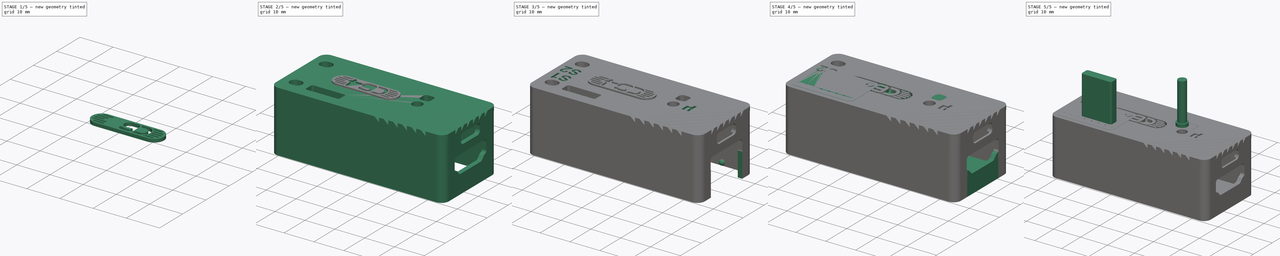
[diagram: build sequence overview — one tinted view per stage of 5, left to right]
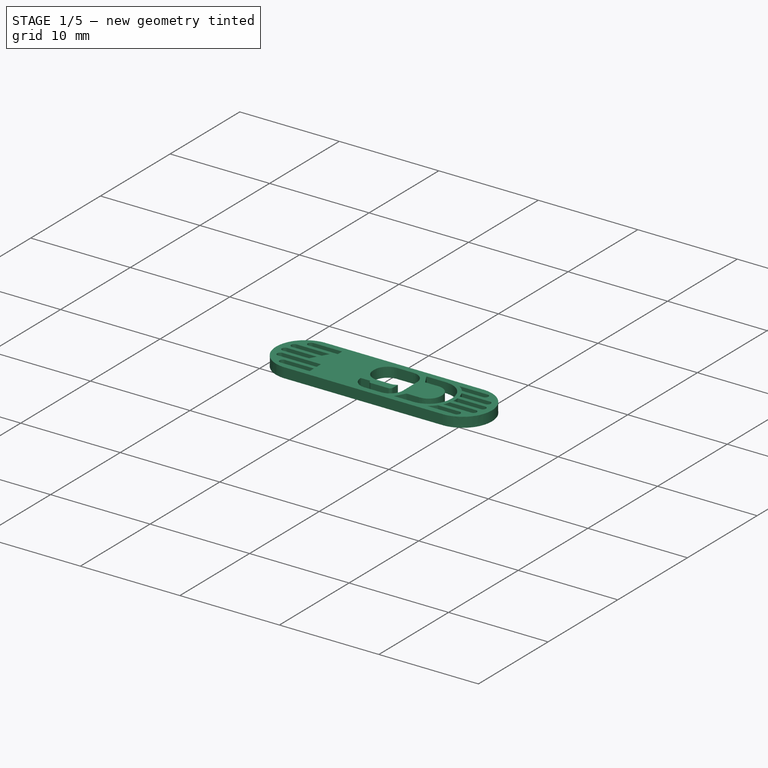
[diagram: stage 1 of 5 — iso view after this stage's code; geometry added in this stage tinted green]
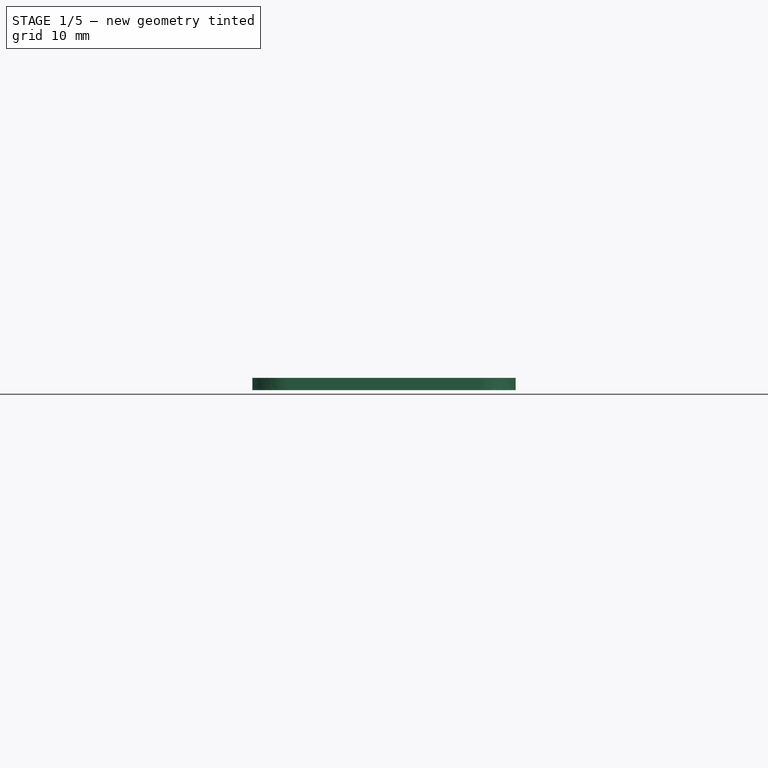
[diagram: stage 1 of 5 — front view after this stage's code; geometry added in this stage tinted green]
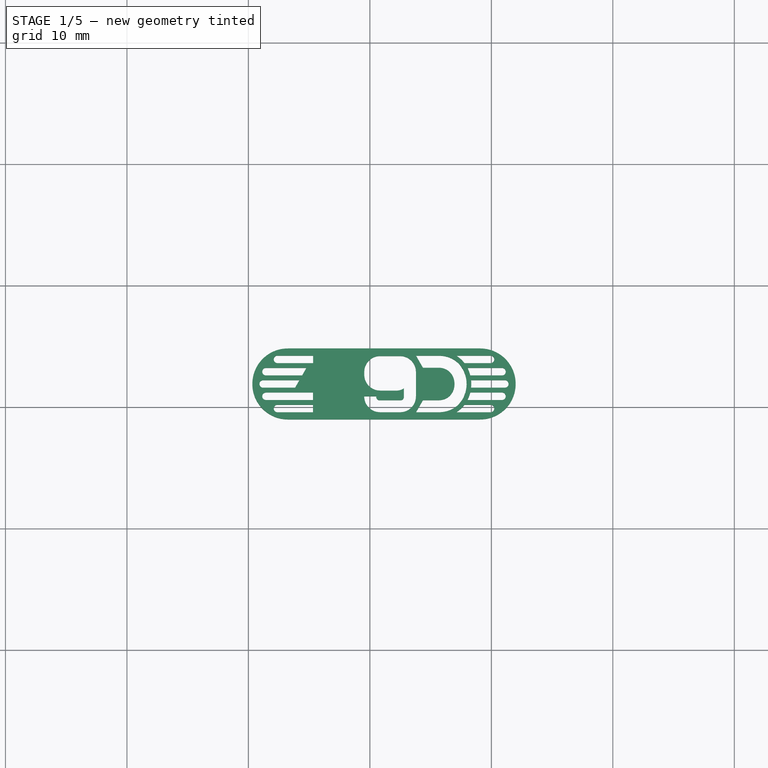
[diagram: stage 1 of 5 — top view after this stage's code; geometry added in this stage tinted green]
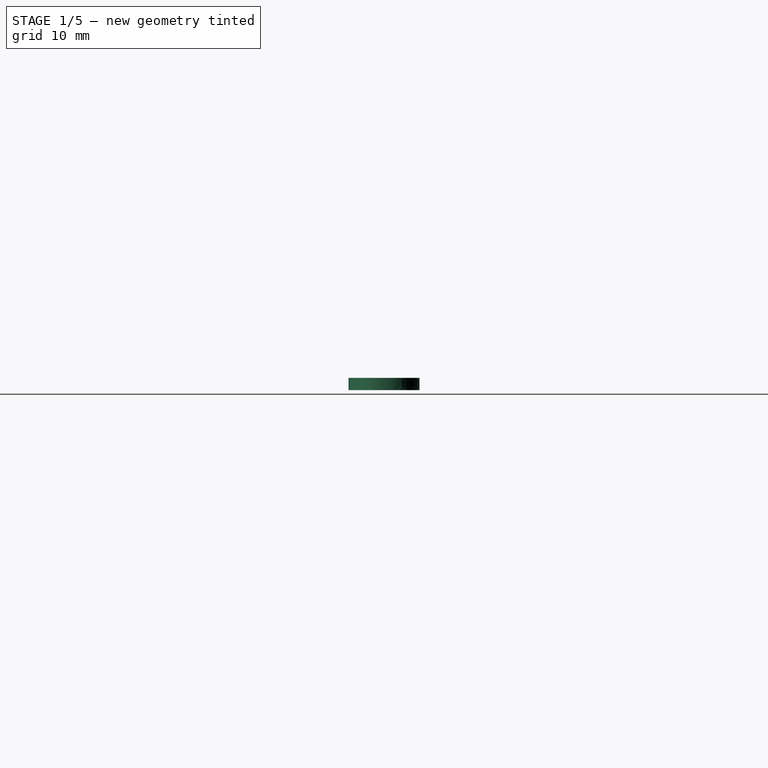
[diagram: stage 1 of 5 — right view after this stage's code; geometry added in this stage tinted green]
FCSTD DOCUMENT  (FreeCAD 0.20RUnknown)
Label: MiSTery case USB-C Breakout (C64 logo embossed)
License: All rights reserved
LicenseURL: http://en.wikipedia.org/wiki/All_rights_reserved
objects: Part::Feature×184, App::Part×184, Sketcher::SketchObject×39, PartDesign::Pocket×21, PartDesign::Pad×19, Part::Part2DObjectPython×13, PartDesign::Body×10, Part::Sphere×8, Part::Cut×7, Part::MultiFuse×5, Part::FeaturePython×4, Part::Plane×2, PartDesign::SubtractivePipe×1, PartDesign::LinearPattern×1, App::DocumentObjectGroup×1
note: 355 computed .brp shape members not serialized (recipe doc carries the construction recipe); baked Part::Feature solids carry a one-line shape summary decoded from their .brp

FEATURE [App::DocumentObjectGroup] GrExplode_Slice  label="Exploded Slice"
  Group = -> [Fusion004]
FEATURE [Sketcher::SketchObject] Sketch027  label="Logo pad"
  AttachmentOffset = pos=(32,9,1) rot=(0,0,1;3.14159rad)
  FullyConstrained = false
  MapMode = 2
  Placement = pos=(32,9,1) rot=(0,0,1;3.14159rad)
  Support = -> [XY_Plane198]
  sketch-geometry (10):
    g0: BSplineCurve PolesCount=2 KnotsCount=2 Degree=1 IsPeriodic=0
    g1: BSplineCurve PolesCount=2 KnotsCount=2 Degree=1 IsPeriodic=0
    g2: BSplineCurve PolesCount=2 KnotsCount=2 Degree=1 IsPeriodic=0
    g3: BSplineCurve PolesCount=4 KnotsCount=2 Degree=3 IsPeriodic=0
    g4: BSplineCurve PolesCount=4 KnotsCount=2 Degree=3 IsPeriodic=0
    g5: BSplineCurve PolesCount=2 KnotsCount=2 Degree=1 IsPeriodic=0
    g6: BSplineCurve PolesCount=2 KnotsCount=2 Degree=1 IsPeriodic=0
    g7: BSplineCurve PolesCount=2 KnotsCount=2 Degree=1 IsPeriodic=0
    g8: BSplineCurve PolesCount=4 KnotsCount=2 Degree=3 IsPeriodic=0
    g9: BSplineCurve PolesCount=4 KnotsCount=2 Degree=3 IsPeriodic=0
  constraints (10):
    c: Coincident(g0,g1)
    c: Coincident(g1,g2)
    c: Coincident(g2,g3)
    c: Coincident(g3,g4)
    c: Coincident(g4,g5)
    c: Coincident(g5,g6)
    c: Coincident(g6,g7)
    c: Coincident(g7,g8)
    c: Coincident(g8,g9)
    c: Coincident(g9,g0)
FEATURE [PartDesign::Pad] Pad027
  Direction = (0,0,1)
  Length = 1
  Length2 = 10
  Profile = -> Sketch027
  ReferenceAxis = -> Sketch027 [N_Axis]
  Type = 0
FEATURE [Sketcher::SketchObject] Sketch028  label="Logo line 1_1"
  AttachmentOffset = pos=(32,9,2) rot=(0,0,1;3.14159rad)
  FullyConstrained = false
  MapMode = 5
  Placement = pos=(32,9,4) rot=(0,0,1;3.14159rad)
  Support = -> [Pad027]
  sketch-geometry (6):
    g0: BSplineCurve PolesCount=4 KnotsCount=2 Degree=3 IsPeriodic=0
    g1: BSplineCurve PolesCount=2 KnotsCount=2 Degree=1 IsPeriodic=0
    g2: BSplineCurve PolesCount=4 KnotsCount=2 Degree=3 IsPeriodic=0
    g3: BSplineCurve PolesCount=4 KnotsCount=2 Degree=3 IsPeriodic=0
    g4: BSplineCurve PolesCount=2 KnotsCount=2 Degree=1 IsPeriodic=0
    g5: BSplineCurve PolesCount=4 KnotsCount=2 Degree=3 IsPeriodic=0
  constraints (6):
    c: Coincident(g0,g1)
    c: Coincident(g1,g2)
    c: Coincident(g2,g3)
    c: Coincident(g3,g4)
    c: Coincident(g4,g5)
    c: Coincident(g5,g0)
FEATURE [PartDesign::Pocket] Pocket008
  BaseFeature = -> Pad027
  Direction = (0,0,-1)
  Length = 3
  Length2 = 5
  Profile = -> Sketch028
  ReferenceAxis = -> Sketch028 [N_Axis]
  Type = 0
FEATURE [Sketcher::SketchObject] Sketch029  label="Logo line 1_2"
  AttachmentOffset = pos=(32,9,2) rot=(0,0,1;3.14159rad)
  FullyConstrained = false
  MapMode = 5
  Placement = pos=(32,9,4) rot=(0,0,1;3.14159rad)
  Support = -> [Pocket008]
  sketch-geometry (5):
    g0: BSplineCurve PolesCount=2 KnotsCount=2 Degree=1 IsPeriodic=0
    g1: BSplineCurve PolesCount=4 KnotsCount=2 Degree=3 IsPeriodic=0
    g2: BSplineCurve PolesCount=4 KnotsCount=2 Degree=3 IsPeriodic=0
    g3: BSplineCurve PolesCount=2 KnotsCount=2 Degree=1 IsPeriodic=0
    g4: BSplineCurve PolesCount=4 KnotsCount=2 Degree=3 IsPeriodic=0
  constraints (5):
    c: Coincident(g0,g1)
    c: Coincident(g1,g2)
    c: Coincident(g2,g3)
    c: Coincident(g3,g4)
    c: Coincident(g4,g0)
FEATURE [PartDesign::Pocket] Pocket009
  BaseFeature = -> Pocket008
  Direction = (0,0,-1)
  Length = 5
  Length2 = 5
  Profile = -> Sketch029
  ReferenceAxis = -> Sketch029 [N_Axis]
  Type = 0
FEATURE [Sketcher::SketchObject] Sketch030  label="Logo line 1_3"
  AttachmentOffset = pos=(32,9,2) rot=(0,0,1;3.14159rad)
  FullyConstrained = false
  MapMode = 5
  Placement = pos=(32,9,4) rot=(0,0,1;3.14159rad)
  Support = -> [Pocket009]
  sketch-geometry (6):
    g0: BSplineCurve PolesCount=4 KnotsCount=2 Degree=3 IsPeriodic=0
    g1: BSplineCurve PolesCount=2 KnotsCount=2 Degree=1 IsPeriodic=0
    g2: BSplineCurve PolesCount=4 KnotsCount=2 Degree=3 IsPeriodic=0
    g3: BSplineCurve PolesCount=4 KnotsCount=2 Degree=3 IsPeriodic=0
    g4: BSplineCurve PolesCount=2 KnotsCount=2 Degree=1 IsPeriodic=0
    g5: BSplineCurve PolesCount=4 KnotsCount=2 Degree=3 IsPeriodic=0
  constraints (6):
    c: Coincident(g0,g1)
    c: Coincident(g1,g2)
    c: Coincident(g2,g3)
    c: Coincident(g3,g4)
    c: Coincident(g4,g5)
    c: Coincident(g5,g0)
FEATURE [PartDesign::Pocket] Pocket010
  BaseFeature = -> Pocket009
  Direction = (0,0,-1)
  Length = 5
  Length2 = 5
  Profile = -> Sketch030
  ReferenceAxis = -> Sketch030 [N_Axis]
  Type = 0
FEATURE [Sketcher::SketchObject] Sketch031  label="Logo line 1_4"
  AttachmentOffset = pos=(32,9,2) rot=(0,0,1;3.14159rad)
  FullyConstrained = false
  MapMode = 5
  Placement = pos=(32,9,4) rot=(0,0,1;3.14159rad)
  Support = -> [Pocket010]
  sketch-geometry (5):
    g0: BSplineCurve PolesCount=2 KnotsCount=2 Degree=1 IsPeriodic=0
    g1: BSplineCurve PolesCount=4 KnotsCount=2 Degree=3 IsPeriodic=0
    g2: BSplineCurve PolesCount=4 KnotsCount=2 Degree=3 IsPeriodic=0
    g3: BSplineCurve PolesCount=2 KnotsCount=2 Degree=1 IsPeriodic=0
    g4: BSplineCurve PolesCount=4 KnotsCount=2 Degree=3 IsPeriodic=0
  constraints (5):
    c: Coincident(g0,g1)
    c: Coincident(g1,g2)
    c: Coincident(g2,g3)
    c: Coincident(g3,g4)
    c: Coincident(g4,g0)
FEATURE [PartDesign::Pocket] Pocket011
  BaseFeature = -> Pocket010
  Direction = (0,0,-1)
  Length = 5
  Length2 = 5
  Profile = -> Sketch031
  ReferenceAxis = -> Sketch031 [N_Axis]
  Type = 0
FEATURE [Sketcher::SketchObject] Sketch032  label="Logo line 1_5"
  AttachmentOffset = pos=(32,9,2) rot=(0,0,1;3.14159rad)
  FullyConstrained = false
  MapMode = 5
  Placement = pos=(32,9,4) rot=(0,0,1;3.14159rad)
  Support = -> [Pocket011]
  sketch-geometry (6):
    g0: BSplineCurve PolesCount=4 KnotsCount=2 Degree=3 IsPeriodic=0
    g1: BSplineCurve PolesCount=2 KnotsCount=2 Degree=1 IsPeriodic=0
    g2: BSplineCurve PolesCount=4 KnotsCount=2 Degree=3 IsPeriodic=0
    g3: BSplineCurve PolesCount=4 KnotsCount=2 Degree=3 IsPeriodic=0
    g4: BSplineCurve PolesCount=2 KnotsCount=2 Degree=1 IsPeriodic=0
    g5: BSplineCurve PolesCount=4 KnotsCount=2 Degree=3 IsPeriodic=0
  constraints (6):
    c: Coincident(g0,g1)
    c: Coincident(g1,g2)
    c: Coincident(g2,g3)
    c: Coincident(g3,g4)
    c: Coincident(g4,g5)
    c: Coincident(g5,g0)
FEATURE [PartDesign::Pocket] Pocket012
  BaseFeature = -> Pocket011
  Direction = (0,0,-1)
  Length = 5
  Length2 = 5
  Profile = -> Sketch032
  ReferenceAxis = -> Sketch032 [N_Axis]
  Type = 0
FEATURE [Sketcher::SketchObject] Sketch033  label="Logo line 2_1"
  AttachmentOffset = pos=(32,9,2) rot=(0,0,1;3.14159rad)
  FullyConstrained = false
  MapMode = 5
  Placement = pos=(32,9,4) rot=(0,0,1;3.14159rad)
  Support = -> [Pocket012]
  sketch-geometry (5):
    g0: BSplineCurve PolesCount=2 KnotsCount=2 Degree=1 IsPeriodic=0
    g1: BSplineCurve PolesCount=2 KnotsCount=2 Degree=1 IsPeriodic=0
    g2: BSplineCurve PolesCount=2 KnotsCount=2 Degree=1 IsPeriodic=0
    g3: BSplineCurve PolesCount=4 KnotsCount=2 Degree=3 IsPeriodic=0
    g4: BSplineCurve PolesCount=4 KnotsCount=2 Degree=3 IsPeriodic=0
  constraints (5):
    c: Coincident(g0,g1)
    c: Coincident(g1,g2)
    c: Coincident(g2,g3)
    c: Coincident(g3,g4)
    c: Coincident(g4,g0)
FEATURE [PartDesign::Pocket] Pocket013
  BaseFeature = -> Pocket012
  Direction = (0,0,-1)
  Length = 5
  Length2 = 5
  Profile = -> Sketch033
  ReferenceAxis = -> Sketch033 [N_Axis]
  Type = 0
FEATURE [Sketcher::SketchObject] Sketch034  label="Logo line 2_2"
  AttachmentOffset = pos=(32,9,2) rot=(0,0,1;3.14159rad)
  FullyConstrained = false
  MapMode = 5
  Placement = pos=(32,9,4) rot=(0,0,1;3.14159rad)
  Support = -> [Pocket013]
  sketch-geometry (5):
    g0: BSplineCurve PolesCount=2 KnotsCount=2 Degree=1 IsPeriodic=0
    g1: BSplineCurve PolesCount=2 KnotsCount=2 Degree=1 IsPeriodic=0
    g2: BSplineCurve PolesCount=2 KnotsCount=2 Degree=1 IsPeriodic=0
    g3: BSplineCurve PolesCount=4 KnotsCount=2 Degree=3 IsPeriodic=0
    g4: BSplineCurve PolesCount=4 KnotsCount=2 Degree=3 IsPeriodic=0
  constraints (5):
    c: Coincident(g0,g1)
    c: Coincident(g1,g2)
    c: Coincident(g2,g3)
    c: Coincident(g3,g4)
    c: Coincident(g4,g0)
FEATURE [PartDesign::Pocket] Pocket014
  BaseFeature = -> Pocket013
  Direction = (0,0,-1)
  Length = 5
  Length2 = 5
  Profile = -> Sketch034
  ReferenceAxis = -> Sketch034 [N_Axis]
  Type = 0
FEATURE [Sketcher::SketchObject] Sketch035  label="Logo line 2_3"
  AttachmentOffset = pos=(32,9,2) rot=(0,0,1;3.14159rad)
  FullyConstrained = false
  MapMode = 5
  Placement = pos=(32,9,4) rot=(0,0,1;3.14159rad)
  Support = -> [Pocket014]
  sketch-geometry (5):
    g0: BSplineCurve PolesCount=2 KnotsCount=2 Degree=1 IsPeriodic=0
    g1: BSplineCurve PolesCount=2 KnotsCount=2 Degree=1 IsPeriodic=0
    g2: BSplineCurve PolesCount=2 KnotsCount=2 Degree=1 IsPeriodic=0
    g3: BSplineCurve PolesCount=4 KnotsCount=2 Degree=3 IsPeriodic=0
    g4: BSplineCurve PolesCount=4 KnotsCount=2 Degree=3 IsPeriodic=0
  constraints (5):
    c: Coincident(g0,g1)
    c: Coincident(g1,g2)
    c: Coincident(g2,g3)
    c: Coincident(g3,g4)
    c: Coincident(g4,g0)
FEATURE [PartDesign::Pocket] Pocket015
  BaseFeature = -> Pocket014
  Direction = (0,0,-1)
  Length = 5
  Length2 = 5
  Profile = -> Sketch035
  ReferenceAxis = -> Sketch035 [N_Axis]
  Type = 0
FEATURE [Sketcher::SketchObject] Sketch036  label="Logo line 2_4"
  AttachmentOffset = pos=(32,9,2) rot=(0,0,1;3.14159rad)
  FullyConstrained = false
  MapMode = 5
  Placement = pos=(32,9,4) rot=(0,0,1;3.14159rad)
  Support = -> [Pocket015]
  sketch-geometry (5):
    g0: BSplineCurve PolesCount=2 KnotsCount=2 Degree=1 IsPeriodic=0
    g1: BSplineCurve PolesCount=2 KnotsCount=2 Degree=1 IsPeriodic=0
    g2: BSplineCurve PolesCount=2 KnotsCount=2 Degree=1 IsPeriodic=0
    g3: BSplineCurve PolesCount=4 KnotsCount=2 Degree=3 IsPeriodic=0
    g4: BSplineCurve PolesCount=4 KnotsCount=2 Degree=3 IsPeriodic=0
  constraints (5):
    c: Coincident(g0,g1)
    c: Coincident(g1,g2)
    c: Coincident(g2,g3)
    c: Coincident(g3,g4)
    c: Coincident(g4,g0)
FEATURE [PartDesign::Pocket] Pocket016
  BaseFeature = -> Pocket015
  Direction = (0,0,-1)
  Length = 5
  Length2 = 5
  Profile = -> Sketch036
  ReferenceAxis = -> Sketch036 [N_Axis]
  Type = 0
FEATURE [Sketcher::SketchObject] Sketch037  label="Logo line 2_5"
  AttachmentOffset = pos=(32,9,2) rot=(0,0,1;3.14159rad)
  FullyConstrained = false
  MapMode = 5
  Placement = pos=(32,9,4) rot=(0,0,1;3.14159rad)
  Support = -> [Pocket016]
  sketch-geometry (5):
    g0: BSplineCurve PolesCount=2 KnotsCount=2 Degree=1 IsPeriodic=0
    g1: BSplineCurve PolesCount=2 KnotsCount=2 Degree=1 IsPeriodic=0
    g2: BSplineCurve PolesCount=2 KnotsCount=2 Degree=1 IsPeriodic=0
    g3: BSplineCurve PolesCount=4 KnotsCount=2 Degree=3 IsPeriodic=0
    g4: BSplineCurve PolesCount=4 KnotsCount=2 Degree=3 IsPeriodic=0
  constraints (5):
    c: Coincident(g0,g1)
    c: Coincident(g1,g2)
    c: Coincident(g2,g3)
    c: Coincident(g3,g4)
    c: Coincident(g4,g0)
FEATURE [PartDesign::Pocket] Pocket017
  BaseFeature = -> Pocket016
  Direction = (0,0,-1)
  Length = 5
  Length2 = 5
  Profile = -> Sketch037
  ReferenceAxis = -> Sketch037 [N_Axis]
  Type = 0
FEATURE [Sketcher::SketchObject] Sketch038  label="Logo (C)"
  AttachmentOffset = pos=(32,9,2) rot=(0,0,1;3.14159rad)
  FullyConstrained = false
  MapMode = 5
  Placement = pos=(32,9,4) rot=(0,0,1;3.14159rad)
  Support = -> [Pocket017]
  sketch-geometry (9):
    g0: BSplineCurve PolesCount=4 KnotsCount=2 Degree=3 IsPeriodic=0
    g1: BSplineCurve PolesCount=2 KnotsCount=2 Degree=1 IsPeriodic=0
    g2: BSplineCurve PolesCount=2 KnotsCount=2 Degree=1 IsPeriodic=0
    g3: BSplineCurve PolesCount=2 KnotsCount=2 Degree=1 IsPeriodic=0
    g4: BSplineCurve PolesCount=4 KnotsCount=2 Degree=3 IsPeriodic=0
    g5: BSplineCurve PolesCount=2 KnotsCount=2 Degree=1 IsPeriodic=0
    g6: BSplineCurve PolesCount=2 KnotsCount=2 Degree=1 IsPeriodic=0
    g7: BSplineCurve PolesCount=2 KnotsCount=2 Degree=1 IsPeriodic=0
    g8: BSplineCurve PolesCount=2 KnotsCount=2 Degree=1 IsPeriodic=0
  constraints (9):
    c: Coincident(g0,g1)
    c: Coincident(g1,g2)
    c: Coincident(g2,g3)
    c: Coincident(g3,g4)
    c: Coincident(g4,g5)
    c: Coincident(g5,g6)
    c: Coincident(g6,g7)
    c: Coincident(g7,g8)
    c: Coincident(g8,g0)
FEATURE [PartDesign::Pocket] Pocket018
  BaseFeature = -> Pocket017
  Direction = (0,0,-1)
  Length = 5
  Length2 = 5
  Profile = -> Sketch038
  ReferenceAxis = -> Sketch038 [N_Axis]
  Type = 0
FEATURE [Sketcher::SketchObject] Sketch039  label="Logo (6 outer)"
  AttachmentOffset = pos=(32,9,2) rot=(0,0,1;3.14159rad)
  FullyConstrained = false
  MapMode = 5
  Placement = pos=(32,9,4) rot=(0,0,1;3.14159rad)
  Support = -> [Pocket018]
  sketch-geometry (17):
    g0: BSplineCurve PolesCount=2 KnotsCount=2 Degree=1 IsPeriodic=0
    g1: BSplineCurve PolesCount=4 KnotsCount=2 Degree=3 IsPeriodic=0
    g2: BSplineCurve PolesCount=2 KnotsCount=2 Degree=1 IsPeriodic=0
    g3: BSplineCurve PolesCount=4 KnotsCount=2 Degree=3 IsPeriodic=0
    g4: BSplineCurve PolesCount=2 KnotsCount=2 Degree=1 IsPeriodic=0
    g5: BSplineCurve PolesCount=4 KnotsCount=2 Degree=3 IsPeriodic=0
    g6: BSplineCurve PolesCount=2 KnotsCount=2 Degree=1 IsPeriodic=0
    g7: BSplineCurve PolesCount=2 KnotsCount=2 Degree=1 IsPeriodic=0
    g8: BSplineCurve PolesCount=4 KnotsCount=2 Degree=3 IsPeriodic=0
    g9: BSplineCurve PolesCount=2 KnotsCount=2 Degree=1 IsPeriodic=0
    g10: BSplineCurve PolesCount=4 KnotsCount=2 Degree=3 IsPeriodic=0
    g11: BSplineCurve PolesCount=2 KnotsCount=2 Degree=1 IsPeriodic=0
    g12: BSplineCurve PolesCount=4 KnotsCount=2 Degree=3 IsPeriodic=0
    g13: BSplineCurve PolesCount=2 KnotsCount=2 Degree=1 IsPeriodic=0
    g14: BSplineCurve PolesCount=4 KnotsCount=2 Degree=3 IsPeriodic=0
    g15: BSplineCurve PolesCount=2 KnotsCount=2 Degree=1 IsPeriodic=0
    g16: BSplineCurve PolesCount=4 KnotsCount=2 Degree=3 IsPeriodic=0
  constraints (17):
    c: Coincident(g0,g1)
    c: Coincident(g1,g2)
    c: Coincident(g2,g3)
    c: Coincident(g3,g4)
    c: Coincident(g4,g5)
    c: Coincident(g5,g6)
    c: Coincident(g6,g7)
    c: Coincident(g7,g8)
    c: Coincident(g8,g9)
    c: Coincident(g9,g10)
    c: Coincident(g10,g11)
    c: Coincident(g11,g12)
    c: Coincident(g12,g13)
    c: Coincident(g13,g14)
    c: Coincident(g14,g15)
    c: Coincident(g15,g16)
    c: Coincident(g16,g0)
FEATURE [PartDesign::Pocket] Pocket019
  BaseFeature = -> Pocket018
  Direction = (0,0,-1)
  Length = 5
  Length2 = 5
  Profile = -> Sketch039
  ReferenceAxis = -> Sketch039 [N_Axis]
  Type = 0
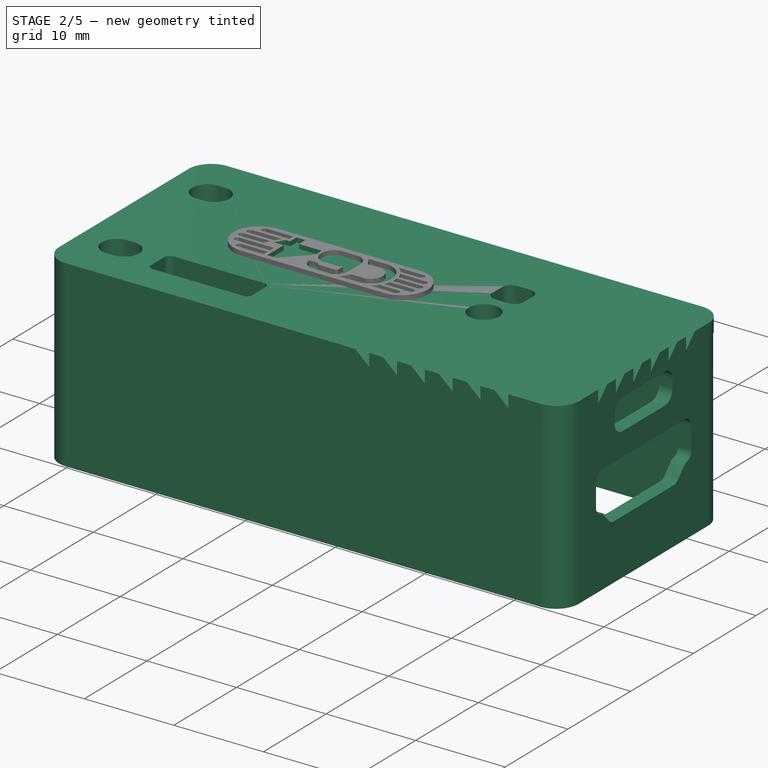
[diagram: stage 2 of 5 — iso view after this stage's code; geometry added in this stage tinted green]
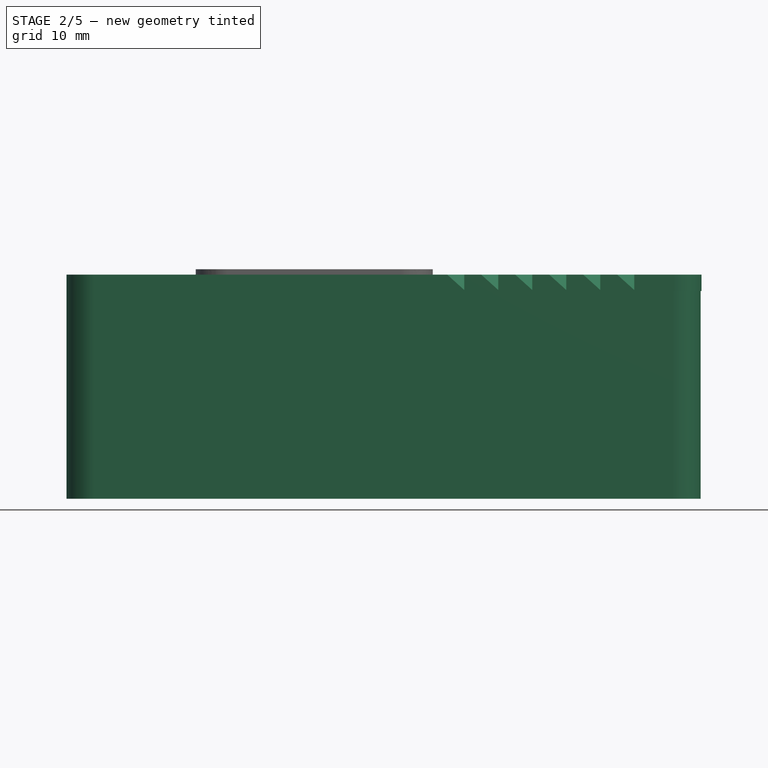
[diagram: stage 2 of 5 — front view after this stage's code; geometry added in this stage tinted green]
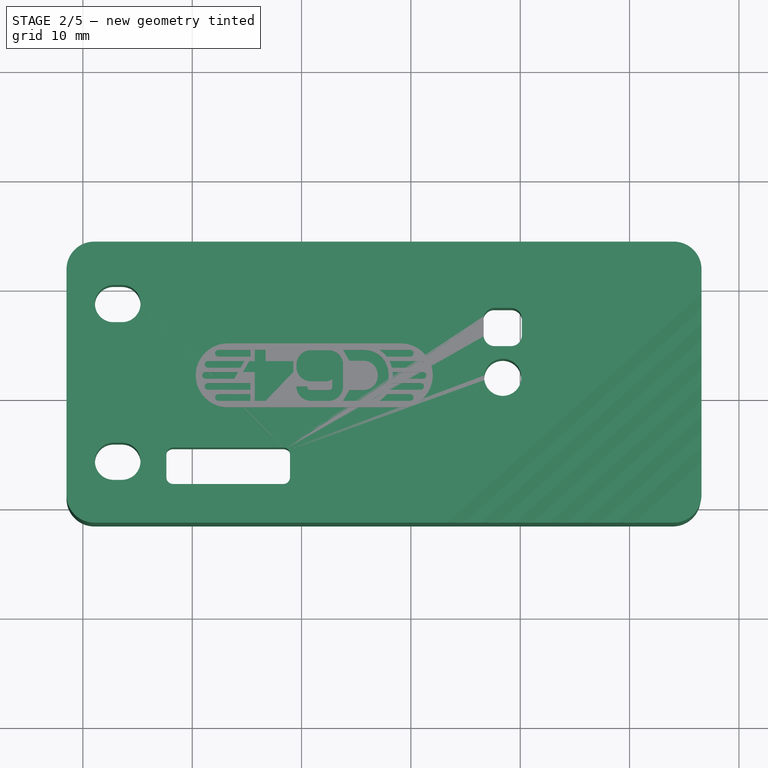
[diagram: stage 2 of 5 — top view after this stage's code; geometry added in this stage tinted green]
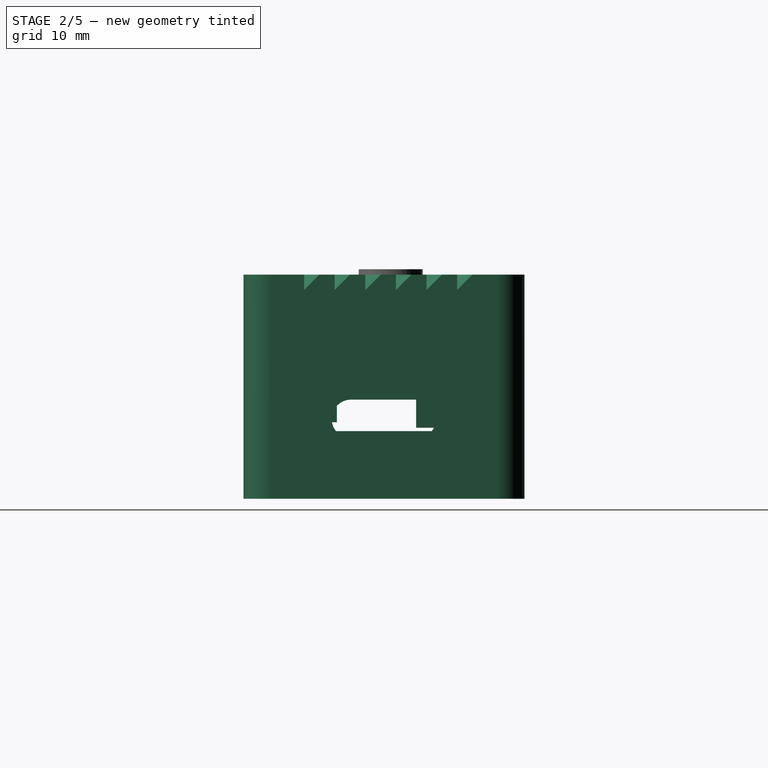
[diagram: stage 2 of 5 — right view after this stage's code; geometry added in this stage tinted green]
FEATURE [App::Part] Part004  label="DB9"
  Group = -> [Part__Feature177]
  Origin = -> Origin188
  Placement = pos=(0,-2.65,-16.4) rot=(0,0,1;0rad)
FEATURE [PartDesign::Pad] Pad  label="Верхняя глухая крышка"
  Direction = (0,0,1)
  Length = 1.5
  Length2 = 10
  Profile = -> Sketch004
  ReferenceAxis = -> Sketch004 [N_Axis]
  Type = 0
FEATURE [Sketcher::SketchObject] Sketch008  label="Скетч Отверстия в верхней крышке под кнопки и световоды"
  FullyConstrained = true
  MapMode = 5
  Placement = pos=(0,0,1.5) rot=(0,0,1;0rad)
  Support = -> [Pad]
  sketch-geometry (29):
    g0: ArcOfCircle CenterX=2.8 CenterY=18.49 CenterZ=0 NormalX=0 NormalY=0 NormalZ=1 AngleXU=0 Radius=1.7 StartAngle=1.5708 EndAngle=4.71239
    g1: ArcOfCircle CenterX=3.57 CenterY=18.49 CenterZ=0 NormalX=0 NormalY=0 NormalZ=1 AngleXU=0 Radius=1.7 StartAngle=4.71239 EndAngle=7.85398
    g2: LineSegment StartX=2.8 StartY=16.79 StartZ=0 EndX=3.57 EndY=16.79 EndZ=0
    g3: LineSegment StartX=3.57 StartY=20.19 StartZ=0 EndX=2.8 EndY=20.19 EndZ=0
    g4: ArcOfCircle CenterX=2.8 CenterY=4.07 CenterZ=0 NormalX=0 NormalY=0 NormalZ=1 AngleXU=0 Radius=1.7 StartAngle=1.5708 EndAngle=4.71239
    g5: ArcOfCircle CenterX=3.57 CenterY=4.07 CenterZ=0 NormalX=0 NormalY=0 NormalZ=1 AngleXU=0 Radius=1.7 StartAngle=4.71239 EndAngle=7.85398
    g6: LineSegment StartX=2.8 StartY=2.37 StartZ=0 EndX=3.57 EndY=2.37 EndZ=0
    g7: LineSegment StartX=3.57 StartY=5.77 StartZ=0 EndX=2.8 EndY=5.77 EndZ=0
    g8: Circle CenterX=38.4 CenterY=11.75 CenterZ=0 NormalX=0 NormalY=0 NormalZ=1 AngleXU=0 Radius=1.7
    g9: ArcOfCircle CenterX=8.25 CenterY=4.72 CenterZ=0 NormalX=0 NormalY=0 NormalZ=1 AngleXU=0 Radius=0.61 StartAngle=1.5708 EndAngle=3.14159
    g10: LineSegment StartX=8.25 StartY=5.33 StartZ=0 EndX=18.33 EndY=5.33 EndZ=0
    g11: ArcOfCircle CenterX=18.33 CenterY=4.72 CenterZ=0 NormalX=0 NormalY=0 NormalZ=1 AngleXU=0 Radius=0.61 StartAngle=0 EndAngle=1.5708
    g12: LineSegment StartX=18.94 StartY=4.72 StartZ=0 EndX=18.94 EndY=2.6 EndZ=0
    g13: ArcOfCircle CenterX=18.33 CenterY=2.6 CenterZ=0 NormalX=0 NormalY=0 NormalZ=1 AngleXU=0 Radius=0.61 StartAngle=4.71239 EndAngle=6.28319
    g14: LineSegment StartX=18.33 StartY=1.99 StartZ=0 EndX=8.25 EndY=1.99 EndZ=0
    g15: ArcOfCircle CenterX=8.25 CenterY=2.6 CenterZ=0 NormalX=0 NormalY=0 NormalZ=1 AngleXU=0 Radius=0.61 StartAngle=3.14159 EndAngle=4.71239
    g16: LineSegment StartX=7.64 StartY=2.6 StartZ=0 EndX=7.64 EndY=4.72 EndZ=0
    g17: GeomPoint X=7.64 Y=5.33 Z=0
    g18: GeomPoint X=18.94 Y=1.99 Z=0
    g19: ArcOfCircle CenterX=37.65 CenterY=17.1 CenterZ=0 NormalX=0 NormalY=0 NormalZ=1 AngleXU=0 Radius=1 StartAngle=1.5708 EndAngle=3.14159
    g20: LineSegment StartX=37.65 StartY=18.1 StartZ=0 EndX=39.15 EndY=18.1 EndZ=0
    g21: ArcOfCircle CenterX=39.15 CenterY=17.1 CenterZ=0 NormalX=0 NormalY=0 NormalZ=1 AngleXU=0 Radius=1 StartAngle=-1.8e-15 EndAngle=1.5708
    g22: LineSegment StartX=40.15 StartY=17.1 StartZ=0 EndX=40.15 EndY=15.6 EndZ=0
    g23: ArcOfCircle CenterX=39.15 CenterY=15.6 CenterZ=0 NormalX=0 NormalY=0 NormalZ=1 AngleXU=0 Radius=1 StartAngle=4.71239 EndAngle=6.28319
    g24: LineSegment StartX=39.15 StartY=14.6 StartZ=0 EndX=37.65 EndY=14.6 EndZ=0
    g25: ArcOfCircle CenterX=37.65 CenterY=15.6 CenterZ=0 NormalX=0 NormalY=0 NormalZ=1 AngleXU=0 Radius=1 StartAngle=3.14159 EndAngle=4.71239
    g26: LineSegment StartX=36.65 StartY=15.6 StartZ=0 EndX=36.65 EndY=17.1 EndZ=0
    g27: GeomPoint X=36.65 Y=18.1 Z=0
    g28: GeomPoint X=40.15 Y=14.6 Z=0
  constraints (71):
    c: Tangent(g0,g2) = -1.5708
    c: Tangent(g2,g1) = -1.5708
    c: Tangent(g1,g3) = -1.5708
    c: Tangent(g3,g0) = -1.5708
    c: Equal(g0,g1)
    c: Horizontal(g2)
    c: DistanceX(g0,g1) = 0.77
    c: DistanceX(g-1,g0) = 2.8
    c: DistanceY(g-1,g0) = 18.49
    c: Radius(g1) = 1.7
    c: Tangent(g4,g6) = -1.5708
    c: Tangent(g6,g5) = -1.5708
    c: Tangent(g5,g7) = -1.5708
    c: Tangent(g7,g4) = -1.5708
    c: Equal(g4,g5)
    c: Horizontal(g6)
    c: DistanceX(g4,g5) = 0.77
    c: Radius(g5) = 1.7
    c: DistanceX(g-1,g4) = 2.8
    c: DistanceY(g-1,g4) = 4.07
    c: Radius(g8) = 1.7
    c: DistanceX(g-1,g8) = 38.4
    c: DistanceY(g-1,g8) = 11.75
    c: Tangent(g9,g10) = 1.5708
    c: Tangent(g10,g11) = 1.5708
    c: Tangent(g11,g12) = 1.5708
    c: Tangent(g12,g13) = 1.5708
    c: Tangent(g13,g14) = 1.5708
    c: Tangent(g14,g15) = 1.5708
    c: Tangent(g15,g16) = 1.5708
    c: Tangent(g16,g9) = 1.5708
    c: Horizontal(g10)
    c: Horizontal(g14)
    c: Vertical(g12)
    c: Vertical(g16)
    c: Equal(g9,g11)
    c: Equal(g11,g13)
    c: Equal(g13,g15)
    c: PointOnObject(g17,g10)
    c: PointOnObject(g17,g16)
    c: PointOnObject(g18,g12)
    c: PointOnObject(g18,g14)
    c: DistanceY(g14,g9) = 3.34
    c: DistanceX(g15,g12) = 11.3
    c: Radius(g11) = 0.61
    c: DistanceX(g-1,g15) = 8.25
    c: DistanceY(g-1,g15) = 2.6
    c: Tangent(g19,g20) = 1.5708
    c: Tangent(g20,g21) = 1.5708
    c: Tangent(g21,g22) = 1.5708
    c: Tangent(g22,g23) = 1.5708
    c: Tangent(g23,g24) = 1.5708
    c: Tangent(g24,g25) = 1.5708
    c: Tangent(g25,g26) = 1.5708
    c: Tangent(g26,g19) = 1.5708
    c: Horizontal(g20)
    c: Horizontal(g24)
    c: Vertical(g22)
    c: Vertical(g26)
    c: Equal(g19,g21)
    c: Equal(g21,g23)
    c: Equal(g23,g25)
    c: PointOnObject(g27,g20)
    c: PointOnObject(g27,g26)
    c: PointOnObject(g28,g22)
    c: PointOnObject(g28,g24)
    c: Equal(g26,g20)
    c: Radius(g21) = 1
    c: DistanceY(g25,g19) = 1.5
    c: DistanceX(g-1,g25) = 37.65
    c: DistanceY(g-1,g25) = 15.6
FEATURE [PartDesign::Pocket] Pocket  label="Верхняя крышка с отверстиями под кнопки и световоды"
  BaseFeature = -> Pad
  Direction = (0,0,-1)
  Length = 1.5
  Length2 = 5
  Profile = -> Sketch008
  ReferenceAxis = -> Sketch008 [N_Axis]
  Type = 0
FEATURE [PartDesign::SubtractivePipe] SubtractivePipe  label="Наклонная прорезь"
  AuxilleryCurvelinear = true
  AuxillerySpineTangent = false
  BaseFeature = -> Pocket
  Binormal = (0,0,0)
  Mode = 0
  Profile = -> Sketch006
  Spine = -> Sketch007
  SpineTangent = false
  Transformation = 0
  Transition = 0
FEATURE [PartDesign::LinearPattern] LinearPattern  label="Набор наклонных прорезей"
  BaseFeature = -> SubtractivePipe
  Direction = -> Sketch006 [H_Axis]
  Length = 14
  Occurrences = 6
  Originals = -> [SubtractivePipe]
FEATURE [Sketcher::SketchObject] Sketch  label="Скетч Стенки корпуса"
  FullyConstrained = true
  MapMode = 5
  Placement = pos=(0,0,1.5) rot=(0,0,1;0rad)
  Support = -> [LinearPattern]
  sketch-geometry (16):
    g0: LineSegment StartX=2.7 StartY=-0.04 StartZ=0 EndX=52.3 EndY=-0.04 EndZ=0
    g1: LineSegment StartX=55 StartY=2.66 StartZ=0 EndX=55 EndY=19.96 EndZ=0
    g2: LineSegment StartX=52.3 StartY=22.66 StartZ=0 EndX=2.7 EndY=22.66 EndZ=0
    g3: LineSegment StartX=0 StartY=19.96 StartZ=0 EndX=0 EndY=2.66 EndZ=0
    g4: ArcOfCircle CenterX=2.7 CenterY=19.96 CenterZ=0 NormalX=0 NormalY=0 NormalZ=1 AngleXU=0 Radius=2.7 StartAngle=1.5708 EndAngle=3.14159
    g5: ArcOfCircle CenterX=52.3 CenterY=19.96 CenterZ=0 NormalX=0 NormalY=0 NormalZ=1 AngleXU=0 Radius=2.7 StartAngle=-9e-16 EndAngle=1.5708
    g6: ArcOfCircle CenterX=52.3 CenterY=2.66 CenterZ=0 NormalX=0 NormalY=0 NormalZ=1 AngleXU=0 Radius=2.7 StartAngle=4.71239 EndAngle=6.28319
    g7: ArcOfCircle CenterX=2.7 CenterY=2.66 CenterZ=0 NormalX=0 NormalY=0 NormalZ=1 AngleXU=0 Radius=2.7 StartAngle=3.14159 EndAngle=4.71239
    g8: LineSegment StartX=1.04 StartY=24.16 StartZ=0 EndX=53.96 EndY=24.16 EndZ=0
    g9: LineSegment StartX=56.5 StartY=21.62 StartZ=0 EndX=56.5 EndY=1 EndZ=0
    g10: LineSegment StartX=53.96 StartY=-1.54 StartZ=0 EndX=1.04 EndY=-1.54 EndZ=0
    g11: LineSegment StartX=-1.5 StartY=1 StartZ=0 EndX=-1.5 EndY=21.62 EndZ=0
    g12: ArcOfCircle CenterX=53.96 CenterY=21.62 CenterZ=0 NormalX=0 NormalY=0 NormalZ=1 AngleXU=0 Radius=2.54 StartAngle=0 EndAngle=1.5708
    g13: ArcOfCircle CenterX=1.04 CenterY=21.62 CenterZ=0 NormalX=0 NormalY=0 NormalZ=1 AngleXU=0 Radius=2.54 StartAngle=1.5708 EndAngle=3.14159
    g14: ArcOfCircle CenterX=1.04 CenterY=1 CenterZ=0 NormalX=0 NormalY=0 NormalZ=1 AngleXU=0 Radius=2.54 StartAngle=3.14159 EndAngle=4.71239
    g15: ArcOfCircle CenterX=53.96 CenterY=1 CenterZ=0 NormalX=0 NormalY=0 NormalZ=1 AngleXU=0 Radius=2.54 StartAngle=4.71239 EndAngle=6.28319
  constraints (40):
    c: Horizontal(g0)
    c: Horizontal(g2)
    c: Vertical(g1)
    c: Vertical(g3)
    c: Tangent(g2,g4) = -1.5708
    c: Tangent(g3,g4) = -1.5708
    c: Tangent(g1,g5) = -1.5708
    c: Tangent(g2,g5) = -1.5708
    c: Tangent(g0,g6) = -1.5708
    c: Tangent(g1,g6) = -1.5708
    c: Tangent(g3,g7) = -1.5708
    c: Tangent(g0,g7) = -1.5708
    c: Equal(g3,g1)
    c: Equal(g4,g5)
    c: Equal(g4,g7)
    c: DistanceY(g0,g2) = 22.7
    c: DistanceX(g3,g1) = 55
    c: Horizontal(g8)
    c: Horizontal(g10)
    c: Vertical(g9)
    c: Vertical(g11)
    c: Tangent(g8,g12) = 1.5708
    c: Tangent(g9,g12) = 1.5708
    c: Tangent(g8,g13) = 1.5708
    c: Tangent(g11,g13) = 1.5708
    c: Tangent(g10,g14) = 1.5708
    c: Tangent(g11,g14) = 1.5708
    c: Tangent(g9,g15) = 1.5708
    c: Tangent(g10,g15) = 1.5708
    c: DistanceX(g-1,g7) = 2.7
    c: DistanceY(g-1,g7) = 2.66
    c: Radius(g7) = 2.7
    c: DistanceX(g11,g3) = 1.5
    c: DistanceX(g1,g9) = 1.5
    c: DistanceY(g10,g0) = 1.5
    c: DistanceY(g2,g8) = 1.5
    c: DistanceY(g-1,g14) = 1
    c: Vertical(g13,g14)
    c: Horizontal(g13,g12)
    c: Vertical(g12,g15)
FEATURE [PartDesign::Pad] Pad016  label="Боковые стенки"
  BaseFeature = -> LinearPattern
  Direction = (0,0,1)
  Length = 20.5
  Length2 = -1.5
  Profile = -> Sketch
  ReferenceAxis = -> Sketch [N_Axis]
  Reversed = true
  Type = 4
FEATURE [Sketcher::SketchObject] Sketch001  label="Скетч Отверстия под HDMI и USB Breakout"
  AttachmentOffset = pos=(0,-18.8,0) rot=(0,0,1;0rad)
  FullyConstrained = true
  MapMode = 5
  Placement = pos=(56.5,0,-18.8) rot=(0.57735,0.57735,0.57735;2.0944rad)
  Support = -> [Pad016]
  sketch-geometry (25):
    g0: LineSegment StartX=4.785 StartY=11.955 StartZ=0 EndX=17.915 EndY=11.955 EndZ=0
    g1: LineSegment StartX=6.59 StartY=5.985 StartZ=0 EndX=16.11 EndY=5.985 EndZ=0
    g2: LineSegment StartX=3.75 StartY=10.92 StartZ=0 EndX=3.75 EndY=8.42 EndZ=0
    g3: LineSegment StartX=18.95 StartY=10.92 StartZ=0 EndX=18.95 EndY=8.42 EndZ=0
    g4: LineSegment StartX=17.699 StartY=7.23369 StartZ=0 EndX=16.8775 EndY=6.32567 EndZ=0
    g5: LineSegment StartX=5.00105 StartY=7.23369 StartZ=0 EndX=5.82245 EndY=6.32567 EndZ=0
    g6: ArcOfCircle CenterX=4.785 CenterY=10.92 CenterZ=0 NormalX=0 NormalY=0 NormalZ=1 AngleXU=0 Radius=1.035 StartAngle=1.5708 EndAngle=3.14159
    g7: ArcOfCircle CenterX=17.915 CenterY=10.92 CenterZ=0 NormalX=0 NormalY=0 NormalZ=1 AngleXU=0 Radius=1.035 StartAngle=0 EndAngle=1.5708
    g8: ArcOfCircle CenterX=6.59 CenterY=7.02 CenterZ=0 NormalX=0 NormalY=0 NormalZ=1 AngleXU=0 Radius=1.035 StartAngle=3.87695 EndAngle=4.71239
    g9: ArcOfCircle CenterX=16.11 CenterY=7.02 CenterZ=0 NormalX=0 NormalY=0 NormalZ=1 AngleXU=0 Radius=1.035 StartAngle=4.71239 EndAngle=5.54783
    g10: ArcOfCircle CenterX=18.075 CenterY=8.42 CenterZ=0 NormalX=0 NormalY=0 NormalZ=1 AngleXU=0 Radius=0.875 StartAngle=4.93519 EndAngle=6.28319
    g11: ArcOfCircle CenterX=4.625 CenterY=8.42 CenterZ=0 NormalX=0 NormalY=0 NormalZ=1 AngleXU=0 Radius=0.875 StartAngle=3.14159 EndAngle=4.48959
    g12: ArcOfCircle CenterX=18.51 CenterY=6.5 CenterZ=0 NormalX=0 NormalY=0 NormalZ=1 AngleXU=0 Radius=1.09366 StartAngle=1.7936 EndAngle=2.40623
    g13: ArcOfCircle CenterX=4.19 CenterY=6.5 CenterZ=0 NormalX=0 NormalY=0 NormalZ=1 AngleXU=0 Radius=1.09366 StartAngle=0.735358 EndAngle=1.348
    g14: GeomPoint X=11.35 Y=6.32 Z=0
    g15: ArcOfCircle CenterX=8 CenterY=16.72 CenterZ=0 NormalX=0 NormalY=0 NormalZ=1 AngleXU=0 Radius=1.295 StartAngle=1.5708 EndAngle=3.14159
    g16: LineSegment StartX=8 StartY=18.015 StartZ=0 EndX=14.68 EndY=18.015 EndZ=0
    g17: ArcOfCircle CenterX=14.68 CenterY=16.72 CenterZ=0 NormalX=0 NormalY=0 NormalZ=1 AngleXU=0 Radius=1.295 StartAngle=-9e-16 EndAngle=1.5708
    g18: LineSegment StartX=15.975 StartY=16.72 StartZ=0 EndX=15.975 EndY=15.85 EndZ=0
    g19: ArcOfCircle CenterX=14.68 CenterY=15.85 CenterZ=0 NormalX=0 NormalY=0 NormalZ=1 AngleXU=0 Radius=1.295 StartAngle=4.71239 EndAngle=6.28319
    g20: LineSegment StartX=14.68 StartY=14.555 StartZ=0 EndX=8 EndY=14.555 EndZ=0
    g21: ArcOfCircle CenterX=8 CenterY=15.85 CenterZ=0 NormalX=0 NormalY=0 NormalZ=1 AngleXU=0 Radius=1.295 StartAngle=3.14159 EndAngle=4.71239
    g22: LineSegment StartX=6.705 StartY=15.85 StartZ=0 EndX=6.705 EndY=16.72 EndZ=0
    g23: GeomPoint X=6.705 Y=18.015 Z=0
    g24: GeomPoint X=15.975 Y=14.555 Z=0
  constraints (74):
    c: Horizontal(g0)
    c: Horizontal(g1)
    c: Vertical(g2)
    c: Vertical(g3)
    c: Coincident(g6,g0)
    c: Coincident(g6,g2)
    c: Coincident(g7,g0)
    c: Coincident(g7,g3)
    c: Coincident(g8,g5)
    c: Coincident(g8,g1)
    c: Coincident(g9,g1)
    c: Coincident(g9,g4)
    c: Equal(g6,g7)
    c: Equal(g5,g4)
    c: Equal(g8,g9)
    c: Horizontal(g2,g6)
    c: Horizontal(g7,g3)
    c: Horizontal(g5,g4)
    c: Equal(g7,g8)
    c: Coincident(g10,g3)
    c: Coincident(g11,g2)
    c: Coincident(g12,g10)
    c: Coincident(g12,g4)
    c: Horizontal(g12,g13)
    c: Horizontal(g11,g10)
    c: DistanceX(g-1,g14) = 11.35
    c: DistanceY(g-1,g14) = 6.32
    c: Tangent(g13,g11) = 1.5708
    c: Tangent(g13,g5) = 1.5708
    c: Tangent(g5,g8,g5) = -1.5708
    c: Tangent(g12,g4,g4) = -1.5708
    c: Tangent(g9,g4,g4) = 1.5708
    c: Tangent(g1,g9,g1) = -1.5708
    c: Tangent(g8,g1,g1) = -1.5708
    c: Tangent(g12,g10,g10) = 1.5708
    c: Tangent(g3,g10,g3) = 1.5708
    c: Tangent(g2,g11,g2) = -1.5708
    c: Tangent(g6,g0,g0) = 1.5708
    c: Tangent(g0,g7,g0) = 1.5708
    c: DistanceX(g11,g14) = 6.725
    c: DistanceX(g14,g10) = 6.725
    c: DistanceX(g6,g14) = 6.565
    c: DistanceX(g14,g7) = 6.565
    c: DistanceX(g2,g14) = 7.6
    c: DistanceX(g14,g9) = 4.76
    c: DistanceY(g14,g6) = 4.6
    c: DistanceY(g14,g11) = 2.1
    c: DistanceY(g14,g8) = 0.7
    c: DistanceX(g13,g14) = 7.16
    c: DistanceY(g14,g13) = 0.18
    c: Tangent(g15,g16) = 1.5708
    c: Tangent(g16,g17) = 1.5708
    c: Tangent(g17,g18) = 1.5708
    c: Tangent(g18,g19) = 1.5708
    c: Tangent(g19,g20) = 1.5708
    c: Tangent(g20,g21) = 1.5708
    c: Tangent(g21,g22) = 1.5708
    c: Tangent(g22,g15) = 1.5708
    c: Horizontal(g16)
    c: Horizontal(g20)
    c: Vertical(g18)
    c: Vertical(g22)
    c: Equal(g15,g17)
    c: Equal(g17,g19)
    c: Equal(g19,g21)
    c: PointOnObject(g23,g16)
    c: PointOnObject(g23,g22)
    c: PointOnObject(g24,g18)
    c: PointOnObject(g24,g20)
    c: DistanceX(g15,g17) = 6.68
    c: DistanceY(g21,g15) = 0.87
    c: DistanceY(g20,g15) = 3.46
    c: DistanceX(g-1,g21) = 8
    c: DistanceY(g-1,g21) = 15.85
FEATURE [PartDesign::Pocket] Pocket001  label="Вырез под HDMI и USB Breakout"
  BaseFeature = -> Pad016
  Direction = (-1,0,0)
  Length = 1.5
  Length2 = 5
  Profile = -> Sketch001
  ReferenceAxis = -> Sketch001 [N_Axis]
  Type = 0
FEATURE [Sketcher::SketchObject] Sketch002  label="Скетч Отверстия под SD и USB"
  AttachmentOffset = pos=(0,-18.6,0) rot=(0,0,1;0rad)
  FullyConstrained = true
  MapMode = 5
  Placement = pos=(-1.5,0,-18.6) rot=(0.57735,-0.57735,-0.57735;2.0944rad)
  Support = -> [Pocket001]
  sketch-geometry (10):
    g0: LineSegment StartX=-14.3 StartY=8.67 StartZ=0 EndX=-8.3 EndY=8.67 EndZ=0
    g1: LineSegment StartX=-14.3 StartY=5.13 StartZ=0 EndX=-8.3 EndY=5.13 EndZ=0
    g2: ArcOfCircle CenterX=-14.3 CenterY=6.9 CenterZ=0 NormalX=0 NormalY=0 NormalZ=1 AngleXU=0 Radius=1.77 StartAngle=1.5708 EndAngle=4.71239
    g3: ArcOfCircle CenterX=-8.3 CenterY=6.9 CenterZ=0 NormalX=0 NormalY=0 NormalZ=1 AngleXU=0 Radius=1.77 StartAngle=4.71239 EndAngle=7.85398
    g4: GeomPoint X=-14.3 Y=6.9 Z=0
    g5: GeomPoint X=-8.3 Y=6.9 Z=0
    g6: LineSegment StartX=-16.21 StartY=3.79 StartZ=0 EndX=-3.95 EndY=3.79 EndZ=0
    g7: LineSegment StartX=-3.95 StartY=3.79 StartZ=0 EndX=-3.95 EndY=2.56 EndZ=0
    g8: LineSegment StartX=-3.95 StartY=2.56 StartZ=0 EndX=-16.21 EndY=2.56 EndZ=0
    g9: LineSegment StartX=-16.21 StartY=2.56 StartZ=0 EndX=-16.21 EndY=3.79 EndZ=0
  constraints (28):
    c: Horizontal(g0)
    c: Horizontal(g1)
    c: Coincident(g2,g0)
    c: Coincident(g2,g1)
    c: Coincident(g3,g0)
    c: Coincident(g3,g1)
    c: Coincident(g4,g2)
    c: Coincident(g5,g3)
    c: Vertical(g0,g1)
    c: Vertical(g1,g3)
    c: Vertical(g0,g2)
    c: Vertical(g2,g1)
    c: DistanceX(g2,g3) = 6
    c: DistanceX(g3,g-1) = 8.3
    c: DistanceY(g-1,g3) = 6.9
    c: Radius(g3) = 1.77
    c: Coincident(g6,g7)
    c: Coincident(g7,g8)
    c: Coincident(g8,g9)
    c: Coincident(g9,g6)
    c: Horizontal(g6)
    c: Horizontal(g8)
    c: Vertical(g7)
    c: Vertical(g9)
    c: DistanceY(g-1,g7) = 2.56
    c: DistanceX(g7,g-1) = 3.95
    c: DistanceX(g8,g7) = 12.26
    c: DistanceY(g7,g6) = 1.23
FEATURE [PartDesign::Pocket] Pocket002  label="Вырез под SD и USB"
  BaseFeature = -> Pocket001
  Direction = (1,0,0)
  Length = 1.5
  Length2 = 5
  Profile = -> Sketch002
  ReferenceAxis = -> Sketch002 [N_Axis]
  Type = 0
FEATURE [Sketcher::SketchObject] Sketch003  label="Скетч Отверстие под DB9"
  AttachmentOffset = pos=(0,-20,0) rot=(0,0,1;0rad)
  FullyConstrained = true
  MapMode = 5
  Placement = pos=(0,24.16,-20) rot=(0,0.707107,0.707107;3.14159rad)
  Support = -> [Pocket002]
  sketch-geometry (10):
    g0: LineSegment StartX=-29.335 StartY=18.6 StartZ=0 EndX=-14.615 EndY=18.6 EndZ=0
    g1: LineSegment StartX=-28.3 StartY=7.1 StartZ=0 EndX=-15.65 EndY=7.1 EndZ=0
    g2: LineSegment StartX=-12.1461 StartY=15.7069 StartZ=0 EndX=-13.1811 EndY=9.20688 EndZ=0
    g3: LineSegment StartX=-31.8039 StartY=15.7069 StartZ=0 EndX=-30.7689 EndY=9.20688 EndZ=0
    g4: ArcOfCircle CenterX=-29.335 CenterY=16.1 CenterZ=0 NormalX=0 NormalY=0 NormalZ=1 AngleXU=0 Radius=2.5 StartAngle=1.5708 EndAngle=3.2995
    g5: ArcOfCircle CenterX=-14.615 CenterY=16.1 CenterZ=0 NormalX=0 NormalY=0 NormalZ=1 AngleXU=0 Radius=2.5 StartAngle=6.12528 EndAngle=7.85398
    g6: ArcOfCircle CenterX=-28.3 CenterY=9.6 CenterZ=0 NormalX=0 NormalY=0 NormalZ=1 AngleXU=0 Radius=2.5 StartAngle=3.2995 EndAngle=4.71239
    g7: ArcOfCircle CenterX=-15.65 CenterY=9.6 CenterZ=0 NormalX=0 NormalY=0 NormalZ=1 AngleXU=0 Radius=2.5 StartAngle=4.71239 EndAngle=6.12528
    g8: Circle CenterX=-9.61 CenterY=12.94 CenterZ=0 NormalX=0 NormalY=0 NormalZ=1 AngleXU=0 Radius=1.5
    g9: Circle CenterX=-34.61 CenterY=12.94 CenterZ=0 NormalX=0 NormalY=0 NormalZ=1 AngleXU=0 Radius=1.5
  constraints (34):
    c: Horizontal(g0)
    c: Horizontal(g1)
    c: Coincident(g4,g0)
    c: Coincident(g4,g3)
    c: Coincident(g5,g0)
    c: Coincident(g5,g2)
    c: Coincident(g6,g3)
    c: Coincident(g6,g1)
    c: Coincident(g7,g2)
    c: Coincident(g7,g1)
    c: Tangent(g0,g4,g0) = 1.5708
    c: Tangent(g4,g3,g3) = -1.5708
    c: Tangent(g3,g6,g3) = -1.5708
    c: Tangent(g6,g1,g1) = -1.5708
    c: Tangent(g1,g7,g1) = -1.5708
    c: Tangent(g7,g2,g2) = 1.5708
    c: Tangent(g2,g5,g2) = 1.5708
    c: Tangent(g5,g0,g0) = 1.5708
    c: Horizontal(g4,g5)
    c: Horizontal(g6,g7)
    c: DistanceX(g4,g5) = 14.72
    c: DistanceX(g6,g7) = 12.65
    c: DistanceY(g7,g5) = 6.5
    c: Radius(g5) = 2.5
    c: Radius(g7) = 2.5
    c: Equal(g3,g2)
    c: DistanceX(g7,g-1) = 15.65
    c: DistanceY(g-1,g7) = 9.6
    c: Diameter(g8) = 3
    c: Diameter(g9) = 3
    c: DistanceX(g8,g-1) = 9.61
    c: DistanceX(g9,g8) = 25
    c: Horizontal(g9,g8)
    c: DistanceY(g-1,g8) = 12.94
FEATURE [PartDesign::Pocket] Pocket003  label="Вырез под DB9"
  BaseFeature = -> Pocket002
  Direction = (0,-1,2e-16)
  Length = 1.5
  Length2 = 5
  Profile = -> Sketch003
  ReferenceAxis = -> Sketch003 [N_Axis]
  Type = 0
FEATURE [Sketcher::SketchObject] Sketch005  label="Скетч Направляющие кнопок S1 и S2"
  FullyConstrained = true
  MapMode = 5
  Placement = pos=(0,0,1.5) rot=(0,0,1;0rad)
  Support = -> [Pocket003]
  sketch-geometry (16):
    g0: LineSegment StartX=0 StartY=22.65 StartZ=0 EndX=6 EndY=22.65 EndZ=0
    g1: LineSegment StartX=6 StartY=22.65 StartZ=0 EndX=6 EndY=15.65 EndZ=0
    g2: LineSegment StartX=6 StartY=15.65 StartZ=0 EndX=0 EndY=15.65 EndZ=0
    g3: LineSegment StartX=0 StartY=15.65 StartZ=0 EndX=0 EndY=22.65 EndZ=0
    g4: LineSegment StartX=0 StartY=7 StartZ=0 EndX=6 EndY=7 EndZ=0
    g5: LineSegment StartX=6 StartY=7 StartZ=0 EndX=6 EndY=0 EndZ=0
    g6: LineSegment StartX=6 StartY=0 StartZ=0 EndX=0 EndY=0 EndZ=0
    g7: LineSegment StartX=0 StartY=0 StartZ=0 EndX=0 EndY=7 EndZ=0
    g8: ArcOfCircle CenterX=2.8 CenterY=18.49 CenterZ=0 NormalX=0 NormalY=0 NormalZ=1 AngleXU=0 Radius=1.7 StartAngle=1.5708 EndAngle=4.71239
    g9: ArcOfCircle CenterX=3.58 CenterY=18.49 CenterZ=0 NormalX=0 NormalY=0 NormalZ=1 AngleXU=0 Radius=1.7 StartAngle=4.71239 EndAngle=7.85398
    g10: LineSegment StartX=2.8 StartY=16.79 StartZ=0 EndX=3.58 EndY=16.79 EndZ=0
    g11: LineSegment StartX=3.58 StartY=20.19 StartZ=0 EndX=2.8 EndY=20.19 EndZ=0
    g12: ArcOfCircle CenterX=2.8 CenterY=4.07 CenterZ=0 NormalX=0 NormalY=0 NormalZ=1 AngleXU=0 Radius=1.7 StartAngle=1.5708 EndAngle=4.71239
    g13: ArcOfCircle CenterX=3.58 CenterY=4.07 CenterZ=0 NormalX=0 NormalY=0 NormalZ=1 AngleXU=0 Radius=1.7 StartAngle=4.71239 EndAngle=7.85398
    g14: LineSegment StartX=2.8 StartY=2.37 StartZ=0 EndX=3.58 EndY=2.37 EndZ=0
    g15: LineSegment StartX=3.58 StartY=5.77 StartZ=0 EndX=2.8 EndY=5.77 EndZ=0
  constraints (44):
    c: Coincident(g0,g1)
    c: Coincident(g1,g2)
    c: Coincident(g2,g3)
    c: Coincident(g3,g0)
    c: Horizontal(g0)
    c: Horizontal(g2)
    c: Vertical(g1)
    c: Vertical(g3)
    c: Coincident(g4,g5)
    c: Coincident(g5,g6)
    c: Coincident(g6,g7)
    c: Coincident(g7,g4)
    c: Horizontal(g4)
    c: Horizontal(g6)
    c: Vertical(g5)
    c: Vertical(g7)
    c: PointOnObject(g4,g-2)
    c: DistanceX(g-1,g2) = 0
    c: DistanceX(g0,g0) = 6
    c: DistanceX(g4,g4) = 6
    c: DistanceY(g1,g0) = 7
    c: DistanceY(g5,g4) = 7
    c: DistanceY(g-1,g6) = 0
    c: DistanceY(g4,g2) = 8.65
    c: Tangent(g8,g10) = -1.5708
    c: Tangent(g10,g9) = -1.5708
    c: Tangent(g9,g11) = -1.5708
    c: Tangent(g11,g8) = -1.5708
    c: Equal(g8,g9)
    c: Vertical(g8,g8)
    c: Tangent(g12,g14) = -1.5708
    c: Tangent(g14,g13) = -1.5708
    c: Tangent(g13,g15) = -1.5708
    c: Tangent(g15,g12) = -1.5708
    c: Equal(g12,g13)
    c: Vertical(g12,g12)
    c: DistanceX(g8,g9) = 0.78
    c: DistanceX(g12,g13) = 0.78
    c: Radius(g9) = 1.7
    c: Radius(g13) = 1.7
    c: DistanceX(g-1,g12) = 2.8
    c: Vertical(g12,g8)
    c: DistanceY(g-1,g12) = 4.07
    c: DistanceY(g-1,g8) = 18.49
FEATURE [PartDesign::Pad] Pad017  label="Направляющие кнопок S1 и S2"
  BaseFeature = -> Pocket003
  Direction = (0,0,1)
  Length = 10.5
  Length2 = -1.5
  Profile = -> Sketch005
  ReferenceAxis = -> Sketch005 [N_Axis]
  Reversed = true
  Type = 4
FEATURE [Sketcher::SketchObject] Sketch017  label="Скетч Напрявляющая для кнопки Update"
  FullyConstrained = true
  MapMode = 5
  Placement = pos=(0,0,1.5) rot=(0,0,1;0rad)
  Support = -> [Pad017]
  sketch-geometry (5):
    g0: LineSegment StartX=34.9 StartY=14.25 StartZ=0 EndX=41.4 EndY=14.25 EndZ=0
    g1: LineSegment StartX=41.4 StartY=14.25 StartZ=0 EndX=41.4 EndY=8.25 EndZ=0
    g2: LineSegment StartX=41.4 StartY=8.25 StartZ=0 EndX=34.9 EndY=8.25 EndZ=0
    g3: LineSegment StartX=34.9 StartY=8.25 StartZ=0 EndX=34.9 EndY=14.25 EndZ=0
    g4: Circle CenterX=38.4 CenterY=11.74 CenterZ=0 NormalX=0 NormalY=0 NormalZ=1 AngleXU=0 Radius=1.7
  constraints (15):
    c: Coincident(g0,g1)
    c: Coincident(g1,g2)
    c: Coincident(g2,g3)
    c: Coincident(g3,g0)
    c: Horizontal(g0)
    c: Horizontal(g2)
    c: Vertical(g1)
    c: Vertical(g3)
    c: DistanceX(g-1,g2) = 34.9
    c: DistanceY(g-1,g2) = 8.25
    c: DistanceY(g1,g0) = 6
    c: DistanceX(g2,g1) = 6.5
    c: DistanceX(g2,g4) = 3.5
    c: DistanceY(g2,g4) = 3.49
    c: Radius(g4) = 1.7
FEATURE [PartDesign::Pad] Pad018  label="Направляющая кнопки Update"
  BaseFeature = -> Pad017
  Direction = (0,0,1)
  Length = 11
  Length2 = -1.5
  Profile = -> Sketch017
  ReferenceAxis = -> Sketch017 [N_Axis]
  Reversed = true
  Type = 4
FEATURE [Sketcher::SketchObject] Sketch018  label="Скетч Поддержка световода"
  FullyConstrained = false
  MapMode = 5
  Placement = pos=(0,0,1.5) rot=(0,0,1;0rad)
  Support = -> [Pad018]
  sketch-geometry (17):
    g0: LineSegment StartX=6 StartY=0 StartZ=0 EndX=20.5 EndY=0 EndZ=0
    g1: LineSegment StartX=20.5 StartY=0 StartZ=0 EndX=20.5 EndY=7 EndZ=0
    g2: LineSegment StartX=20.5 StartY=7 StartZ=0 EndX=6 EndY=7 EndZ=0
    g3: LineSegment StartX=6 StartY=7 StartZ=0 EndX=6 EndY=0 EndZ=0
    g4: GeomPoint X=13.5393 Y=7 Z=0
    g5: GeomPoint X=0 Y=0 Z=0
    g6: GeomPoint X=6 Y=0 Z=0
    g7: ArcOfCircle CenterX=8.25 CenterY=4.7 CenterZ=0 NormalX=0 NormalY=0 NormalZ=1 AngleXU=0 Radius=0.7 StartAngle=1.5708 EndAngle=3.14159
    g8: LineSegment StartX=8.25 StartY=5.4 StartZ=0 EndX=18.35 EndY=5.4 EndZ=0
    g9: ArcOfCircle CenterX=18.35 CenterY=4.7 CenterZ=0 NormalX=0 NormalY=0 NormalZ=1 AngleXU=0 Radius=0.7 StartAngle=3e-16 EndAngle=1.5708
    g10: LineSegment StartX=19.05 StartY=4.7 StartZ=0 EndX=19.05 EndY=2.6 EndZ=0
    g11: ArcOfCircle CenterX=18.35 CenterY=2.6 CenterZ=0 NormalX=0 NormalY=0 NormalZ=1 AngleXU=0 Radius=0.7 StartAngle=4.71239 EndAngle=6.28319
    g12: LineSegment StartX=18.35 StartY=1.9 StartZ=0 EndX=8.25 EndY=1.9 EndZ=0
    g13: ArcOfCircle CenterX=8.25 CenterY=2.6 CenterZ=0 NormalX=0 NormalY=0 NormalZ=1 AngleXU=0 Radius=0.7 StartAngle=3.14159 EndAngle=4.71239
    g14: LineSegment StartX=7.55 StartY=2.6 StartZ=0 EndX=7.55 EndY=4.7 EndZ=0
    g15: GeomPoint X=7.55 Y=5.4 Z=0
    g16: GeomPoint X=19.05 Y=1.9 Z=0
  constraints (39):
    c: Coincident(g0,g1)
    c: Coincident(g1,g2)
    c: Coincident(g2,g3)
    c: Coincident(g3,g0)
    c: Horizontal(g0)
    c: Horizontal(g2)
    c: Vertical(g1)
    c: Vertical(g3)
    c: PointOnObject(g0,g-1)
    c: DistanceY(g0,g2) = 7
    c: DistanceX(g0,g0) = 14.5
    c: PointOnObject(g4,g2)
    c: Coincident(g5,g-1)
    c: Coincident(g6,g0)
    c: DistanceX(g5,g0) = 6
    c: Tangent(g7,g8) = 1.5708
    c: Tangent(g8,g9) = 1.5708
    c: Tangent(g9,g10) = 1.5708
    c: Tangent(g10,g11) = 1.5708
    c: Tangent(g11,g12) = 1.5708
    c: Tangent(g12,g13) = 1.5708
    c: Tangent(g13,g14) = 1.5708
    c: Tangent(g14,g7) = 1.5708
    c: Horizontal(g8)
    c: Horizontal(g12)
    c: Vertical(g10)
    c: Vertical(g14)
    c: Equal(g7,g9)
    c: Equal(g9,g11)
    c: Equal(g11,g13)
    c: PointOnObject(g15,g8)
    c: PointOnObject(g15,g14)
    c: PointOnObject(g16,g10)
    c: PointOnObject(g16,g12)
    c: DistanceX(g0,g13) = 2.25
    c: DistanceY(g0,g13) = 2.6
    c: Radius(g13) = 0.7
    c: DistanceY(g13,g7) = 2.1
    c: DistanceX(g13,g11) = 10.1
FEATURE [PartDesign::Pad] Pad019  label="Поддержка световода"
  BaseFeature = -> Pad018
  Direction = (0,0,1)
  Length = 13.5
  Length2 = -1.5
  Profile = -> Sketch018
  ReferenceAxis = -> Sketch018 [N_Axis]
  Reversed = true
  Type = 4
FEATURE [PartDesign::Body] Body006
  Group = -> [Sketch023,Pad024]
  Origin = -> Origin197
  Tip = -> Pad024
FEATURE [App::Part] Part007  label="Световод RGB"
  Group = -> [Body006]
  Origin = -> Origin196
FEATURE [Sketcher::SketchObject] Sketch024  label="Скетч Направляющая RGB световода"
  FullyConstrained = true
  MapMode = 5
  Placement = pos=(0,0,1.5) rot=(0,0,1;0rad)
  Support = -> [Pad018]
  sketch-geometry (14):
    g0: LineSegment StartX=41.4 StartY=14.25 StartZ=0 EndX=34.9 EndY=14.25 EndZ=0
    g1: LineSegment StartX=34.9 StartY=14.25 StartZ=0 EndX=34.9 EndY=19.55 EndZ=0
    g2: LineSegment StartX=34.9 StartY=19.55 StartZ=0 EndX=41.4 EndY=19.55 EndZ=0
    g3: LineSegment StartX=41.4 StartY=19.55 StartZ=0 EndX=41.4 EndY=14.25 EndZ=0
    g4: ArcOfCircle CenterX=39.17 CenterY=15.58 CenterZ=0 NormalX=0 NormalY=0 NormalZ=1 AngleXU=0 Radius=1 StartAngle=4.71239 EndAngle=6.28319
    g5: LineSegment StartX=39.17 StartY=14.58 StartZ=0 EndX=37.62 EndY=14.58 EndZ=0
    g6: ArcOfCircle CenterX=37.62 CenterY=15.58 CenterZ=0 NormalX=0 NormalY=0 NormalZ=1 AngleXU=0 Radius=1 StartAngle=3.14159 EndAngle=4.71239
    g7: LineSegment StartX=36.62 StartY=15.58 StartZ=0 EndX=36.62 EndY=17.13 EndZ=0
    g8: ArcOfCircle CenterX=37.62 CenterY=17.13 CenterZ=0 NormalX=0 NormalY=0 NormalZ=1 AngleXU=0 Radius=1 StartAngle=1.5708 EndAngle=3.14159
    g9: LineSegment StartX=37.62 StartY=18.13 StartZ=0 EndX=39.17 EndY=18.13 EndZ=0
    g10: ArcOfCircle CenterX=39.17 CenterY=17.13 CenterZ=0 NormalX=0 NormalY=0 NormalZ=1 AngleXU=0 Radius=1 StartAngle=1.9e-15 EndAngle=1.5708
    g11: LineSegment StartX=40.17 StartY=17.13 StartZ=0 EndX=40.17 EndY=15.58 EndZ=0
    g12: GeomPoint X=40.17 Y=14.58 Z=0
    g13: GeomPoint X=36.62 Y=18.13 Z=0
  constraints (36):
    c: Coincident(g0,g1)
    c: Coincident(g1,g2)
    c: Coincident(g2,g3)
    c: Coincident(g3,g0)
    c: Horizontal(g0)
    c: Horizontal(g2)
    c: Vertical(g1)
    c: Vertical(g3)
    c: Tangent(g4,g5) = 1.5708
    c: Tangent(g5,g6) = 1.5708
    c: Tangent(g6,g7) = 1.5708
    c: Tangent(g7,g8) = 1.5708
    c: Tangent(g8,g9) = 1.5708
    c: Tangent(g9,g10) = 1.5708
    c: Tangent(g10,g11) = 1.5708
    c: Tangent(g11,g4) = 1.5708
    c: Horizontal(g5)
    c: Horizontal(g9)
    c: Vertical(g7)
    c: Vertical(g11)
    c: Equal(g4,g6)
    c: Equal(g6,g8)
    c: Equal(g8,g10)
    c: PointOnObject(g12,g5)
    c: PointOnObject(g12,g11)
    c: PointOnObject(g13,g7)
    c: PointOnObject(g13,g9)
    c: Equal(g11,g5)
    c: Radius(g6) = 1
    c: DistanceY(g4,g9) = 3.55
    c: DistanceX(g-1,g6) = 37.62
    c: DistanceY(g-1,g6) = 15.58
    c: DistanceX(g1,g2) = 6.5
    c: DistanceY(g0,g1) = 5.3
    c: DistanceX(g-1,g0) = 34.9
    c: DistanceY(g-1,g0) = 14.25
FEATURE [PartDesign::Pad] Pad025  label="Направляющая RGB световода"
  BaseFeature = -> Pad019
  Direction = (0,0,1)
  Length = 14
  Length2 = -1.5
  Profile = -> Sketch024
  ReferenceAxis = -> Sketch024 [N_Axis]
  Reversed = true
  Type = 4
FEATURE [Sketcher::SketchObject] Sketch040  label="Logo (4 outer)"
  AttachmentOffset = pos=(32,9,2) rot=(0,0,1;3.14159rad)
  FullyConstrained = false
  MapMode = 5
  Placement = pos=(32,9,4) rot=(0,0,1;3.14159rad)
  Support = -> [Pocket019]
  sketch-geometry (11):
    g0: BSplineCurve PolesCount=2 KnotsCount=2 Degree=1 IsPeriodic=0
    g1: BSplineCurve PolesCount=2 KnotsCount=2 Degree=1 IsPeriodic=0
    g2: BSplineCurve PolesCount=2 KnotsCount=2 Degree=1 IsPeriodic=0
    g3: BSplineCurve PolesCount=2 KnotsCount=2 Degree=1 IsPeriodic=0
    g4: BSplineCurve PolesCount=2 KnotsCount=2 Degree=1 IsPeriodic=0
    g5: BSplineCurve PolesCount=2 KnotsCount=2 Degree=1 IsPeriodic=0
    g6: BSplineCurve PolesCount=2 KnotsCount=2 Degree=1 IsPeriodic=0
    g7: BSplineCurve PolesCount=2 KnotsCount=2 Degree=1 IsPeriodic=0
    g8: BSplineCurve PolesCount=2 KnotsCount=2 Degree=1 IsPeriodic=0
    g9: BSplineCurve PolesCount=2 KnotsCount=2 Degree=1 IsPeriodic=0
    g10: BSplineCurve PolesCount=2 KnotsCount=2 Degree=1 IsPeriodic=0
  constraints (11):
    c: Coincident(g0,g1)
    c: Coincident(g1,g2)
    c: Coincident(g2,g3)
    c: Coincident(g3,g4)
    c: Coincident(g4,g5)
    c: Coincident(g5,g6)
    c: Coincident(g6,g7)
    c: Coincident(g7,g8)
    c: Coincident(g8,g9)
    c: Coincident(g9,g10)
    c: Coincident(g10,g0)
FEATURE [PartDesign::Pocket] Pocket020
  BaseFeature = -> Pocket019
  Direction = (0,0,-1)
  Length = 5
  Length2 = 5
  Profile = -> Sketch040
  ReferenceAxis = -> Sketch040 [N_Axis]
  Type = 0
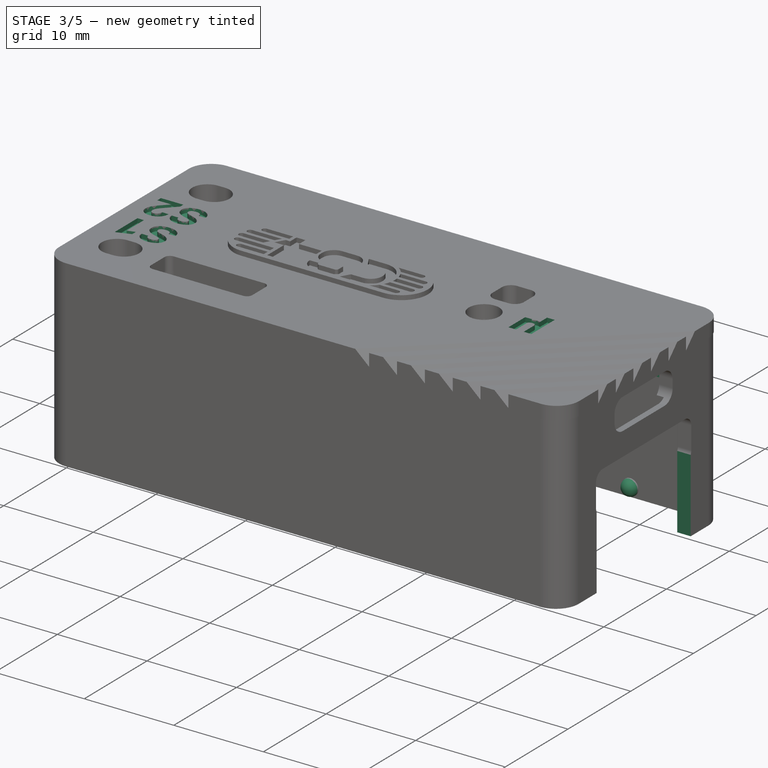
[diagram: stage 3 of 5 — iso view after this stage's code; geometry added in this stage tinted green]
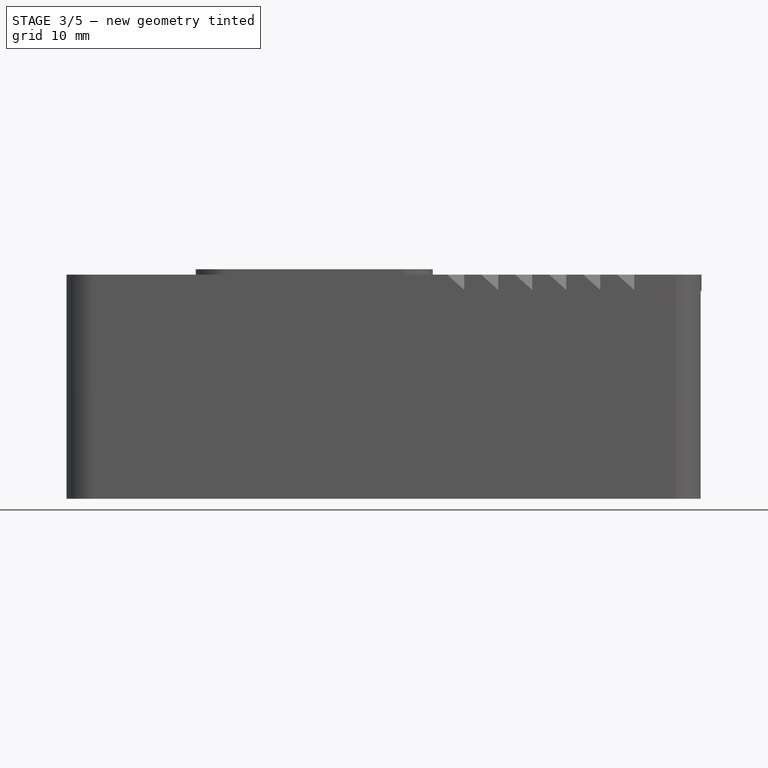
[diagram: stage 3 of 5 — front view after this stage's code; geometry added in this stage tinted green]
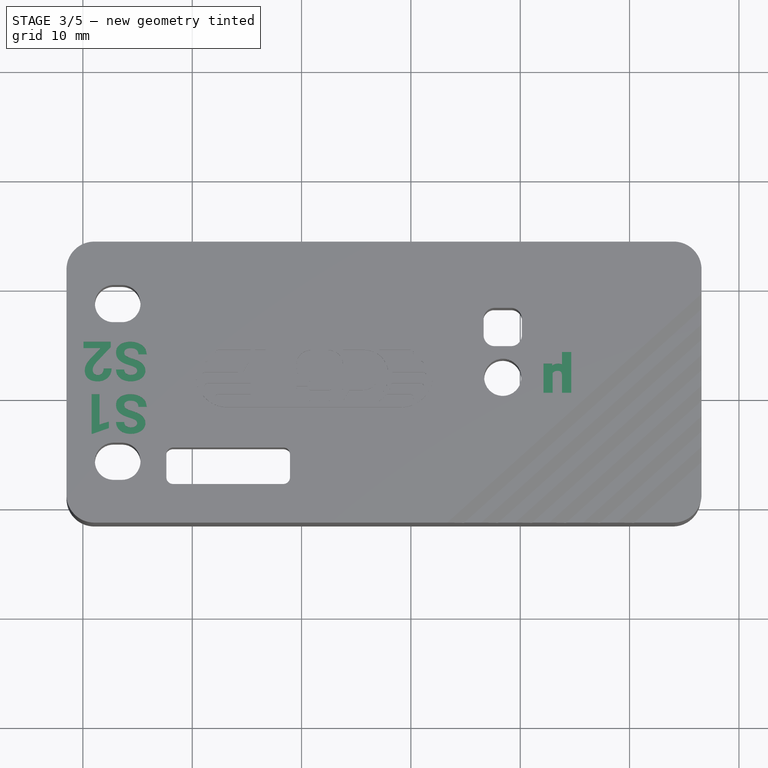
[diagram: stage 3 of 5 — top view after this stage's code; geometry added in this stage tinted green]
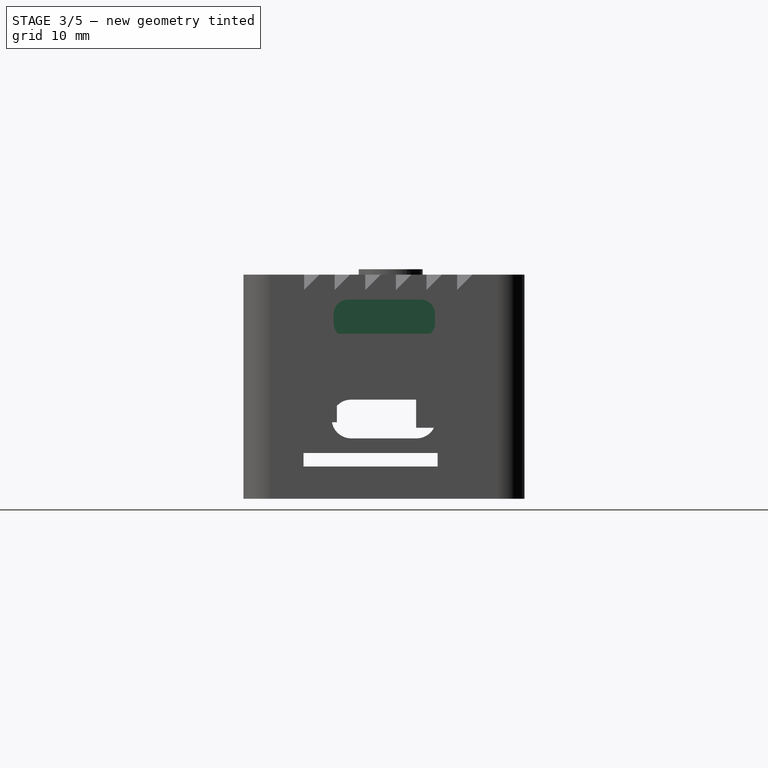
[diagram: stage 3 of 5 — right view after this stage's code; geometry added in this stage tinted green]
FEATURE [PartDesign::Body] Body003  label="Light Guide"
  Group = -> [Sketch013,Pad010]
  Origin = -> Origin182
  Tip = -> Pad010
FEATURE [App::Part] Part001  label="Световод линейки светодиодов"
  Group = -> [Body003]
  Origin = -> Origin181
  Placement = pos=(0,0,-15) rot=(0,0,1;0rad)
FEATURE [Part::Sphere] Sphere  label="Сфера 01"
  Angle1 = -90
  Angle2 = 90
  Angle3 = 360
  AttacherType = Attacher::AttachEngine3D
  Placement = pos=(7.7,0,-18) rot=(0,0,1;0rad)
  Radius = 0.9
FEATURE [Part::Sphere] Sphere001  label="Сфера 02"
  Angle1 = -90
  Angle2 = 90
  Angle3 = 360
  AttacherType = Attacher::AttachEngine3D
  Placement = pos=(47.1,0,-18) rot=(0,0,1;0rad)
  Radius = 0.9
FEATURE [Part::Sphere] Sphere002  label="Сфера 03"
  Angle1 = -90
  Angle2 = 90
  Angle3 = 360
  AttacherType = Attacher::AttachEngine3D
  Placement = pos=(7.7,22.7,-18) rot=(0,0,1;0rad)
  Radius = 0.9
FEATURE [Part::Sphere] Sphere003  label="Сфера 04"
  Angle1 = -90
  Angle2 = 90
  Angle3 = 360
  AttacherType = Attacher::AttachEngine3D
  Placement = pos=(47.1,22.65,-18) rot=(0,0,1;0rad)
  Radius = 0.9
FEATURE [Sketcher::SketchObject] Sketch025  label="Скетч Поддержка USB-C Breakout"
  FullyConstrained = true
  MapMode = 5
  Placement = pos=(0,0,1.5) rot=(0,0,1;0rad)
  Support = -> [Pad025]
  sketch-geometry (8):
    g0: LineSegment StartX=55.6 StartY=20.7 StartZ=0 EndX=42.1 EndY=20.7 EndZ=0
    g1: LineSegment StartX=55.6 StartY=2 StartZ=0 EndX=42.1 EndY=2 EndZ=0
    g2: LineSegment StartX=42.1 StartY=20.7 StartZ=0 EndX=42.1 EndY=2 EndZ=0
    g3: LineSegment StartX=55.6 StartY=20.7 StartZ=0 EndX=55.6 EndY=22.7 EndZ=0
    g4: LineSegment StartX=55.6 StartY=2 StartZ=0 EndX=55.6 EndY=0 EndZ=0
    g5: LineSegment StartX=55.6 StartY=22.7 StartZ=0 EndX=40.4 EndY=22.7 EndZ=0
    g6: LineSegment StartX=55.6 StartY=0 StartZ=0 EndX=40.4 EndY=0 EndZ=0
    g7: LineSegment StartX=40.4 StartY=22.7 StartZ=0 EndX=40.4 EndY=0 EndZ=0
  constraints (24):
    c: Horizontal(g0)
    c: Horizontal(g1)
    c: Equal(g0,g1)
    c: Vertical(g0,g1)
    c: Coincident(g2,g0)
    c: Coincident(g2,g1)
    c: Coincident(g3,g0)
    c: Vertical(g3)
    c: Coincident(g4,g1)
    c: PointOnObject(g4,g-1)
    c: Vertical(g4)
    c: Equal(g4,g3)
    c: Coincident(g5,g3)
    c: Horizontal(g5)
    c: Coincident(g6,g4)
    c: PointOnObject(g6,g-1)
    c: Equal(g5,g6)
    c: Coincident(g7,g5)
    c: Coincident(g7,g6)
    c: DistanceX(g6,g4) = 15.2
    c: DistanceX(g6,g1) = 1.7
    c: DistanceY(g1,g0) = 18.7
    c: DistanceY(g6,g1) = 2
    c: DistanceX(g-1,g6) = 40.4
FEATURE [PartDesign::Pad] Pad026  label="Поддержка USB-C Breakout"
  BaseFeature = -> Pad025
  Direction = (0,0,1)
  Length = 7
  Length2 = -1.5
  Profile = -> Sketch025
  ReferenceAxis = -> Sketch025 [N_Axis]
  Reversed = true
  Type = 4
FEATURE [Sketcher::SketchObject] Sketch026  label="Скетч USB-C PCB для углубления"
  AttachmentOffset = pos=(41.3,-1,0) rot=(0,0,1;4.71239rad)
  FullyConstrained = true
  MapMode = 5
  Placement = pos=(41.3,1,-5.5) rot=(-0.707107,-0.707107,0;3.14159rad)
  Support = -> [Pad026]
  sketch-geometry (27):
    g0: LineSegment StartX=1.6 StartY=14.5 StartZ=0 EndX=19.05 EndY=14.5 EndZ=0
    g1: LineSegment StartX=20.65 StartY=12.9 StartZ=0 EndX=20.65 EndY=1.6 EndZ=0
    g2: LineSegment StartX=19.05 StartY=0 StartZ=0 EndX=1.6 EndY=0 EndZ=0
    g3: LineSegment StartX=0 StartY=1.6 StartZ=0 EndX=0 EndY=12.9 EndZ=0
    g4: ArcOfCircle CenterX=19.05 CenterY=12.9 CenterZ=0 NormalX=0 NormalY=0 NormalZ=1 AngleXU=0 Radius=1.6 StartAngle=0 EndAngle=1.5708
    g5: GeomPoint X=20.65 Y=14.5 Z=0
    g6: ArcOfCircle CenterX=1.6 CenterY=12.9 CenterZ=0 NormalX=0 NormalY=0 NormalZ=1 AngleXU=0 Radius=1.6 StartAngle=1.5708 EndAngle=3.14159
    g7: GeomPoint X=0 Y=14.5 Z=0
    g8: ArcOfCircle CenterX=1.6 CenterY=1.6 CenterZ=0 NormalX=0 NormalY=0 NormalZ=1 AngleXU=0 Radius=1.6 StartAngle=3.14159 EndAngle=4.71239
    g9: GeomPoint X=0 Y=0 Z=0
    g10: ArcOfCircle CenterX=19.05 CenterY=1.6 CenterZ=0 NormalX=0 NormalY=0 NormalZ=1 AngleXU=0 Radius=1.6 StartAngle=4.71239 EndAngle=6.28319
    g11: GeomPoint X=20.65 Y=0 Z=0
    g12: Circle CenterX=1.4 CenterY=2.3 CenterZ=0 NormalX=0 NormalY=0 NormalZ=1 AngleXU=0 Radius=0.25
    g13: Circle CenterX=3.94 CenterY=2.29819 CenterZ=0 NormalX=0 NormalY=0 NormalZ=1 AngleXU=0 Radius=0.25
    g14: LineSegment StartX=1.4 StartY=2.3 StartZ=0 EndX=3.94 EndY=2.29819 EndZ=0
    g15: Circle CenterX=6.48 CenterY=2.29639 CenterZ=0 NormalX=0 NormalY=0 NormalZ=1 AngleXU=0 Radius=0.25
    g16: LineSegment StartX=3.94 StartY=2.29819 StartZ=0 EndX=6.48 EndY=2.29639 EndZ=0
    g17: Circle CenterX=9.02 CenterY=2.29458 CenterZ=0 NormalX=0 NormalY=0 NormalZ=1 AngleXU=0 Radius=0.25
    g18: LineSegment StartX=6.48 StartY=2.29639 StartZ=0 EndX=9.02 EndY=2.29458 EndZ=0
    g19: Circle CenterX=11.56 CenterY=2.29277 CenterZ=0 NormalX=0 NormalY=0 NormalZ=1 AngleXU=0 Radius=0.25
    g20: LineSegment StartX=9.02 StartY=2.29458 StartZ=0 EndX=11.56 EndY=2.29277 EndZ=0
    g21: Circle CenterX=14.1 CenterY=2.29096 CenterZ=0 NormalX=0 NormalY=0 NormalZ=1 AngleXU=0 Radius=0.25
    g22: LineSegment StartX=11.56 StartY=2.29277 StartZ=0 EndX=14.1 EndY=2.29096 EndZ=0
    g23: Circle CenterX=16.64 CenterY=2.28916 CenterZ=0 NormalX=0 NormalY=0 NormalZ=1 AngleXU=0 Radius=0.25
    g24: LineSegment StartX=14.1 StartY=2.29096 StartZ=0 EndX=16.64 EndY=2.28916 EndZ=0
    g25: Circle CenterX=19.18 CenterY=2.28735 CenterZ=0 NormalX=0 NormalY=0 NormalZ=1 AngleXU=0 Radius=0.25
    g26: LineSegment StartX=16.64 StartY=2.28916 StartZ=0 EndX=19.18 EndY=2.28735 EndZ=0
  constraints (66):
    c: Horizontal(g0)
    c: Horizontal(g2)
    c: Vertical(g1)
    c: Vertical(g3)
    c: PointOnObject(g7,g-2)
    c: PointOnObject(g11,g-1)
    c: DistanceY(g9,g7) = 14.5
    c: DistanceX(g7,g5) = 20.65
    c: PointOnObject(g5,g0)
    c: PointOnObject(g5,g1)
    c: Tangent(g0,g4) = 1.5708
    c: Tangent(g1,g4) = 1.5708
    c: PointOnObject(g7,g0)
    c: PointOnObject(g7,g3)
    c: Tangent(g0,g6) = 1.5708
    c: Tangent(g3,g6) = 1.5708
    c: PointOnObject(g9,g2)
    c: PointOnObject(g9,g3)
    c: Tangent(g2,g8) = 1.5708
    c: Tangent(g3,g8) = 1.5708
    c: PointOnObject(g11,g1)
    c: PointOnObject(g11,g2)
    c: Tangent(g1,g10) = 1.5708
    c: Tangent(g2,g10) = 1.5708
    c: Equal(g8,g6)
    c: Equal(g4,g10)
    c: Equal(g6,g4)
    c: Radius(g8) = 1.6
    c: DistanceY(g2,g12) = 2.3
    c: DistanceX(g3,g12) = 1.4
    c: Diameter(g12) = 0.5
    c: Diameter(g13) = 0.5
    c: Coincident(g12,g14)
    c: Coincident(g13,g14)
    c: Distance(g14) = 2.54
    c: Angle(g14) = -0.000711571
    c: Diameter(g15) = 0.5
    c: Coincident(g13,g16)
    c: Coincident(g15,g16)
    c: Equal(g14,g16)
    c: Parallel(g16,g14)
    c: Diameter(g17) = 0.5
    c: Coincident(g15,g18)
    c: Coincident(g17,g18)
    c: Equal(g14,g18)
    c: Parallel(g18,g14)
    c: Diameter(g19) = 0.5
    c: Coincident(g17,g20)
    c: Coincident(g19,g20)
    c: Equal(g14,g20)
    c: Parallel(g20,g14)
    c: Diameter(g21) = 0.5
    c: Coincident(g19,g22)
    c: Coincident(g21,g22)
    c: Equal(g14,g22)
    c: Parallel(g22,g14)
    c: Diameter(g23) = 0.5
    c: Coincident(g21,g24)
    c: Coincident(g23,g24)
    c: Equal(g14,g24)
    c: Parallel(g24,g14)
    c: Diameter(g25) = 0.5
    c: Coincident(g23,g26)
    c: Coincident(g25,g26)
    c: Equal(g14,g26)
    c: Parallel(g26,g14)
FEATURE [PartDesign::Pocket] Pocket004  label="Углубление под USB-C Breakout"
  BaseFeature = -> Pad026
  Direction = (0,0,1)
  Length = 1.6
  Length2 = 0
  Profile = -> Sketch026
  ReferenceAxis = -> Sketch026 [N_Axis]
  Type = 0
FEATURE [Part::Part2DObjectPython] ShapeString  label="Надпись S1"  # Draft 2D object (typed FeaturePython)
  AttachmentOffset = pos=(6,10.2,0) rot=(0,0,1;3.14159rad)
  FontFile = <path>
  MakeFace = true
  MapMode = 5
  Placement = pos=(6,10.2,1.5) rot=(0,0,1;3.14159rad)
  Size = 4
  String = S1
  Support = -> [Pocket004]
  Tracking = 0
FEATURE [PartDesign::Pocket] Pocket005  label="Выдавленная S1"
  BaseFeature = -> Pocket004
  Direction = (0,0,-1)
  Length = 0.5
  Length2 = 5
  Profile = -> ShapeString
  ReferenceAxis = -> ShapeString [N_Axis]
  Type = 0
FEATURE [Part::Part2DObjectPython] ShapeString001  label="Надпись S2"  # Draft 2D object (typed FeaturePython)
  AttachmentOffset = pos=(6,15,0) rot=(0,0,1;3.14159rad)
  FontFile = <path>
  MakeFace = true
  MapMode = 5
  Placement = pos=(6,15,1.5) rot=(0,0,1;3.14159rad)
  Size = 4
  String = S2
  Support = -> [Pocket005]
  Tracking = 0
FEATURE [PartDesign::Pocket] Pocket006  label="Выдавленная S2"
  BaseFeature = -> Pocket005
  Direction = (0,0,-1)
  Length = 0.5
  Length2 = 5
  Profile = -> ShapeString001
  ReferenceAxis = -> ShapeString001 [N_Axis]
  Type = 0
FEATURE [Part::Part2DObjectPython] ShapeString003  label="Надпись μ"  # Draft 2D object (typed FeaturePython)
  AttachmentOffset = pos=(45,13,0) rot=(0,0,1;3.14159rad)
  FontFile = <path>
  MakeFace = true
  MapMode = 5
  Placement = pos=(45,13,1.5) rot=(0,0,1;3.14159rad)
  Size = 4
  String = μ
  Support = -> [Pocket006]
  Tracking = 0
FEATURE [PartDesign::Pocket] Pocket007  label="Выдавленная μ"
  BaseFeature = -> Pocket006
  Direction = (0,0,-1)
  Length = 0.5
  Length2 = 5
  Profile = -> ShapeString003
  ReferenceAxis = -> ShapeString003 [N_Axis]
  Type = 0
FEATURE [PartDesign::Body] Body  label="Body Корпус"
  Group = -> [Sketch004,Pad,Sketch008,Pocket,ShapeString,ShapeString001,ShapeString003,Sketch007,Sketch006,SubtractivePipe,LinearPattern,Sketch,Pad016,Sketch001,Pocket001,Sketch002,Pocket002,Sketch003,Pocket003,Sketch005,Pad017,Sketch017,Pad018,Sketch018,Pad019,Sketch024,Pad025,Sketch025,Pad026,Sketch026,Pocket004,Pocket005,Pocket006,Pocket007]
  Origin = -> Origin191
  Tip = -> Pocket007
FEATURE [Part::FeaturePython] Slice  label="Разрез корпуса по разъёму HDMI"  # WARN: FeaturePython — macro-defined, semantics opaque (R4)
  Base = -> Body
  Mode = 1
  Tolerance = 0
  Tools = -> [Plane,Plane001]
FEATURE [Part::FeaturePython] Slice_child0  label="Часть Корпус"  # WARN: FeaturePython — macro-defined, semantics opaque (R4)
  Base = -> Slice
  FilterType = 1
  Invert = false
  OverrideMaxVal = 0
  WindowFrom = 80
  WindowTo = 100
  items = 0
FEATURE [Part::Cut] Cut  label="Вырез Сфера 01"
  Base = -> Slice_child0
  Tool = -> Sphere
FEATURE [Part::Cut] Cut001  label="Вырез Сфера 02"
  Base = -> Cut
  Tool = -> Sphere001
FEATURE [Part::Cut] Cut002  label="Вырез Сфера 03"
  Base = -> Cut001
  Tool = -> Sphere002
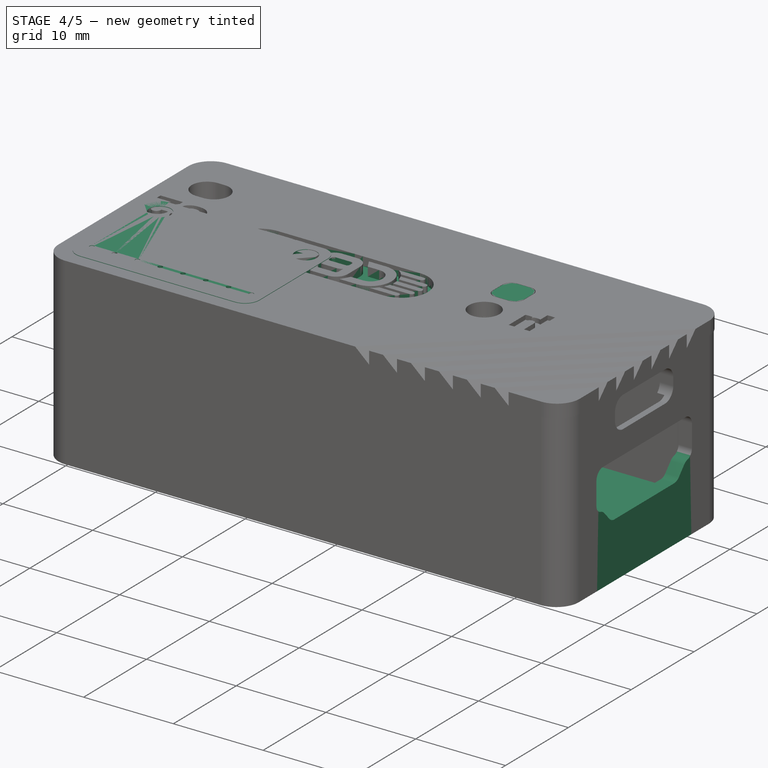
[diagram: stage 4 of 5 — iso view after this stage's code; geometry added in this stage tinted green]
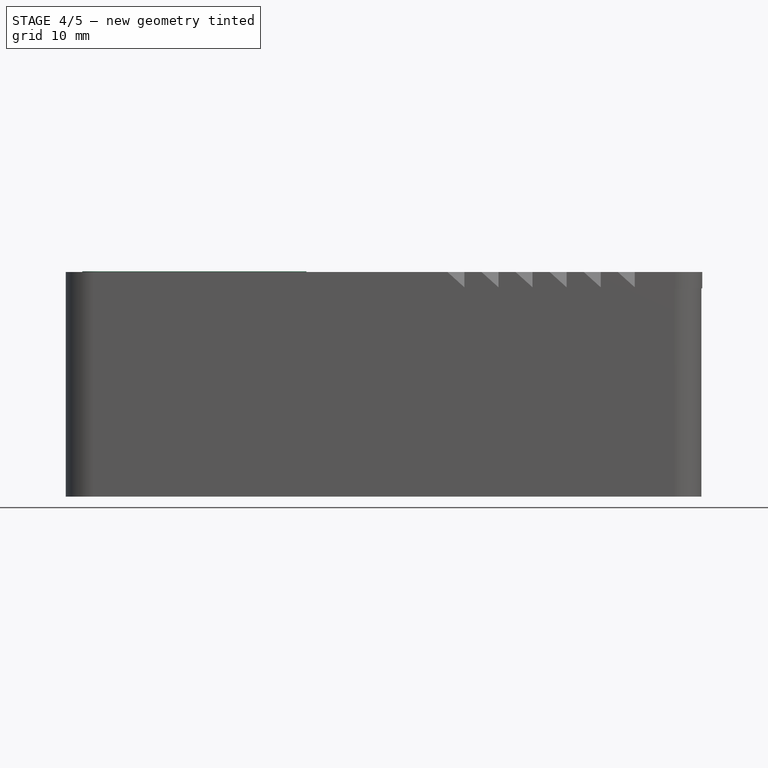
[diagram: stage 4 of 5 — front view after this stage's code; geometry added in this stage tinted green]
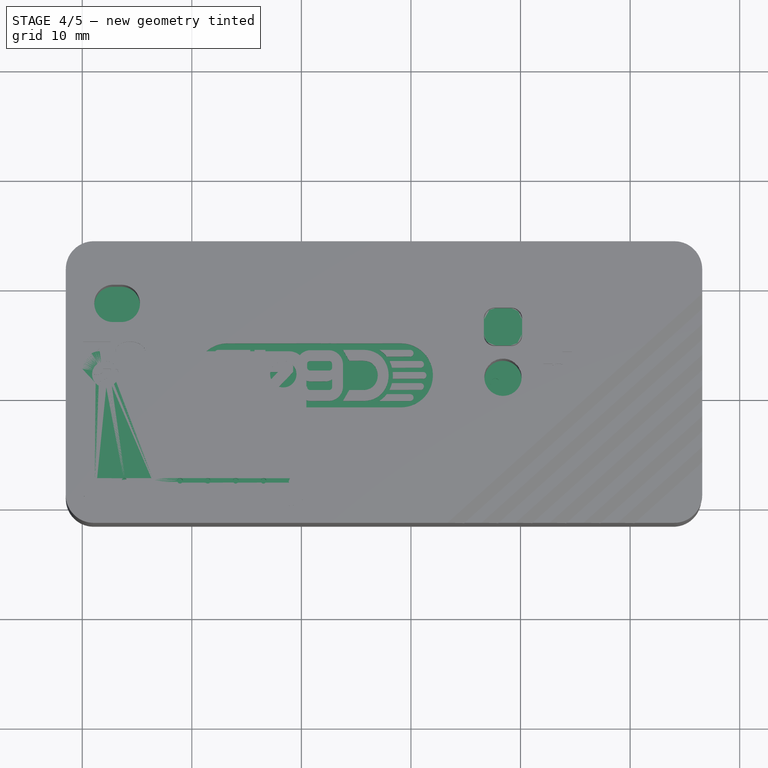
[diagram: stage 4 of 5 — top view after this stage's code; geometry added in this stage tinted green]
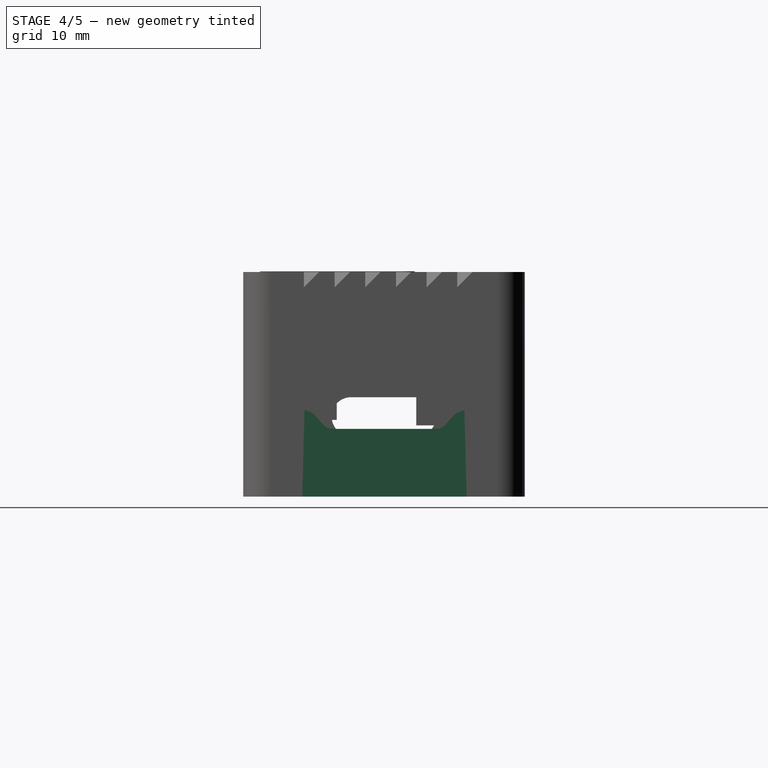
[diagram: stage 4 of 5 — right view after this stage's code; geometry added in this stage tinted green]
FEATURE [Part::Plane] Plane  label="Плоскость 01"
  AttacherType = Attacher::AttachEngine3D
  Length = 10
  Placement = pos=(50.65,3.85,-10) rot=(-1,0,0;1.5708rad)
  Width = 12
FEATURE [Part::Plane] Plane001  label="Плоскость 02"
  AttacherType = Attacher::AttachEngine3D
  Length = 10
  Placement = pos=(50.9,18.85,-10) rot=(-1,0,0;1.5708rad)
  Width = 12
FEATURE [Sketcher::SketchObject] Sketch016  label="Скетч Нижняя крышка"
  AttachmentOffset = pos=(0,22.65,-19) rot=(0,0,1;0rad)
  FullyConstrained = true
  MapMode = 5
  Placement = pos=(0,22.65,-19) rot=(0,0,1;0rad)
  Support = -> [XY_Plane192]
  sketch-geometry (10):
    g0: ArcOfCircle CenterX=2.5 CenterY=-2.5 CenterZ=0 NormalX=0 NormalY=0 NormalZ=1 AngleXU=0 Radius=2.4 StartAngle=1.5708 EndAngle=3.14159
    g1: LineSegment StartX=2.5 StartY=-0.1 StartZ=0 EndX=52.6 EndY=-0.1 EndZ=0
    g2: ArcOfCircle CenterX=52.6 CenterY=-2.5 CenterZ=0 NormalX=0 NormalY=0 NormalZ=1 AngleXU=0 Radius=2.4 StartAngle=1e-16 EndAngle=1.5708
    g3: LineSegment StartX=55 StartY=-2.5 StartZ=0 EndX=55 EndY=-20.3 EndZ=0
    g4: ArcOfCircle CenterX=52.6 CenterY=-20.3 CenterZ=0 NormalX=0 NormalY=0 NormalZ=1 AngleXU=0 Radius=2.4 StartAngle=4.71239 EndAngle=6.28319
    g5: LineSegment StartX=52.6 StartY=-22.7 StartZ=0 EndX=2.5 EndY=-22.7 EndZ=0
    g6: ArcOfCircle CenterX=2.5 CenterY=-20.3 CenterZ=0 NormalX=0 NormalY=0 NormalZ=1 AngleXU=0 Radius=2.4 StartAngle=3.14159 EndAngle=4.71239
    g7: LineSegment StartX=0.1 StartY=-20.3 StartZ=0 EndX=0.1 EndY=-2.5 EndZ=0
    g8: GeomPoint X=0.1 Y=-0.1 Z=0
    g9: GeomPoint X=55 Y=-22.7 Z=0
  constraints (24):
    c: Tangent(g0,g1) = 1.5708
    c: Tangent(g1,g2) = 1.5708
    c: Tangent(g2,g3) = 1.5708
    c: Tangent(g3,g4) = 1.5708
    c: Tangent(g4,g5) = 1.5708
    c: Tangent(g5,g6) = 1.5708
    c: Tangent(g6,g7) = 1.5708
    c: Tangent(g7,g0) = 1.5708
    c: Horizontal(g1)
    c: Horizontal(g5)
    c: Vertical(g3)
    c: Vertical(g7)
    c: Equal(g0,g2)
    c: Equal(g2,g4)
    c: Equal(g4,g6)
    c: PointOnObject(g8,g1)
    c: PointOnObject(g8,g7)
    c: PointOnObject(g9,g3)
    c: PointOnObject(g9,g5)
    c: DistanceY(g0,g-1) = 0.1
    c: DistanceX(g-1,g0) = 0.1
    c: DistanceY(g5,g0) = 22.6
    c: DistanceX(g0,g2) = 54.9
    c: Radius(g0) = 2.4
FEATURE [Part::Sphere] Sphere004  label="Сфера 11"
  Angle1 = -90
  Angle2 = 90
  Angle3 = 360
  AttacherType = Attacher::AttachEngine3D
  Placement = pos=(7.7,0.1,-18) rot=(0,0,1;0rad)
  Radius = 0.8
FEATURE [PartDesign::Pad] Pad021  label="Глухая нижняя крышка"
  Direction = (0,0,1)
  Length = 2
  Length2 = 10
  Profile = -> Sketch016
  ReferenceAxis = -> Sketch016 [N_Axis]
  Type = 0
FEATURE [Part::Part2DObjectPython] ShapeString004  label="Строка (c) prcoder"  # Draft 2D object (typed FeaturePython)
  AttachmentOffset = pos=(45.5,12.5,0) rot=(0,0,1;3.14159rad)
  FontFile = <path>
  MakeFace = true
  MapMode = 5
  Placement = pos=(45.5,12.5,-17) rot=(0,0,1;3.14159rad)
  Size = 3.5
  String = (c) prcoder, 2023
  Support = -> [Pad021]
  Tracking = 0
FEATURE [PartDesign::Pad] Pad022  label="Нижняя крышка (c)"
  BaseFeature = -> Pad021
  Direction = (0,0,1)
  Length = 0.35
  Length2 = 10
  Profile = -> ShapeString004
  ReferenceAxis = -> ShapeString004 [N_Axis]
  Type = 0
FEATURE [PartDesign::Body] Body004  label="Body Нижняя крышка"
  Group = -> [Sketch016,Pad021,ShapeString004,Pad022]
  Origin = -> Origin192
  Tip = -> Pad022
FEATURE [App::Part] Part005  label="Нижняя крышка"
  Group = -> [Body004]
  Origin = -> Origin189
FEATURE [Part::Feature] Part__Feature178  label="ConPins"
  shape: bbox 6 x 4.32 x 0.61 mm, 70 faces (baked)
FEATURE [Part::Feature] Part__Feature179  label="PcbPins"
  shape: bbox 6.9 x 0.99 x 0.3 mm, 118 faces (baked)
FEATURE [Part::Feature] Part__Feature180  label="Mold"
  shape: bbox 8.955 x 6.505 x 3.736 mm, 55 faces (baked)
FEATURE [Part::Feature] Part__Feature181  label="Frame"
  shape: bbox 8.95 x 7.3 x 4.2 mm, 323 faces (baked)
FEATURE [App::Part] HRO_TYPE_C_31_M_12  label="HRO_TYPE-C-31-M-12"
  Group = -> [Part__Feature178,Part__Feature179,Part__Feature180,Part__Feature181]
  Origin = -> Origin194
  Placement = pos=(14.7,14.15,1.6) rot=(0,0,1;3.14159rad)
FEATURE [Part::Feature] Part__Feature182  label="5.1k SMD Resistor (1)"
  Placement = pos=(-9.5,8.2,0) rot=(0,0,-1;1.5708rad)
  shape: bbox 3.428 x 1.381 x 0.5221 mm, 74 faces (baked)
FEATURE [Part::Feature] Part__Feature183  label="5.1k SMD Resistor (2)"
  Placement = pos=(-9.45,6.35,0) rot=(0,0,-1;1.5708rad)
  shape: bbox 3.428 x 1.381 x 0.5221 mm, 74 faces (baked)
FEATURE [PartDesign::Body] Body005  label="Breakboard PCB"
  Origin = -> Origin195
FEATURE [Sketcher::SketchObject] Sketch022  label="USB-C PCB Sketch"
  FullyConstrained = true
  MapMode = 5
  sketch-geometry (29):
    g0: LineSegment StartX=1.6 StartY=14.12 StartZ=0 EndX=18.85 EndY=14.12 EndZ=0
    g1: LineSegment StartX=20.45 StartY=12.52 StartZ=0 EndX=20.45 EndY=1.6 EndZ=0
    g2: LineSegment StartX=18.85 StartY=6.666e-13 StartZ=0 EndX=1.6 EndY=6.666e-13 EndZ=0
    g3: LineSegment StartX=6.666e-13 StartY=1.6 StartZ=0 EndX=6.666e-13 EndY=12.52 EndZ=0
    g4: ArcOfCircle CenterX=18.85 CenterY=12.52 CenterZ=0 NormalX=0 NormalY=0 NormalZ=1 AngleXU=0 Radius=1.6 StartAngle=4e-16 EndAngle=1.5708
    g5: GeomPoint X=20.45 Y=14.12 Z=0
    g6: ArcOfCircle CenterX=1.6 CenterY=12.52 CenterZ=0 NormalX=0 NormalY=0 NormalZ=1 AngleXU=0 Radius=1.6 StartAngle=1.5708 EndAngle=3.14159
    g7: GeomPoint X=0 Y=14.12 Z=0
    g8: ArcOfCircle CenterX=1.6 CenterY=1.6 CenterZ=0 NormalX=0 NormalY=0 NormalZ=1 AngleXU=0 Radius=1.6 StartAngle=3.14159 EndAngle=4.71239
    g9: GeomPoint X=0 Y=0 Z=0
    g10: ArcOfCircle CenterX=18.85 CenterY=1.6 CenterZ=0 NormalX=0 NormalY=0 NormalZ=1 AngleXU=0 Radius=1.6 StartAngle=4.71239 EndAngle=6.28319
    g11: GeomPoint X=20.45 Y=0 Z=0
    g12: Circle CenterX=1.3 CenterY=2.3 CenterZ=0 NormalX=0 NormalY=0 NormalZ=1 AngleXU=0 Radius=0.25
    g13: Circle CenterX=3.84 CenterY=2.29819 CenterZ=0 NormalX=0 NormalY=0 NormalZ=1 AngleXU=0 Radius=0.25
    g14: LineSegment StartX=1.3 StartY=2.3 StartZ=0 EndX=3.84 EndY=2.29819 EndZ=0
    g15: Circle CenterX=6.38 CenterY=2.29639 CenterZ=0 NormalX=0 NormalY=0 NormalZ=1 AngleXU=0 Radius=0.25
    g16: LineSegment StartX=3.84 StartY=2.29819 StartZ=0 EndX=6.38 EndY=2.29639 EndZ=0
    g17: Circle CenterX=8.92 CenterY=2.29458 CenterZ=0 NormalX=0 NormalY=0 NormalZ=1 AngleXU=0 Radius=0.25
    g18: LineSegment StartX=6.38 StartY=2.29639 StartZ=0 EndX=8.92 EndY=2.29458 EndZ=0
    g19: Circle CenterX=11.46 CenterY=2.29277 CenterZ=0 NormalX=0 NormalY=0 NormalZ=1 AngleXU=0 Radius=0.25
    g20: LineSegment StartX=8.92 StartY=2.29458 StartZ=0 EndX=11.46 EndY=2.29277 EndZ=0
    g21: Circle CenterX=14 CenterY=2.29096 CenterZ=0 NormalX=0 NormalY=0 NormalZ=1 AngleXU=0 Radius=0.25
    g22: LineSegment StartX=11.46 StartY=2.29277 StartZ=0 EndX=14 EndY=2.29096 EndZ=0
    g23: Circle CenterX=16.54 CenterY=2.28916 CenterZ=0 NormalX=0 NormalY=0 NormalZ=1 AngleXU=0 Radius=0.25
    g24: LineSegment StartX=14 StartY=2.29096 StartZ=0 EndX=16.54 EndY=2.28916 EndZ=0
    g25: Circle CenterX=19.08 CenterY=2.28735 CenterZ=0 NormalX=0 NormalY=0 NormalZ=1 AngleXU=0 Radius=0.25
    g26: LineSegment StartX=16.54 StartY=2.28916 StartZ=0 EndX=19.08 EndY=2.28735 EndZ=0
    g27: Circle CenterX=2.1 CenterY=12.02 CenterZ=0 NormalX=0 NormalY=0 NormalZ=1 AngleXU=0 Radius=1.2
    g28: Circle CenterX=18.35 CenterY=12.02 CenterZ=0 NormalX=0 NormalY=0 NormalZ=1 AngleXU=0 Radius=1.2
  constraints (72):
    c: Horizontal(g0)
    c: Horizontal(g2)
    c: Vertical(g1)
    c: Vertical(g3)
    c: PointOnObject(g7,g-2)
    c: PointOnObject(g11,g-1)
    c: DistanceY(g9,g7) = 14.12
    c: DistanceX(g7,g5) = 20.45
    c: PointOnObject(g5,g0)
    c: PointOnObject(g5,g1)
    c: Tangent(g0,g4) = 1.5708
    c: Tangent(g1,g4) = 1.5708
    c: PointOnObject(g7,g0)
    c: PointOnObject(g7,g3)
    c: Tangent(g0,g6) = 1.5708
    c: Tangent(g3,g6) = 1.5708
    c: PointOnObject(g9,g2)
    c: PointOnObject(g9,g3)
    c: Tangent(g2,g8) = 1.5708
    c: Tangent(g3,g8) = 1.5708
    c: PointOnObject(g11,g1)
    c: PointOnObject(g11,g2)
    c: Tangent(g1,g10) = 1.5708
    c: Tangent(g2,g10) = 1.5708
    c: Equal(g8,g6)
    c: Equal(g4,g10)
    c: Equal(g6,g4)
    c: Radius(g8) = 1.6
    c: DistanceY(g2,g12) = 2.3
    c: DistanceX(g3,g12) = 1.3
    c: Diameter(g12) = 0.5
    c: Diameter(g13) = 0.5
    c: Coincident(g12,g14)
    c: Coincident(g13,g14)
    c: Distance(g14) = 2.54
    c: Angle(g14) = -0.000711571
    c: Diameter(g15) = 0.5
    c: Coincident(g13,g16)
    c: Coincident(g15,g16)
    c: Equal(g14,g16)
    c: Parallel(g16,g14)
    c: Diameter(g17) = 0.5
    c: Coincident(g15,g18)
    c: Coincident(g17,g18)
    c: Equal(g14,g18)
    c: Parallel(g18,g14)
    c: Diameter(g19) = 0.5
    c: Coincident(g17,g20)
    c: Coincident(g19,g20)
    c: Equal(g14,g20)
    c: Parallel(g20,g14)
    c: Diameter(g21) = 0.5
    c: Coincident(g19,g22)
    c: Coincident(g21,g22)
    c: Equal(g14,g22)
    c: Parallel(g22,g14)
    c: Diameter(g23) = 0.5
    c: Coincident(g21,g24)
    c: Coincident(g23,g24)
    c: Equal(g14,g24)
    c: Parallel(g24,g14)
    c: Diameter(g25) = 0.5
    c: Coincident(g23,g26)
    c: Coincident(g25,g26)
    c: Equal(g14,g26)
    c: Parallel(g26,g14)
    c: Diameter(g27) = 2.4
    c: DistanceX(g6,g27) = 0.5
    c: DistanceY(g27,g6) = 0.5
    c: Equal(g27,g28)
    c: Horizontal(g27,g28)
    c: DistanceX(g28,g4) = 0.5
FEATURE [PartDesign::Pad] Pad023  label="USB-C PCB"
  Direction = (0,0,1)
  Length = 1.55
  Length2 = 10
  Profile = -> Sketch022
  ReferenceAxis = -> Sketch022 [N_Axis]
  Type = 0
FEATURE [Part::Part2DObjectPython] ShapeString005  label="CC2"  # Draft 2D object (typed FeaturePython)
  AttachmentOffset = pos=(1,0.8,0) rot=(0,0,1;0rad)
  FontFile = <path>
  MakeFace = true
  MapMode = 5
  Placement = pos=(1,0.8,1.55) rot=(0,0,1;0rad)
  Size = 0.8
  String = CC2
  Support = -> [Pad023]
  Tracking = 0
FEATURE [Part::Part2DObjectPython] ShapeString006  label="CC1"  # Draft 2D object (typed FeaturePython)
  AttachmentOffset = pos=(10.6,0.8,0) rot=(0,0,1;0rad)
  FontFile = <path>
  MakeFace = true
  MapMode = 5
  Placement = pos=(10.6,0.8,1.55) rot=(0,0,1;0rad)
  Size = 0.8
  String = CC1
  Support = -> [Pad023]
  Tracking = 0
FEATURE [Part::Part2DObjectPython] ShapeString007  label="D+"  # Draft 2D object (typed FeaturePython)
  AttachmentOffset = pos=(5.8,0.8,0) rot=(0,0,1;0rad)
  FontFile = <path>
  MakeFace = true
  MapMode = 5
  Placement = pos=(5.8,0.8,1.55) rot=(0,0,1;0rad)
  Size = 0.8
  String = D+
  Support = -> [Pad023]
  Tracking = 0
FEATURE [Part::Part2DObjectPython] ShapeString008  label="VBUS"  # Draft 2D object (typed FeaturePython)
  AttachmentOffset = pos=(15.1,0.8,0) rot=(0,0,1;0rad)
  FontFile = <path>
  MakeFace = true
  MapMode = 5
  Placement = pos=(15.1,0.8,1.55) rot=(0,0,1;0rad)
  Size = 0.8
  String = VBUS
  Support = -> [Pad023]
  Tracking = 0
FEATURE [Part::Part2DObjectPython] ShapeString009  label="SBU1"  # Draft 2D object (typed FeaturePython)
  AttachmentOffset = pos=(2.4,3,0) rot=(0,0,1;0rad)
  FontFile = <path>
  MakeFace = true
  MapMode = 5
  Placement = pos=(2.4,3,1.55) rot=(0,0,1;0rad)
  Size = 0.8
  String = SBU1
  Support = -> [Pad023]
  Tracking = 0
FEATURE [Part::Part2DObjectPython] ShapeString010  label="D-"  # Draft 2D object (typed FeaturePython)
  AttachmentOffset = pos=(8.3,3,0) rot=(0,0,1;0rad)
  FontFile = <path>
  MakeFace = true
  MapMode = 5
  Placement = pos=(8.3,3,1.55) rot=(0,0,1;0rad)
  Size = 0.8
  String = D-
  Support = -> [Pad023]
  Tracking = 0
FEATURE [Part::Part2DObjectPython] ShapeString011  label="SBU2"  # Draft 2D object (typed FeaturePython)
  AttachmentOffset = pos=(12.5,3,0) rot=(0,0,1;0rad)
  FontFile = <path>
  MakeFace = true
  MapMode = 5
  Placement = pos=(12.5,3,1.55) rot=(0,0,1;0rad)
  Size = 0.8
  String = SBU2
  Support = -> [Pad023]
  Tracking = 0
FEATURE [Part::Part2DObjectPython] ShapeString012  label="GND"  # Draft 2D object (typed FeaturePython)
  AttachmentOffset = pos=(17.8,3,0) rot=(0,0,1;0rad)
  FontFile = <path>
  MakeFace = true
  MapMode = 5
  Placement = pos=(17.8,3,1.55) rot=(0,0,1;0rad)
  Size = 0.8
  String = GND
  Support = -> [Pad023]
  Tracking = 0
FEATURE [Part::Part2DObjectPython] ShapeString013  label="USB C"  # Draft 2D object (typed FeaturePython)
  AttachmentOffset = pos=(15,6,0) rot=(0,0,1;0rad)
  FontFile = <path>
  MakeFace = true
  MapMode = 5
  Placement = pos=(15,6,1.55) rot=(0,0,1;0rad)
  Size = 0.8
  String = USB C
  Support = -> [Pad023]
  Tracking = 0
FEATURE [App::Part] Part006  label="USB C Breakout"
  Group = -> [HRO_TYPE_C_31_M_12,Part__Feature182,Part__Feature183,Body005,Sketch022,ShapeString005,ShapeString006,ShapeString007,ShapeString008,ShapeString009,ShapeString010,ShapeString011,ShapeString012,ShapeString013,Pad023]
  Origin = -> Origin193
  Placement = pos=(41.75,21.55,-5.75) rot=(0,0,1;4.71239rad)
FEATURE [Sketcher::SketchObject] Sketch023  label="Скетч Световод RGB"
  FullyConstrained = true
  MapMode = 2
  Support = -> [XY_Plane197]
  sketch-geometry (10):
    g0: ArcOfCircle CenterX=37.7 CenterY=17.05 CenterZ=0 NormalX=0 NormalY=0 NormalZ=1 AngleXU=0 Radius=1 StartAngle=1.5708 EndAngle=3.14159
    g1: LineSegment StartX=37.7 StartY=18.05 StartZ=0 EndX=39.1 EndY=18.05 EndZ=0
    g2: ArcOfCircle CenterX=39.1 CenterY=17.05 CenterZ=0 NormalX=0 NormalY=0 NormalZ=1 AngleXU=0 Radius=1 StartAngle=1.8e-15 EndAngle=1.5708
    g3: LineSegment StartX=40.1 StartY=17.05 StartZ=0 EndX=40.1 EndY=15.65 EndZ=0
    g4: ArcOfCircle CenterX=39.1 CenterY=15.65 CenterZ=0 NormalX=0 NormalY=0 NormalZ=1 AngleXU=0 Radius=1 StartAngle=4.71239 EndAngle=6.28319
    g5: LineSegment StartX=39.1 StartY=14.65 StartZ=0 EndX=37.7 EndY=14.65 EndZ=0
    g6: ArcOfCircle CenterX=37.7 CenterY=15.65 CenterZ=0 NormalX=0 NormalY=0 NormalZ=1 AngleXU=0 Radius=1 StartAngle=3.14159 EndAngle=4.71239
    g7: LineSegment StartX=36.7 StartY=15.65 StartZ=0 EndX=36.7 EndY=17.05 EndZ=0
    g8: GeomPoint X=36.7 Y=18.05 Z=0
    g9: GeomPoint X=40.1 Y=14.65 Z=0
  constraints (24):
    c: Tangent(g0,g1) = 1.5708
    c: Tangent(g1,g2) = 1.5708
    c: Tangent(g2,g3) = 1.5708
    c: Tangent(g3,g4) = 1.5708
    c: Tangent(g4,g5) = 1.5708
    c: Tangent(g5,g6) = 1.5708
    c: Tangent(g6,g7) = 1.5708
    c: Tangent(g7,g0) = 1.5708
    c: Horizontal(g1)
    c: Horizontal(g5)
    c: Vertical(g3)
    c: Vertical(g7)
    c: Equal(g0,g2)
    c: Equal(g2,g4)
    c: Equal(g4,g6)
    c: PointOnObject(g8,g1)
    c: PointOnObject(g8,g7)
    c: PointOnObject(g9,g3)
    c: PointOnObject(g9,g5)
    c: DistanceX(g-1,g6) = 37.7
    c: DistanceY(g-1,g6) = 15.65
    c: Equal(g7,g1)
    c: DistanceX(g5,g4) = 1.4
    c: Radius(g2) = 1
FEATURE [PartDesign::Pad] Pad024  label="Световод RGB (тело)"
  Direction = (0,0,1)
  Length = 1.5
  Length2 = 12.5
  Profile = -> Sketch023
  ReferenceAxis = -> Sketch023 [N_Axis]
  Type = 4
FEATURE [Part::FeaturePython] Slice_child1  label="Часть Ласточкин хвост"  # WARN: FeaturePython — macro-defined, semantics opaque (R4)
  Base = -> Slice
  FilterType = 1
  Invert = false
  OverrideMaxVal = 0
  WindowFrom = 80
  WindowTo = 100
  items = 1
FEATURE [Part::MultiFuse] Fusion  label="Нижняя крышка с ласточкиным хвостом"
  Shapes = -> [Pad022,Slice_child1]
FEATURE [Part::Cut] Cut003  label="Вырез Сфера 04"
  Base = -> Cut002
  Tool = -> Sphere003
FEATURE [Sketcher::SketchObject] Sketch041  label="Logo C64"
  AttachmentOffset = pos=(32,9,2) rot=(0,0,1;3.14159rad)
  FullyConstrained = false
  MapMode = 2
  Placement = pos=(32,9,2) rot=(0,0,1;3.14159rad)
  Support = -> [XY_Plane198]
  sketch-geometry (101):
    g0: BSplineCurve PolesCount=2 KnotsCount=2 Degree=1 IsPeriodic=0
    g1: BSplineCurve PolesCount=2 KnotsCount=2 Degree=1 IsPeriodic=0
    g2: BSplineCurve PolesCount=2 KnotsCount=2 Degree=1 IsPeriodic=0
    g3: BSplineCurve PolesCount=4 KnotsCount=2 Degree=3 IsPeriodic=0
    g4: BSplineCurve PolesCount=4 KnotsCount=2 Degree=3 IsPeriodic=0
    g5: BSplineCurve PolesCount=2 KnotsCount=2 Degree=1 IsPeriodic=0
    g6: BSplineCurve PolesCount=2 KnotsCount=2 Degree=1 IsPeriodic=0
    g7: BSplineCurve PolesCount=2 KnotsCount=2 Degree=1 IsPeriodic=0
    g8: BSplineCurve PolesCount=4 KnotsCount=2 Degree=3 IsPeriodic=0
    g9: BSplineCurve PolesCount=4 KnotsCount=2 Degree=3 IsPeriodic=0
    g10: BSplineCurve PolesCount=2 KnotsCount=2 Degree=1 IsPeriodic=0
    g11: BSplineCurve PolesCount=2 KnotsCount=2 Degree=1 IsPeriodic=0
    g12: BSplineCurve PolesCount=2 KnotsCount=2 Degree=1 IsPeriodic=0
    g13: BSplineCurve PolesCount=4 KnotsCount=2 Degree=3 IsPeriodic=0
    g14: BSplineCurve PolesCount=4 KnotsCount=2 Degree=3 IsPeriodic=0
    g15: BSplineCurve PolesCount=2 KnotsCount=2 Degree=1 IsPeriodic=0
    g16: BSplineCurve PolesCount=2 KnotsCount=2 Degree=1 IsPeriodic=0
    g17: BSplineCurve PolesCount=2 KnotsCount=2 Degree=1 IsPeriodic=0
    g18: BSplineCurve PolesCount=4 KnotsCount=2 Degree=3 IsPeriodic=0
    g19: BSplineCurve PolesCount=4 KnotsCount=2 Degree=3 IsPeriodic=0
    g20: BSplineCurve PolesCount=2 KnotsCount=2 Degree=1 IsPeriodic=0
    g21: BSplineCurve PolesCount=2 KnotsCount=2 Degree=1 IsPeriodic=0
    g22: BSplineCurve PolesCount=2 KnotsCount=2 Degree=1 IsPeriodic=0
    g23: BSplineCurve PolesCount=4 KnotsCount=2 Degree=3 IsPeriodic=0
    g24: BSplineCurve PolesCount=4 KnotsCount=2 Degree=3 IsPeriodic=0
    g25: BSplineCurve PolesCount=2 KnotsCount=2 Degree=1 IsPeriodic=0
    g26: BSplineCurve PolesCount=2 KnotsCount=2 Degree=1 IsPeriodic=0
    g27: BSplineCurve PolesCount=2 KnotsCount=2 Degree=1 IsPeriodic=0
    g28: BSplineCurve PolesCount=2 KnotsCount=2 Degree=1 IsPeriodic=0
    g29: BSplineCurve PolesCount=2 KnotsCount=2 Degree=1 IsPeriodic=0
    g30: BSplineCurve PolesCount=2 KnotsCount=2 Degree=1 IsPeriodic=0
    g31: BSplineCurve PolesCount=2 KnotsCount=2 Degree=1 IsPeriodic=0
    g32: BSplineCurve PolesCount=2 KnotsCount=2 Degree=1 IsPeriodic=0
    g33: BSplineCurve PolesCount=2 KnotsCount=2 Degree=1 IsPeriodic=0
    g34: BSplineCurve PolesCount=2 KnotsCount=2 Degree=1 IsPeriodic=0
    g35: BSplineCurve PolesCount=2 KnotsCount=2 Degree=1 IsPeriodic=0
    g36: BSplineCurve PolesCount=2 KnotsCount=2 Degree=1 IsPeriodic=0
    g37: BSplineCurve PolesCount=2 KnotsCount=2 Degree=1 IsPeriodic=0
    g38: BSplineCurve PolesCount=2 KnotsCount=2 Degree=1 IsPeriodic=0
    g39: BSplineCurve PolesCount=2 KnotsCount=2 Degree=1 IsPeriodic=0
    g40: BSplineCurve PolesCount=4 KnotsCount=2 Degree=3 IsPeriodic=0
    g41: BSplineCurve PolesCount=2 KnotsCount=2 Degree=1 IsPeriodic=0
    g42: BSplineCurve PolesCount=4 KnotsCount=2 Degree=3 IsPeriodic=0
    g43: BSplineCurve PolesCount=2 KnotsCount=2 Degree=1 IsPeriodic=0
    g44: BSplineCurve PolesCount=4 KnotsCount=2 Degree=3 IsPeriodic=0
    g45: BSplineCurve PolesCount=2 KnotsCount=2 Degree=1 IsPeriodic=0
    g46: BSplineCurve PolesCount=2 KnotsCount=2 Degree=1 IsPeriodic=0
    g47: BSplineCurve PolesCount=4 KnotsCount=2 Degree=3 IsPeriodic=0
    g48: BSplineCurve PolesCount=2 KnotsCount=2 Degree=1 IsPeriodic=0
    g49: BSplineCurve PolesCount=4 KnotsCount=2 Degree=3 IsPeriodic=0
    g50: BSplineCurve PolesCount=2 KnotsCount=2 Degree=1 IsPeriodic=0
    g51: BSplineCurve PolesCount=4 KnotsCount=2 Degree=3 IsPeriodic=0
    g52: BSplineCurve PolesCount=2 KnotsCount=2 Degree=1 IsPeriodic=0
    g53: BSplineCurve PolesCount=4 KnotsCount=2 Degree=3 IsPeriodic=0
    g54: BSplineCurve PolesCount=2 KnotsCount=2 Degree=1 IsPeriodic=0
    g55: BSplineCurve PolesCount=4 KnotsCount=2 Degree=3 IsPeriodic=0
    g56: BSplineCurve PolesCount=4 KnotsCount=2 Degree=3 IsPeriodic=0
    g57: BSplineCurve PolesCount=2 KnotsCount=2 Degree=1 IsPeriodic=0
    g58: BSplineCurve PolesCount=4 KnotsCount=2 Degree=3 IsPeriodic=0
    g59: BSplineCurve PolesCount=2 KnotsCount=2 Degree=1 IsPeriodic=0
    g60: BSplineCurve PolesCount=4 KnotsCount=2 Degree=3 IsPeriodic=0
    g61: BSplineCurve PolesCount=2 KnotsCount=2 Degree=1 IsPeriodic=0
    g62: BSplineCurve PolesCount=4 KnotsCount=2 Degree=3 IsPeriodic=0
    g63: BSplineCurve PolesCount=2 KnotsCount=2 Degree=1 IsPeriodic=0
    g64: BSplineCurve PolesCount=4 KnotsCount=2 Degree=3 IsPeriodic=0
    g65: BSplineCurve PolesCount=2 KnotsCount=2 Degree=1 IsPeriodic=0
    g66: BSplineCurve PolesCount=4 KnotsCount=2 Degree=3 IsPeriodic=0
    g67: BSplineCurve PolesCount=4 KnotsCount=2 Degree=3 IsPeriodic=0
    g68: BSplineCurve PolesCount=2 KnotsCount=2 Degree=1 IsPeriodic=0
    g69: BSplineCurve PolesCount=4 KnotsCount=2 Degree=3 IsPeriodic=0
    g70: BSplineCurve PolesCount=2 KnotsCount=2 Degree=1 IsPeriodic=0
    g71: BSplineCurve PolesCount=4 KnotsCount=2 Degree=3 IsPeriodic=0
    g72: BSplineCurve PolesCount=4 KnotsCount=2 Degree=3 IsPeriodic=0
    g73: BSplineCurve PolesCount=2 KnotsCount=2 Degree=1 IsPeriodic=0
    g74: BSplineCurve PolesCount=4 KnotsCount=2 Degree=3 IsPeriodic=0
    g75: BSplineCurve PolesCount=4 KnotsCount=2 Degree=3 IsPeriodic=0
    g76: BSplineCurve PolesCount=2 KnotsCount=2 Degree=1 IsPeriodic=0
    g77: BSplineCurve PolesCount=4 KnotsCount=2 Degree=3 IsPeriodic=0
    g78: BSplineCurve PolesCount=4 KnotsCount=2 Degree=3 IsPeriodic=0
    g79: BSplineCurve PolesCount=2 KnotsCount=2 Degree=1 IsPeriodic=0
    g80: BSplineCurve PolesCount=4 KnotsCount=2 Degree=3 IsPeriodic=0
    g81: BSplineCurve PolesCount=2 KnotsCount=2 Degree=1 IsPeriodic=0
    g82: BSplineCurve PolesCount=4 KnotsCount=2 Degree=3 IsPeriodic=0
    g83: BSplineCurve PolesCount=4 KnotsCount=2 Degree=3 IsPeriodic=0
    g84: BSplineCurve PolesCount=2 KnotsCount=2 Degree=1 IsPeriodic=0
    g85: BSplineCurve PolesCount=4 KnotsCount=2 Degree=3 IsPeriodic=0
    g86: BSplineCurve PolesCount=4 KnotsCount=2 Degree=3 IsPeriodic=0
    g87: BSplineCurve PolesCount=2 KnotsCount=2 Degree=1 IsPeriodic=0
    g88: BSplineCurve PolesCount=4 KnotsCount=2 Degree=3 IsPeriodic=0
    g89: BSplineCurve PolesCount=4 KnotsCount=2 Degree=3 IsPeriodic=0
    g90: BSplineCurve PolesCount=2 KnotsCount=2 Degree=1 IsPeriodic=0
    g91: BSplineCurve PolesCount=4 KnotsCount=2 Degree=3 IsPeriodic=0
    g92: BSplineCurve PolesCount=4 KnotsCount=2 Degree=3 IsPeriodic=0
    g93: BSplineCurve PolesCount=2 KnotsCount=2 Degree=1 IsPeriodic=0
    g94: BSplineCurve PolesCount=2 KnotsCount=2 Degree=1 IsPeriodic=0
    g95: BSplineCurve PolesCount=2 KnotsCount=2 Degree=1 IsPeriodic=0
    g96: BSplineCurve PolesCount=4 KnotsCount=2 Degree=3 IsPeriodic=0
    g97: BSplineCurve PolesCount=2 KnotsCount=2 Degree=1 IsPeriodic=0
    g98: BSplineCurve PolesCount=2 KnotsCount=2 Degree=1 IsPeriodic=0
    g99: BSplineCurve PolesCount=2 KnotsCount=2 Degree=1 IsPeriodic=0
    g100: BSplineCurve PolesCount=2 KnotsCount=2 Degree=1 IsPeriodic=0
  constraints (101):
    c: Coincident(g0,g1)
    c: Coincident(g1,g2)
    c: Coincident(g2,g3)
    c: Coincident(g3,g4)
    c: Coincident(g4,g0)
    c: Coincident(g5,g6)
    c: Coincident(g6,g7)
    c: Coincident(g7,g8)
    c: Coincident(g8,g9)
    c: Coincident(g9,g5)
    c: Coincident(g10,g11)
    c: Coincident(g11,g12)
    c: Coincident(g12,g13)
    c: Coincident(g13,g14)
    c: Coincident(g14,g10)
    c: Coincident(g15,g16)
    c: Coincident(g16,g17)
    c: Coincident(g17,g18)
    c: Coincident(g18,g19)
    c: Coincident(g19,g15)
    c: Coincident(g20,g21)
    c: Coincident(g21,g22)
    c: Coincident(g22,g23)
    c: Coincident(g23,g24)
    c: Coincident(g24,g20)
    c: Coincident(g25,g26)
    c: Coincident(g26,g27)
    c: Coincident(g27,g28)
    c: Coincident(g28,g29)
    c: Coincident(g29,g30)
    c: Coincident(g30,g31)
    c: Coincident(g31,g32)
    c: Coincident(g32,g33)
    c: Coincident(g33,g34)
    c: Coincident(g34,g35)
    c: Coincident(g35,g25)
    c: Coincident(g36,g37)
    c: Coincident(g37,g38)
    c: Coincident(g38,g36)
    c: Coincident(g39,g40)
    c: Coincident(g40,g41)
    c: Coincident(g41,g42)
    c: Coincident(g42,g43)
    c: Coincident(g43,g44)
    c: Coincident(g44,g45)
    c: Coincident(g45,g46)
    c: Coincident(g46,g47)
    c: Coincident(g47,g48)
    c: Coincident(g48,g49)
    c: Coincident(g49,g50)
    c: Coincident(g50,g51)
    c: Coincident(g51,g52)
    c: Coincident(g52,g53)
    c: Coincident(g53,g54)
    c: Coincident(g54,g55)
    c: Coincident(g55,g39)
    c: Coincident(g56,g57)
    c: Coincident(g57,g58)
    c: Coincident(g58,g59)
    c: Coincident(g59,g60)
    c: Coincident(g60,g61)
    c: Coincident(g61,g62)
    c: Coincident(g62,g63)
    c: Coincident(g63,g56)
    c: Coincident(g64,g65)
    c: Coincident(g65,g66)
    c: Coincident(g66,g67)
    c: Coincident(g67,g68)
    c: Coincident(g68,g69)
    c: Coincident(g69,g64)
    c: Coincident(g70,g71)
    c: Coincident(g71,g72)
    c: Coincident(g72,g73)
    c: Coincident(g73,g74)
    c: Coincident(g74,g70)
    c: Coincident(g75,g76)
    c: Coincident(g76,g77)
    c: Coincident(g77,g78)
    c: Coincident(g78,g79)
    c: Coincident(g79,g80)
    c: Coincident(g80,g75)
    c: Coincident(g81,g82)
    c: Coincident(g82,g83)
    c: Coincident(g83,g84)
    c: Coincident(g84,g85)
    c: Coincident(g85,g81)
    c: Coincident(g86,g87)
    c: Coincident(g87,g88)
    c: Coincident(g88,g89)
    c: Coincident(g89,g90)
    c: Coincident(g90,g91)
    c: Coincident(g91,g86)
    c: Coincident(g92,g93)
    c: Coincident(g93,g94)
    c: Coincident(g94,g95)
    c: Coincident(g95,g96)
    c: Coincident(g96,g97)
    c: Coincident(g97,g98)
    c: Coincident(g98,g99)
    c: Coincident(g99,g100)
    c: Coincident(g100,g92)
FEATURE [PartDesign::Body] Body007  label="Logo plate"
  Group = -> [Sketch028,Sketch027,Pad027,Sketch029,Sketch030,Sketch031,Sketch032,Sketch033,Sketch034,Sketch035,Sketch036,Sketch037,Sketch038,Sketch039,Sketch040,Sketch041,Pocket008,Pocket009,Pocket010,Pocket011,Pocket012,Pocket013,Pocket014,Pocket015,Pocket016,Pocket017,Pocket018,Pocket019,Pocket020]
  Origin = -> Origin198
  Placement = pos=(0,0,-0.5) rot=(0,0,1;0rad)
  Tip = -> Pocket020
FEATURE [Sketcher::SketchObject] Sketch042  label="Logo (6 inner)"
  AttachmentOffset = pos=(32,9,2) rot=(0,0,1;3.14159rad)
  FullyConstrained = false
  Placement = pos=(32,9,1) rot=(0,0,1;3.14159rad)
  Support = -> [Origin199]
  sketch-geometry (8):
    g0: BSplineCurve PolesCount=4 KnotsCount=2 Degree=3 IsPeriodic=0
    g1: BSplineCurve PolesCount=2 KnotsCount=2 Degree=1 IsPeriodic=0
    g2: BSplineCurve PolesCount=4 KnotsCount=2 Degree=3 IsPeriodic=0
    g3: BSplineCurve PolesCount=2 KnotsCount=2 Degree=1 IsPeriodic=0
    g4: BSplineCurve PolesCount=4 KnotsCount=2 Degree=3 IsPeriodic=0
    g5: BSplineCurve PolesCount=2 KnotsCount=2 Degree=1 IsPeriodic=0
    g6: BSplineCurve PolesCount=4 KnotsCount=2 Degree=3 IsPeriodic=0
    g7: BSplineCurve PolesCount=2 KnotsCount=2 Degree=1 IsPeriodic=0
  constraints (8):
    c: Coincident(g0,g1)
    c: Coincident(g1,g2)
    c: Coincident(g2,g3)
    c: Coincident(g3,g4)
    c: Coincident(g4,g5)
    c: Coincident(g5,g6)
    c: Coincident(g6,g7)
    c: Coincident(g7,g0)
FEATURE [PartDesign::Pad] Pad028
  Direction = (0,0,1)
  Length = 1
  Length2 = 10
  Placement = pos=(32,9,1) rot=(0,0,1;3.14159rad)
  Profile = -> Sketch042
  ReferenceAxis = -> Sketch042 [N_Axis]
  Type = 0
FEATURE [PartDesign::Body] Body008  label="Logo part 1"
  Group = -> [Sketch042,Pad028]
  Origin = -> Origin199
  Placement = pos=(0,0,-0.5) rot=(0,0,1;0rad)
  Tip = -> Pad028
FEATURE [Sketcher::SketchObject] Sketch043  label="Logo (4 inner)"
  AttachmentOffset = pos=(32,9,1) rot=(0,0,1;3.14159rad)
  FullyConstrained = false
  MapMode = 2
  Placement = pos=(32,9,1) rot=(0,0,1;3.14159rad)
  Support = -> [XY_Plane200]
  sketch-geometry (3):
    g0: BSplineCurve PolesCount=2 KnotsCount=2 Degree=1 IsPeriodic=0
    g1: BSplineCurve PolesCount=2 KnotsCount=2 Degree=1 IsPeriodic=0
    g2: BSplineCurve PolesCount=2 KnotsCount=2 Degree=1 IsPeriodic=0
  constraints (3):
    c: Coincident(g0,g1)
    c: Coincident(g1,g2)
    c: Coincident(g2,g0)
FEATURE [PartDesign::Pad] Pad029
  Direction = (0,0,1)
  Length = 1
  Length2 = 10
  Profile = -> Sketch043
  ReferenceAxis = -> Sketch043 [N_Axis]
  Type = 0
FEATURE [PartDesign::Body] Body009  label="Logo part 2"
  Group = -> [Sketch043,Pad029]
  Origin = -> Origin200
  Placement = pos=(0,0,-0.5) rot=(0,0,1;0rad)
  Tip = -> Pad029
FEATURE [Part::Cut] Cut004
  Base = -> Cut003
  Tool = -> Body007
FEATURE [Part::Cut] Cut005
  Base = -> Cut004
  Tool = -> Body008
FEATURE [Part::Cut] Cut006
  Base = -> Cut005
  Tool = -> Body009
note: 13 file-system paths scrubbed to <path> (originals preserved in the JSON sidecar)
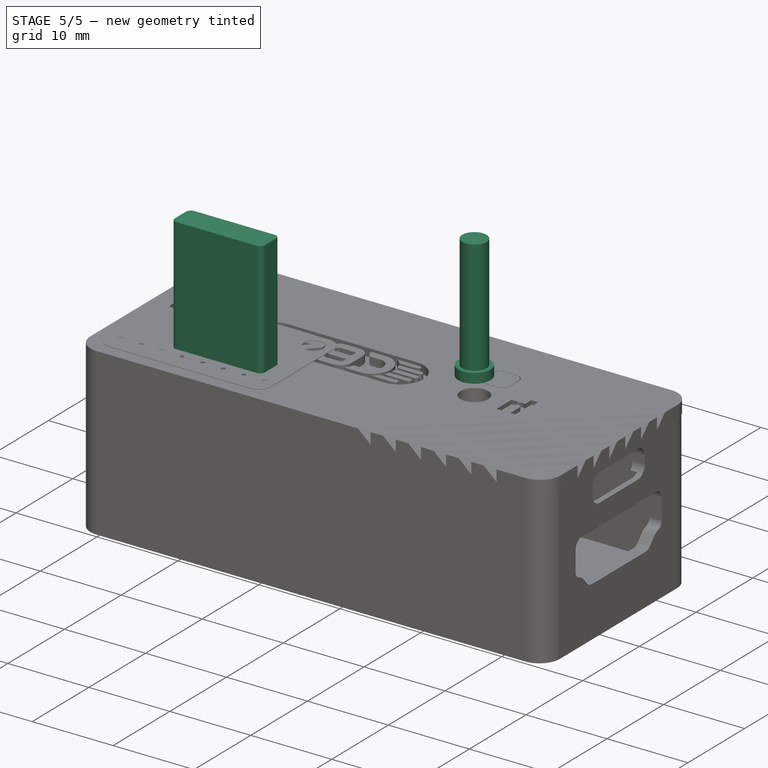
[diagram: stage 5 of 5 — iso view after this stage's code; geometry added in this stage tinted green]
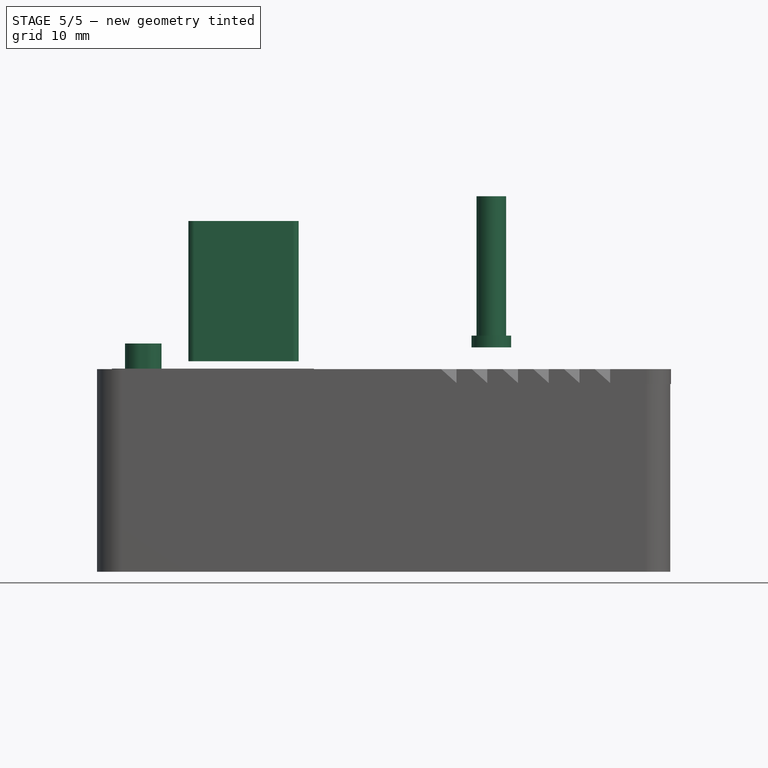
[diagram: stage 5 of 5 — front view after this stage's code; geometry added in this stage tinted green]
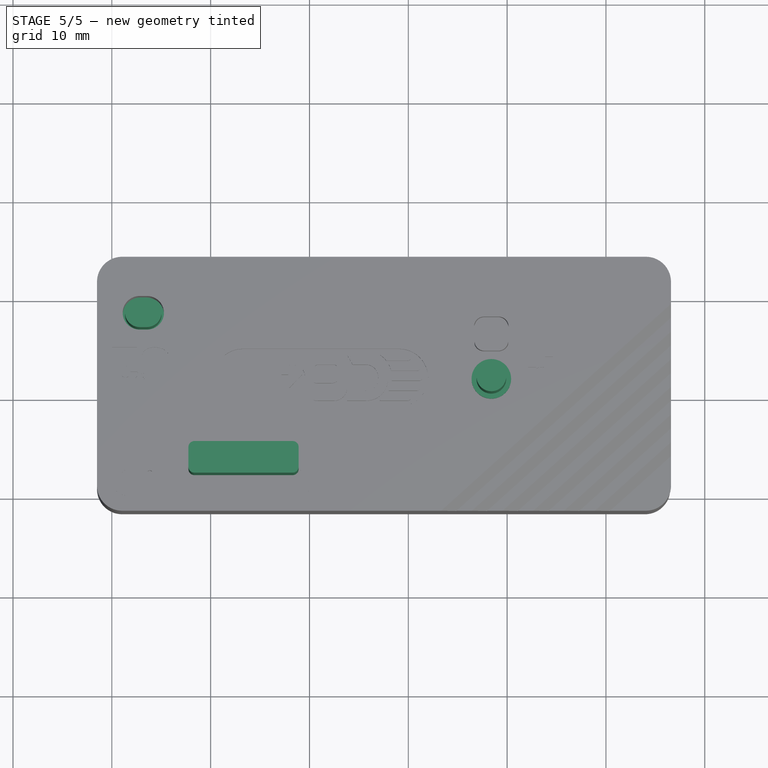
[diagram: stage 5 of 5 — top view after this stage's code; geometry added in this stage tinted green]
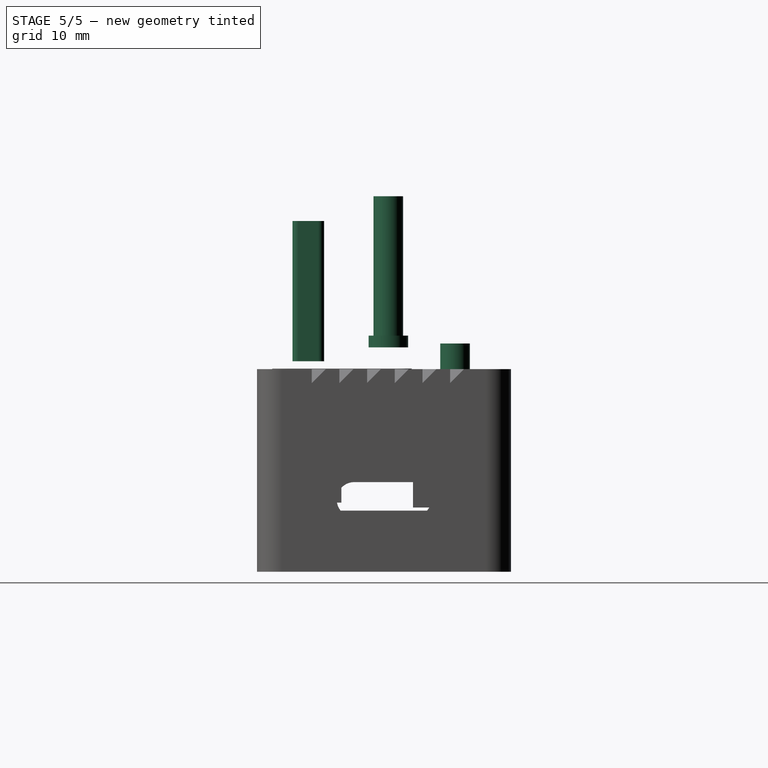
[diagram: stage 5 of 5 — right view after this stage's code; geometry added in this stage tinted green]
FEATURE [Part::Feature] Part__Feature  label="COMPOUND"
  shape: bbox 1.6 x 0.6001 x 0.8 mm, 58 faces, 4 solids (baked)
FEATURE [App::Part] LED_0603
  Group = -> [Part__Feature]
  Origin = -> Origin
  Placement = pos=(12.577,3.64,1.65) rot=(0.57735,-0.57735,-0.57735;2.0944rad)
FEATURE [Part::Feature] Part__Feature001  label="SOLID"
  shape: bbox 0.6 x 0.3 x 0.23 mm, 26 faces (baked)
FEATURE [App::Part] R_0201_0603Metric
  Group = -> [Part__Feature001]
  Origin = -> Origin001
  Placement = pos=(7.31195,15.33,1.65) rot=(0,0,1;1.5708rad)
FEATURE [Part::Feature] Part__Feature002  label="SOLID001"
  shape: bbox 0.6 x 0.3 x 0.3 mm, 28 faces (baked)
FEATURE [App::Part] C_0201_0603Metric
  Group = -> [Part__Feature002]
  Origin = -> Origin002
  Placement = pos=(20.387,9.53,1.65) rot=(0,0,1;3.14159rad)
FEATURE [Part::Feature] Part__Feature003  label="SOLID002"
  shape: bbox 1 x 0.5 x 0.35 mm, 26 faces (baked)
FEATURE [App::Part] R_0402_1005Metric
  Group = -> [Part__Feature003]
  Origin = -> Origin003
  Placement = pos=(18.387,3.11,1.65) rot=(0,0,1;1.5708rad)
FEATURE [Part::Feature] Part__Feature004  label="SOLID003"
  shape: bbox 0.6 x 0.3 x 0.3 mm, 28 faces (baked)
FEATURE [App::Part] C_0201_0603Metric001
  Group = -> [Part__Feature004]
  Origin = -> Origin004
  Placement = pos=(9.41195,5.855,1.65) rot=(0,0,-1;1.5708rad)
FEATURE [Part::Feature] Part__Feature005  label="SOLID004"
  shape: bbox 0.6 x 0.3 x 0.3 mm, 28 faces (baked)
FEATURE [App::Part] C_0201_0603Metric002
  Group = -> [Part__Feature005]
  Origin = -> Origin005
  Placement = pos=(8.01195,5.8448,1.65) rot=(0,0,-1;1.5708rad)
FEATURE [Part::Feature] Part__Feature006  label="COMPOUND001"
  shape: bbox 3.2 x 4.6 x 2.5 mm, 312 faces (baked)
FEATURE [App::Part] Button_3x4
  Group = -> [Part__Feature006]
  Origin = -> Origin006
  Placement = pos=(-4.23305,7.4922,1.65) rot=(0,0,-1;1.5708rad)
FEATURE [Part::Feature] Part__Feature007  label="SOLID005"
  shape: bbox 0.6 x 0.3 x 0.23 mm, 26 faces (baked)
FEATURE [App::Part] R_0201_0603Metric001
  Group = -> [Part__Feature007]
  Origin = -> Origin007
  Placement = pos=(28.527,13.2,1.65) rot=(0,0,1;3.14159rad)
FEATURE [Part::Feature] Part__Feature008  label="COMPOUND002"
  shape: bbox 1.6 x 0.6001 x 0.8 mm, 58 faces, 4 solids (baked)
FEATURE [App::Part] LED_0603001
  Group = -> [Part__Feature008]
  Origin = -> Origin008
  Placement = pos=(14.057,3.65,1.65) rot=(0.57735,-0.57735,-0.57735;2.0944rad)
FEATURE [Part::Feature] Part__Feature009  label="SOLID006"
  shape: bbox 0.6 x 0.3 x 0.23 mm, 26 faces (baked)
FEATURE [App::Part] R_0201_0603Metric002
  Group = -> [Part__Feature009]
  Origin = -> Origin009
  Placement = pos=(34.442,14.605,1.65) rot=(0,0,1;0rad)
FEATURE [Part::Feature] Part__Feature010  label="SOLID007"
  shape: bbox 0.6 x 0.3 x 0.3 mm, 28 faces (baked)
FEATURE [App::Part] C_0201_0603Metric003
  Group = -> [Part__Feature010]
  Origin = -> Origin010
  Placement = pos=(20.387,13.96,1.65) rot=(0,0,1;3.14159rad)
FEATURE [Part::Feature] Part__Feature011  label="COMPOUND003"
  shape: bbox 2.501 x 0.5851 x 1.011 mm, 120 faces, 6 solids (baked)
FEATURE [App::Part] ESD_HDMI_2510
  Group = -> [Part__Feature011]
  Origin = -> Origin011
  Placement = pos=(42.343,14.7348,1.65) rot=(0.57735,-0.57735,-0.57735;2.0944rad)
FEATURE [Part::Feature] Part__Feature012  label="SOLID008"
  shape: bbox 0.6 x 0.3 x 0.23 mm, 26 faces (baked)
FEATURE [App::Part] R_0201_0603Metric003
  Group = -> [Part__Feature012]
  Origin = -> Origin012
  Placement = pos=(7.31195,8.73,1.65) rot=(0,0,1;1.5708rad)
FEATURE [Part::Feature] Part__Feature013  label="SOLID009"
  shape: bbox 0.6 x 0.3 x 0.23 mm, 26 faces (baked)
FEATURE [App::Part] R_0201_0603Metric004
  Group = -> [Part__Feature013]
  Origin = -> Origin013
  Placement = pos=(31.442,14.605,1.65) rot=(0,0,1;3.14159rad)
FEATURE [Part::Feature] Part__Feature014  label="SOLID010"
  shape: bbox 0.6 x 0.3 x 0.3 mm, 28 faces (baked)
FEATURE [App::Part] C_0201_0603Metric004
  Group = -> [Part__Feature014]
  Origin = -> Origin014
  Placement = pos=(22.277,16.31,1.65) rot=(0,0,1;1.5708rad)
FEATURE [Part::Feature] Part__Feature015  label="SOLID011"
  shape: bbox 10.31 x 10.31 x 1.358 mm, 719 faces (baked)
FEATURE [App::Part] User_Library_QFN_88P35_EP  label="User Library-QFN-88P35_EP"
  Group = -> [Part__Feature015]
  Origin = -> Origin015
  Placement = pos=(13.612,12.1737,1.65) rot=(0,0,1;1.5708rad)
FEATURE [Part::Feature] Part__Feature016  label="SOLID012"
  shape: bbox 0.6 x 0.3 x 0.23 mm, 26 faces (baked)
FEATURE [App::Part] R_0201_0603Metric005
  Group = -> [Part__Feature016]
  Origin = -> Origin016
  Placement = pos=(7.31195,13.905,1.65) rot=(0,0,1;1.5708rad)
FEATURE [Part::Feature] Part__Feature017  label="SOLID013"
  shape: bbox 0.6 x 0.3 x 0.3 mm, 28 faces (baked)
FEATURE [App::Part] C_0201_0603Metric005
  Group = -> [Part__Feature017]
  Origin = -> Origin017
  Placement = pos=(13.762,5.855,1.65) rot=(0,0,-1;1.5708rad)
FEATURE [Part::Feature] Part__Feature018  label="SOLID014"
  shape: bbox 0.6 x 0.3 x 0.3 mm, 28 faces (baked)
FEATURE [App::Part] C_0201_0603Metric006
  Group = -> [Part__Feature018]
  Origin = -> Origin018
  Placement = pos=(8.71195,5.85,1.65) rot=(0,0,-1;1.5708rad)
FEATURE [Part::Feature] Part__Feature019  label="SOLID015"
  shape: bbox 0.6 x 0.3 x 0.3 mm, 28 faces (baked)
FEATURE [App::Part] C_0201_0603Metric007
  Group = -> [Part__Feature019]
  Origin = -> Origin019
  Placement = pos=(24.877,16.3,1.65) rot=(0,0,1;1.5708rad)
FEATURE [Part::Feature] Part__Feature020  label="COMPOUND004"
  shape: bbox 4.9 x 2 x 2.9 mm, 171 faces, 4 solids (baked)
FEATURE [App::Part] Pushbutton3x4x2
  Group = -> [Part__Feature020]
  Origin = -> Origin020
  Placement = pos=(38.3516,11.7485,1.65) rot=(0.57735,-0.57735,-0.57735;2.0944rad)
FEATURE [Part::Feature] Part__Feature021  label="SOLID016"
  shape: bbox 0.6 x 0.3 x 0.3 mm, 28 faces (baked)
FEATURE [App::Part] C_0201_0603Metric008
  Group = -> [Part__Feature021]
  Origin = -> Origin021
  Placement = pos=(7.31195,7.28,1.65) rot=(0,0,1;1.5708rad)
FEATURE [Part::Feature] Part__Feature022  label="SOLID017"
  shape: bbox 1 x 0.5 x 0.5 mm, 28 faces (baked)
FEATURE [App::Part] C_0402_1005Metric
  Group = -> [Part__Feature022]
  Origin = -> Origin022
  Placement = pos=(7.41695,12.26,1.65) rot=(0,0,1;1.5708rad)
FEATURE [Part::Feature] Part__Feature023  label="COMPOUND005"
  shape: bbox 2.501 x 0.5851 x 1.011 mm, 120 faces, 6 solids (baked)
FEATURE [App::Part] ESD_HDMI_2510001
  Group = -> [Part__Feature023]
  Origin = -> Origin023
  Placement = pos=(42.343,11.9154,1.65) rot=(0.57735,-0.57735,-0.57735;2.0944rad)
FEATURE [Part::Feature] Part__Feature024  label="SOLID018"
  shape: bbox 0.6 x 0.3 x 0.3 mm, 28 faces (baked)
FEATURE [App::Part] C_0201_0603Metric009
  Group = -> [Part__Feature024]
  Origin = -> Origin024
  Placement = pos=(20.387,10.56,1.65) rot=(0,0,1;3.14159rad)
FEATURE [Part::Feature] Part__Feature025  label="SOLID019"
  shape: bbox 1 x 0.5 x 0.5 mm, 28 faces (baked)
FEATURE [App::Part] C_0402_1005Metric001
  Group = -> [Part__Feature025]
  Origin = -> Origin025
  Placement = pos=(7.41695,10.4,1.65) rot=(0,0,-1;1.5708rad)
FEATURE [Part::Feature] Part__Feature026  label="SOLID020"
  shape: bbox 0.6 x 0.3 x 0.23 mm, 26 faces (baked)
FEATURE [App::Part] R_0201_0603Metric006
  Group = -> [Part__Feature026]
  Origin = -> Origin026
  Placement = pos=(13.037,5.855,1.65) rot=(0,0,-1;1.5708rad)
FEATURE [Part::Feature] Part__Feature027  label="SOLID021"
  shape: bbox 0.6 x 0.3 x 0.23 mm, 26 faces (baked)
FEATURE [App::Part] R_0201_0603Metric007
  Group = -> [Part__Feature027]
  Origin = -> Origin027
  Placement = pos=(40.707,16.87,1.65) rot=(0,0,1;1.5708rad)
FEATURE [Part::Feature] Part__Feature028  label="SOLID022"
  shape: bbox 0.6 x 0.3 x 0.23 mm, 26 faces (baked)
FEATURE [App::Part] R_0201_0603Metric008
  Group = -> [Part__Feature028]
  Origin = -> Origin028
  Placement = pos=(17.337,5.855,1.65) rot=(0,0,-1;1.5708rad)
FEATURE [Part::Feature] Part__Feature029  label="SOLID023"
  shape: bbox 0.6 x 0.3 x 0.23 mm, 26 faces (baked)
FEATURE [App::Part] R_0201_0603Metric009
  Group = -> [Part__Feature029]
  Origin = -> Origin029
  Placement = pos=(12.312,5.855,1.65) rot=(0,0,-1;1.5708rad)
FEATURE [Part::Feature] Part__Feature030  label="SOLID024"
  shape: bbox 0.6 x 0.3 x 0.23 mm, 26 faces (baked)
FEATURE [App::Part] R_0201_0603Metric010
  Group = -> [Part__Feature030]
  Origin = -> Origin030
  Placement = pos=(10.862,5.855,1.65) rot=(0,0,-1;1.5708rad)
FEATURE [Part::Feature] Part__Feature031  label="SOLID025"
  shape: bbox 5 x 5 x 0.77 mm, 254 faces (baked)
FEATURE [App::Part] QFN_40_1EP_5x5mm_P0_4mm_EP3_6x3_6mm  label="QFN-40-1EP_5x5mm_P0.4mm_EP3.6x3.6mm"
  Group = -> [Part__Feature031]
  Origin = -> Origin031
  Placement = pos=(24.317,11.76,1.65) rot=(0,0,1;0rad)
FEATURE [Part::Feature] Part__Feature032  label="SOLID026"
  shape: bbox 0.6 x 0.3 x 0.23 mm, 26 faces (baked)
FEATURE [App::Part] R_0201_0603Metric011
  Group = -> [Part__Feature032]
  Origin = -> Origin032
  Placement = pos=(16.637,5.855,1.65) rot=(0,0,-1;1.5708rad)
FEATURE [Part::Feature] Part__Feature033  label="SOLID027"
  shape: bbox 6 x 4.9 x 1.1 mm, 56 faces (baked)
FEATURE [App::Part] DFN_8_1EP_6x5mm_P1_27mm_EP2x2mm  label="DFN-8-1EP_6x5mm_P1.27mm_EP2x2mm"
  Group = -> [Part__Feature033]
  Origin = -> Origin033
  Placement = pos=(32.942,11.425,1.65) rot=(0,0,1;3.14159rad)
FEATURE [Part::Feature] Part__Feature034  label="COMPOUND006"
  shape: bbox 1.6 x 0.6001 x 0.8 mm, 58 faces, 4 solids (baked)
FEATURE [App::Part] LED_0603002
  Group = -> [Part__Feature034]
  Origin = -> Origin034
  Placement = pos=(11.112,3.655,1.65) rot=(0.57735,-0.57735,-0.57735;2.0944rad)
FEATURE [Part::Feature] Part__Feature035  label="SOLID028"
  shape: bbox 0.6 x 0.3 x 0.23 mm, 26 faces (baked)
FEATURE [App::Part] R_0201_0603Metric012
  Group = -> [Part__Feature035]
  Origin = -> Origin035
  Placement = pos=(11.587,5.855,1.65) rot=(0,0,-1;1.5708rad)
FEATURE [Part::Feature] Part__Feature036  label="SOLID029"
  shape: bbox 0.6 x 0.3 x 0.3 mm, 28 faces (baked)
FEATURE [App::Part] C_0201_0603Metric010
  Group = -> [Part__Feature036]
  Origin = -> Origin036
  Placement = pos=(23.166,16.3,1.65) rot=(0,0,1;1.5708rad)
FEATURE [Part::Feature] Part__Feature037  label="SOLID030"
  shape: bbox 0.6 x 0.3 x 0.23 mm, 26 faces (baked)
FEATURE [App::Part] R_0201_0603Metric013
  Group = -> [Part__Feature037]
  Origin = -> Origin037
  Placement = pos=(28.527,12.49,1.65) rot=(0,0,1;3.14159rad)
FEATURE [Part::Feature] Part__Feature038  label="COMPOUND007"
  shape: bbox 1.437 x 1.347 x 0.69 mm, 17 faces, 10 solids (baked)
FEATURE [App::Part] MAX98357BEWL_  label="MAX98357BEWL+"
  Group = -> [Part__Feature038]
  Origin = -> Origin038
  Placement = pos=(20.377,16.12,1.55) rot=(0,0,1;1.5708rad)
FEATURE [Part::Feature] Part__Feature039  label="SOLID031"
  shape: bbox 0.6 x 0.3 x 0.3 mm, 28 faces (baked)
FEATURE [App::Part] C_0201_0603Metric011
  Group = -> [Part__Feature039]
  Origin = -> Origin039
  Placement = pos=(28.527,13.91,1.65) rot=(0,0,1;0rad)
FEATURE [Part::Feature] Part__Feature040  label="SOLID032"
  shape: bbox 0.6 x 0.3 x 0.23 mm, 26 faces (baked)
FEATURE [App::Part] R_0201_0603Metric014
  Group = -> [Part__Feature040]
  Origin = -> Origin040
  Placement = pos=(35.942,14.605,1.65) rot=(0,0,1;3.14159rad)
FEATURE [Part::Feature] Part__Feature041  label="SOLID033"
  shape: bbox 0.6 x 0.3 x 0.23 mm, 26 faces (baked)
FEATURE [App::Part] R_0201_0603Metric015
  Group = -> [Part__Feature041]
  Origin = -> Origin041
  Placement = pos=(15.212,5.855,1.65) rot=(0,0,-1;1.5708rad)
FEATURE [Part::Feature] Part__Feature042  label="SOLID034"
  shape: bbox 0.6 x 0.3 x 0.3 mm, 28 faces (baked)
FEATURE [App::Part] C_0201_0603Metric012
  Group = -> [Part__Feature042]
  Origin = -> Origin042
  Placement = pos=(10.137,5.85,1.65) rot=(0,0,-1;1.5708rad)
FEATURE [Part::Feature] Part__Feature043  label="SOLID035"
  shape: bbox 0.6 x 0.3 x 0.3 mm, 28 faces (baked)
FEATURE [App::Part] C_0201_0603Metric013
  Group = -> [Part__Feature043]
  Origin = -> Origin043
  Placement = pos=(14.512,5.855,1.65) rot=(0,0,-1;1.5708rad)
FEATURE [Part::Feature] Part__Feature044  label="COMPOUND008"
  shape: bbox 1.6 x 0.6001 x 0.8 mm, 58 faces, 4 solids (baked)
FEATURE [App::Part] LED_0603003
  Group = -> [Part__Feature044]
  Origin = -> Origin044
  Placement = pos=(9.64695,3.655,1.65) rot=(0.57735,-0.57735,-0.57735;2.0944rad)
FEATURE [Part::Feature] Part__Feature045  label="SOLID036"
  shape: bbox 0.6 x 0.3 x 0.3 mm, 28 faces (baked)
FEATURE [App::Part] C_0201_0603Metric014
  Group = -> [Part__Feature045]
  Origin = -> Origin045
  Placement = pos=(20.337,12.32,1.65) rot=(0,0,1;3.14159rad)
FEATURE [Part::Feature] Part__Feature046  label="COMPOUND009"
  shape: bbox 15.05 x 8.392 x 11.94 mm, 3425 faces, 21 solids (baked)
FEATURE [App::Part] HDMI_A_19P  label="HDMI-A-19P"
  Group = -> [Part__Feature046]
  Origin = -> Origin046
  Placement = pos=(53.887,11.3,7.65) rot=(0.57735,0.57735,0.57735;2.0944rad)
FEATURE [Part::Feature] Part__Feature047  label="COMPOUND010"
  shape: bbox 2.2 x 2 x 0.84 mm, 127 faces, 10 solids (baked)
FEATURE [App::Part] LED_2020
  Group = -> [Part__Feature047]
  Origin = -> Origin047
  Placement = pos=(38.357,16.28,1.65) rot=(0,0,1;1.5708rad)
FEATURE [Part::Feature] Part__Feature048  label="SOLID037"
  shape: bbox 0.6 x 0.3 x 0.23 mm, 26 faces (baked)
FEATURE [App::Part] R_0201_0603Metric016
  Group = -> [Part__Feature048]
  Origin = -> Origin048
  Placement = pos=(20.387,14.78,1.65) rot=(0,0,1;0rad)
FEATURE [Part::Feature] Part__Feature049  label="SOLID038"
  shape: bbox 8.94 x 4.361 x 7.58 mm, 241 faces (baked)
FEATURE [App::Part] USB_TYPE_C20  label="USB-TYPE-C20"
  Group = -> [Part__Feature049]
  Origin = -> Origin049
  Placement = pos=(-1.63305,11.32,1.65) rot=(0.57735,0.57735,0.57735;2.0944rad)
FEATURE [Part::Feature] Part__Feature050  label="SOLID039"
  shape: bbox 23.5 x 5.9 x 2 mm, 1035 faces (baked)
FEATURE [App::Part] FPC40
  Group = -> [Part__Feature050]
  Origin = -> Origin050
  Placement = pos=(31.1924,7.16572,1.65) rot=(0,0,1;0rad)
FEATURE [Part::Feature] Part__Feature051  label="COMPOUND011"
  shape: bbox 1.6 x 0.6001 x 0.8 mm, 58 faces, 4 solids (baked)
FEATURE [App::Part] LED_0603004
  Group = -> [Part__Feature051]
  Origin = -> Origin051
  Placement = pos=(16.977,3.65,1.65) rot=(0.57735,-0.57735,-0.57735;2.0944rad)
FEATURE [Part::Feature] Part__Feature052  label="SOLID040"
  shape: bbox 0.6 x 0.3 x 0.23 mm, 26 faces (baked)
FEATURE [App::Part] R_0201_0603Metric017
  Group = -> [Part__Feature052]
  Origin = -> Origin052
  Placement = pos=(40.727,15.46,1.65) rot=(0,0,1;1.5708rad)
FEATURE [Part::Feature] Part__Feature053  label="SOLID041"
  shape: bbox 0.6 x 0.3 x 0.3 mm, 28 faces (baked)
FEATURE [App::Part] C_0201_0603Metric015
  Group = -> [Part__Feature053]
  Origin = -> Origin053
  Placement = pos=(20.387,13.12,1.65) rot=(0,0,1;3.14159rad)
FEATURE [Part::Feature] Part__Feature054  label="SOLID042"
  shape: bbox 0.6 x 0.3 x 0.23 mm, 26 faces (baked)
FEATURE [App::Part] R_0201_0603Metric018
  Group = -> [Part__Feature054]
  Origin = -> Origin054
  Placement = pos=(29.942,14.605,1.65) rot=(0,0,1;3.14159rad)
FEATURE [Part::Feature] Part__Feature055  label="SOLID043"
  shape: bbox 0.6 x 0.3 x 0.23 mm, 26 faces (baked)
FEATURE [App::Part] R_0201_0603Metric019
  Group = -> [Part__Feature055]
  Origin = -> Origin055
  Placement = pos=(32.942,14.605,1.65) rot=(0,0,1;0rad)
FEATURE [Part::Feature] Part__Feature056  label="SOLID044"
  shape: bbox 2 x 1.25 x 1.25 mm, 28 faces (baked)
FEATURE [App::Part] L_0805_2012Metric
  Group = -> [Part__Feature056]
  Origin = -> Origin056
  Placement = pos=(28.3816,10.39,1.65) rot=(0,0,1;1.5708rad)
FEATURE [Part::Feature] Part__Feature057  label="COMPOUND012"
  shape: bbox 3.2 x 4.6 x 2.5 mm, 312 faces (baked)
FEATURE [App::Part] Button_3x4001
  Group = -> [Part__Feature057]
  Origin = -> Origin057
  Placement = pos=(10.567,15.07,1.65) rot=(0,0,1;1.5708rad)
FEATURE [Part::Feature] Part__Feature058  label="COMPOUND013"
  shape: bbox 2.004 x 1.604 x 0.4042 mm, 93 faces, 7 solids (baked)
FEATURE [App::Part] Crystal_2016
  Group = -> [Part__Feature058]
  Origin = -> Origin058
  Placement = pos=(26.977,16.14,1.65) rot=(0,0,1;0rad)
FEATURE [Part::Feature] Part__Feature059  label="SOLID045"
  shape: bbox 0.6 x 0.3 x 0.23 mm, 26 faces (baked)
FEATURE [App::Part] R_0201_0603Metric020
  Group = -> [Part__Feature059]
  Origin = -> Origin059
  Placement = pos=(15.912,5.855,1.65) rot=(0,0,-1;1.5708rad)
FEATURE [Part::Feature] Part__Feature060  label="SOLID046"
  shape: bbox 0.6 x 0.3 x 0.3 mm, 28 faces (baked)
FEATURE [App::Part] C_0201_0603Metric016
  Group = -> [Part__Feature060]
  Origin = -> Origin060
  Placement = pos=(7.31195,5.8554,1.65) rot=(0,0,-1;1.5708rad)
FEATURE [Part::Feature] Part__Feature061  label="COMPOUND014"
  shape: bbox 1.6 x 0.6001 x 0.8 mm, 58 faces, 4 solids (baked)
FEATURE [App::Part] LED_0603005
  Group = -> [Part__Feature061]
  Origin = -> Origin061
  Placement = pos=(15.517,3.6425,1.65) rot=(0.57735,-0.57735,-0.57735;2.0944rad)
FEATURE [Part::Feature] Part__Feature062  label="SOLID047"
  shape: bbox 0.6 x 0.3 x 0.23 mm, 26 faces (baked)
FEATURE [App::Part] R_0201_0603Metric021
  Group = -> [Part__Feature062]
  Origin = -> Origin062
  Placement = pos=(20.387,11.53,1.65) rot=(0,0,1;3.14159rad)
FEATURE [Part::Feature] Part__Feature063  label="SOLID048"
  shape: bbox 0.6 x 0.3 x 0.3 mm, 28 faces (baked)
FEATURE [App::Part] C_0201_0603Metric017
  Group = -> [Part__Feature063]
  Origin = -> Origin063
  Placement = pos=(24.017,16.3,1.65) rot=(0,0,1;1.5708rad)
FEATURE [Part::Feature] Part__Feature064  label="SOLID049"
  shape: bbox 0.6 x 0.3 x 0.23 mm, 26 faces (baked)
FEATURE [App::Part] R_0201_0603Metric022
  Group = -> [Part__Feature064]
  Origin = -> Origin064
  Placement = pos=(39.767,13.86,-0.05) rot=(0,1,0;3.14159rad)
FEATURE [Part::Feature] Part__Feature065  label="SOLID050"
  shape: bbox 3.494 x 3.773 x 1.55 mm, 124 faces (baked)
FEATURE [App::Part] SOT_23_6  label="SOT-23-6"
  Group = -> [Part__Feature065]
  Origin = -> Origin065
  Placement = pos=(37.1524,8.08505,-0.05) rot=(1,0,0;3.14159rad)
FEATURE [Part::Feature] Part__Feature066  label="SOLID051"
  shape: bbox 2.506 x 2.463 x 1.1 mm, 67 faces (baked)
FEATURE [App::Part] D_SOD_323  label="D_SOD-323"
  Group = -> [Part__Feature066]
  Origin = -> Origin066
  Placement = pos=(37.177,3.91,-0.05) rot=(0,1,0;3.14159rad)
FEATURE [Part::Feature] Part__Feature067  label="SOLID052"
  shape: bbox 0.6 x 0.3 x 0.3 mm, 28 faces (baked)
FEATURE [App::Part] C_0201_0603Metric018
  Group = -> [Part__Feature067]
  Origin = -> Origin067
  Placement = pos=(9.53695,16.755,-0.05) rot=(1,0,0;3.14159rad)
FEATURE [Part::Feature] Part__Feature068  label="SOLID053"
  shape: bbox 0.6 x 0.3 x 0.3 mm, 28 faces (baked)
FEATURE [App::Part] C_0201_0603Metric019
  Group = -> [Part__Feature068]
  Origin = -> Origin068
  Placement = pos=(17.217,15.63,-0.05) rot=(0.707107,-0.707107,0;3.14159rad)
FEATURE [Part::Feature] Part__Feature069  label="SOLID054"
  shape: bbox 0.6 x 0.3 x 0.23 mm, 26 faces (baked)
FEATURE [App::Part] R_0201_0603Metric023
  Group = -> [Part__Feature069]
  Origin = -> Origin069
  Placement = pos=(42.837,14.205,-0.05) rot=(1,0,0;3.14159rad)
FEATURE [Part::Feature] Part__Feature070  label="SOLID055"
  shape: bbox 0.6 x 0.3 x 0.23 mm, 26 faces (baked)
FEATURE [App::Part] R_0201_0603Metric024
  Group = -> [Part__Feature070]
  Origin = -> Origin070
  Placement = pos=(42.84,9.9,-0.05) rot=(0,1,0;3.14159rad)
FEATURE [Part::Feature] Part__Feature071  label="SOLID056"
  shape: bbox 1.6 x 0.8 x 0.45 mm, 26 faces (baked)
FEATURE [App::Part] R_0603_1608Metric
  Group = -> [Part__Feature071]
  Origin = -> Origin071
  Placement = pos=(30.497,11.7555,-0.05) rot=(0.707107,-0.707107,0;3.14159rad)
FEATURE [Part::Feature] Part__Feature072  label="SOLID057"
  shape: bbox 0.6 x 0.3 x 0.23 mm, 26 faces (baked)
FEATURE [App::Part] R_0201_0603Metric025
  Group = -> [Part__Feature072]
  Origin = -> Origin072
  Placement = pos=(42.837,9.115,-0.05) rot=(0,1,0;3.14159rad)
FEATURE [Part::Feature] Part__Feature073  label="SOLID058"
  shape: bbox 1 x 0.5 x 0.5 mm, 28 faces (baked)
FEATURE [App::Part] C_0402_1005Metric002
  Group = -> [Part__Feature073]
  Origin = -> Origin073
  Placement = pos=(27.627,7.47,-0.05) rot=(0.707107,-0.707107,0;3.14159rad)
FEATURE [Part::Feature] Part__Feature074  label="COMPOUND015"
  shape: bbox 12.69 x 12.06 x 1.456 mm, 410 faces (baked)
FEATURE [App::Part] microSD_HC_Molex_104031_0811  label="microSD_HC_Molex_104031-0811"
  Group = -> [Part__Feature074]
  Origin = -> Origin074
  Placement = pos=(8.31195,-34.345,-0.05) rot=(0.707107,0.707107,0;3.14159rad)
FEATURE [Part::Feature] Part__Feature075  label="SOLID059"
  shape: bbox 0.6 x 0.3 x 0.23 mm, 26 faces (baked)
FEATURE [App::Part] R_0201_0603Metric026
  Group = -> [Part__Feature075]
  Origin = -> Origin075
  Placement = pos=(39.777,14.58,-0.05) rot=(0,1,0;3.14159rad)
FEATURE [Part::Feature] Part__Feature076  label="SOLID060"
  shape: bbox 0.6 x 0.3 x 0.23 mm, 26 faces (baked)
FEATURE [App::Part] R_0201_0603Metric027
  Group = -> [Part__Feature076]
  Origin = -> Origin076
  Placement = pos=(48.0929,11.5598,-0.05) rot=(1,0,0;3.14159rad)
FEATURE [Part::Feature] Part__Feature077  label="COMPOUND016"
  shape: bbox 2.004 x 1.604 x 0.4042 mm, 93 faces, 7 solids (baked)
FEATURE [App::Part] Crystal_2016001
  Group = -> [Part__Feature077]
  Origin = -> Origin077
  Placement = pos=(16.057,12.77,-0.05) rot=(0.707107,0.707107,0;3.14159rad)
FEATURE [Part::Feature] Part__Feature078  label="SOLID061"
  shape: bbox 0.6 x 0.3 x 0.23 mm, 26 faces (baked)
FEATURE [App::Part] R_0201_0603Metric028
  Group = -> [Part__Feature078]
  Origin = -> Origin078
  Placement = pos=(14.327,3.92,-0.05) rot=(0.707107,-0.707107,0;3.14159rad)
FEATURE [Part::Feature] Part__Feature079  label="SOLID062"
  shape: bbox 2 x 1.25 x 1.25 mm, 28 faces (baked)
FEATURE [App::Part] L_0805_2012Metric001
  Group = -> [Part__Feature079]
  Origin = -> Origin079
  Placement = pos=(33.9768,11.5015,-0.05) rot=(0.707107,-0.707107,0;3.14159rad)
FEATURE [Part::Feature] Part__Feature080  label="SOLID063"
  shape: bbox 0.6 x 0.3 x 0.3 mm, 28 faces (baked)
FEATURE [App::Part] C_0201_0603Metric020
  Group = -> [Part__Feature080]
  Origin = -> Origin080
  Placement = pos=(18.477,3.92,-0.05) rot=(0.707107,0.707107,0;3.14159rad)
FEATURE [Part::Feature] Part__Feature081  label="SOLID064"
  shape: bbox 1 x 0.5 x 0.5 mm, 28 faces (baked)
FEATURE [App::Part] C_0402_1005Metric003
  Group = -> [Part__Feature081]
  Origin = -> Origin081
  Placement = pos=(42.937,10.8007,-0.05) rot=(0,1,0;3.14159rad)
FEATURE [Part::Feature] Part__Feature082  label="SOLID065"
  shape: bbox 2 x 1.25 x 1.25 mm, 28 faces (baked)
FEATURE [App::Part] L_0805_2012Metric002
  Group = -> [Part__Feature082]
  Origin = -> Origin082
  Placement = pos=(33.9514,15.0723,-0.05) rot=(0.707107,-0.707107,0;3.14159rad)
FEATURE [Part::Feature] Part__Feature083  label="SOLID066"
  shape: bbox 5.436 x 5.436 x 0.95 mm, 186 faces (baked)
FEATURE [App::Part] MSOP_10_3x3mm_P0_5mm  label="MSOP-10_3x3mm_P0.5mm"
  Group = -> [Part__Feature083]
  Origin = -> Origin083
  Placement = pos=(16.307,9.62,-0.05) rot=(0,1,0;3.14159rad)
FEATURE [Part::Feature] Part__Feature084  label="SOLID067"
  shape: bbox 0.6 x 0.3 x 0.3 mm, 28 faces (baked)
FEATURE [App::Part] C_0201_0603Metric021
  Group = -> [Part__Feature084]
  Origin = -> Origin084
  Placement = pos=(27.637,12.45,-0.05) rot=(0.707107,0.707107,0;3.14159rad)
FEATURE [Part::Feature] Part__Feature085  label="SOLID068"
  shape: bbox 0.6 x 0.3 x 0.3 mm, 28 faces (baked)
FEATURE [App::Part] C_0201_0603Metric022
  Group = -> [Part__Feature085]
  Origin = -> Origin085
  Placement = pos=(25.337,16.12,-0.05) rot=(0.707107,0.707107,0;3.14159rad)
FEATURE [Part::Feature] Part__Feature086  label="SOLID069"
  shape: bbox 0.6 x 0.3 x 0.23 mm, 26 faces (baked)
FEATURE [App::Part] R_0201_0603Metric029
  Group = -> [Part__Feature086]
  Origin = -> Origin086
  Placement = pos=(24.147,7.38,-0.05) rot=(0.707107,-0.707107,0;3.14159rad)
FEATURE [Part::Feature] Part__Feature087  label="SOLID070"
  shape: bbox 1.6 x 0.8 x 0.8 mm, 28 faces (baked)
FEATURE [App::Part] C_0603_1608Metric
  Group = -> [Part__Feature087]
  Origin = -> Origin087
  Placement = pos=(40.527,16.25,-0.05) rot=(1,0,0;3.14159rad)
FEATURE [Part::Feature] Part__Feature088  label="SOLID071"
  shape: bbox 0.6 x 0.3 x 0.3 mm, 28 faces (baked)
FEATURE [App::Part] C_0201_0603Metric023
  Group = -> [Part__Feature088]
  Origin = -> Origin088
  Placement = pos=(1.86695,18.54,-0.05) rot=(0,1,0;3.14159rad)
FEATURE [Part::Feature] Part__Feature089  label="SOLID072"
  shape: bbox 0.6 x 0.3 x 0.3 mm, 28 faces (baked)
FEATURE [App::Part] C_0201_0603Metric024
  Group = -> [Part__Feature089]
  Origin = -> Origin089
  Placement = pos=(49.5407,16.081,-0.05) rot=(0,1,0;3.14159rad)
FEATURE [Part::Feature] Part__Feature090  label="SOLID073"
  shape: bbox 1 x 0.5 x 0.5 mm, 28 faces (baked)
FEATURE [App::Part] C_0402_1005Metric004
  Group = -> [Part__Feature090]
  Origin = -> Origin090
  Placement = pos=(27.627,16.01,-0.05) rot=(0.707107,0.707107,0;3.14159rad)
FEATURE [Part::Feature] Part__Feature091  label="SOLID074"
  shape: bbox 0.6 x 0.3 x 0.3 mm, 28 faces (baked)
FEATURE [App::Part] C_0201_0603Metric025
  Group = -> [Part__Feature091]
  Origin = -> Origin091
  Placement = pos=(49.5407,11.7376,-0.05) rot=(0,1,0;3.14159rad)
FEATURE [Part::Feature] Part__Feature092  label="SOLID075"
  shape: bbox 0.6 x 0.3 x 0.3 mm, 28 faces (baked)
FEATURE [App::Part] C_0201_0603Metric026
  Group = -> [Part__Feature092]
  Origin = -> Origin092
  Placement = pos=(16.387,7.32,-0.05) rot=(0,1,0;3.14159rad)
FEATURE [Part::Feature] Part__Feature093  label="SOLID076"
  shape: bbox 0.6 x 0.3 x 0.3 mm, 28 faces (baked)
FEATURE [App::Part] C_0201_0603Metric027
  Group = -> [Part__Feature093]
  Origin = -> Origin093
  Placement = pos=(49.5407,15.319,-0.05) rot=(0,1,0;3.14159rad)
FEATURE [Part::Feature] Part__Feature094  label="SOLID077"
  shape: bbox 0.6 x 0.3 x 0.3 mm, 28 faces (baked)
FEATURE [App::Part] C_0201_0603Metric028
  Group = -> [Part__Feature094]
  Origin = -> Origin094
  Placement = pos=(49.5407,9.7564,-0.05) rot=(0,1,0;3.14159rad)
FEATURE [Part::Feature] Part__Feature095  label="SOLID078"
  shape: bbox 1.6 x 0.8 x 0.45 mm, 26 faces (baked)
FEATURE [App::Part] R_0603_1608Metric001
  Group = -> [Part__Feature095]
  Origin = -> Origin095
  Placement = pos=(30.624,15.3263,-0.05) rot=(0.707107,0.707107,0;3.14159rad)
FEATURE [Part::Feature] Part__Feature096  label="SOLID079"
  shape: bbox 0.6 x 0.3 x 0.23 mm, 26 faces (baked)
FEATURE [App::Part] R_0201_0603Metric030
  Group = -> [Part__Feature096]
  Origin = -> Origin096
  Placement = pos=(1.59695,17.49,-0.05) rot=(0.707107,0.707107,0;3.14159rad)
FEATURE [Part::Feature] Part__Feature097  label="SOLID080"
  shape: bbox 0.6 x 0.3 x 0.3 mm, 28 faces (baked)
FEATURE [App::Part] C_0201_0603Metric029
  Group = -> [Part__Feature097]
  Origin = -> Origin097
  Placement = pos=(24.607,3.92,-0.05) rot=(0.707107,0.707107,0;3.14159rad)
FEATURE [Part::Feature] Part__Feature098  label="SOLID081"
  shape: bbox 0.6 x 0.3 x 0.23 mm, 26 faces (baked)
FEATURE [App::Part] R_0201_0603Metric031
  Group = -> [Part__Feature098]
  Origin = -> Origin098
  Placement = pos=(6.82695,3.3,-0.05) rot=(0,1,0;3.14159rad)
FEATURE [Part::Feature] Part__Feature099  label="SOLID082"
  shape: bbox 0.6 x 0.3 x 0.23 mm, 26 faces (baked)
FEATURE [App::Part] R_0201_0603Metric032
  Group = -> [Part__Feature099]
  Origin = -> Origin099
  Placement = pos=(38.56,18.175,-0.05) rot=(0.707107,-0.707107,0;3.14159rad)
FEATURE [Part::Feature] Part__Feature100  label="SOLID083"
  shape: bbox 3.494 x 3.773 x 1.55 mm, 109 faces (baked)
FEATURE [App::Part] SOT_23_5  label="SOT-23-5"
  Group = -> [Part__Feature100]
  Origin = -> Origin100
  Placement = pos=(37.1424,15.2851,-0.05) rot=(1,0,0;3.14159rad)
FEATURE [Part::Feature] Part__Feature101  label="SOLID084"
  shape: bbox 0.6 x 0.3 x 0.23 mm, 26 faces (baked)
FEATURE [App::Part] R_0201_0603Metric033
  Group = -> [Part__Feature101]
  Origin = -> Origin101
  Placement = pos=(49.019,4.04999,-0.05) rot=(0.707107,-0.707107,0;3.14159rad)
FEATURE [Part::Feature] Part__Feature102  label="SOLID085"
  shape: bbox 0.6 x 0.3 x 0.23 mm, 26 faces (baked)
FEATURE [App::Part] R_0201_0603Metric034
  Group = -> [Part__Feature102]
  Origin = -> Origin102
  Placement = pos=(42.837,13.4364,-0.05) rot=(1,0,0;3.14159rad)
FEATURE [Part::Feature] Part__Feature103  label="SOLID086"
  shape: bbox 0.6 x 0.3 x 0.23 mm, 26 faces (baked)
FEATURE [App::Part] R_0201_0603Metric035
  Group = -> [Part__Feature103]
  Origin = -> Origin103
  Placement = pos=(1.87695,19.295,-0.05) rot=(0,1,0;3.14159rad)
FEATURE [Part::Feature] Part__Feature104  label="SOLID087"
  shape: bbox 0.6 x 0.3 x 0.3 mm, 28 faces (baked)
FEATURE [App::Part] C_0201_0603Metric030
  Group = -> [Part__Feature104]
  Origin = -> Origin104
  Placement = pos=(42.837,12.6679,-0.05) rot=(1,0,0;3.14159rad)
FEATURE [Part::Feature] Part__Feature105  label="SOLID088"
  shape: bbox 0.6 x 0.3 x 0.23 mm, 26 faces (baked)
FEATURE [App::Part] R_0201_0603Metric036
  Group = -> [Part__Feature105]
  Origin = -> Origin105
  Placement = pos=(4.02695,3.3,-0.05) rot=(0,1,0;3.14159rad)
FEATURE [Part::Feature] Part__Feature106  label="SOLID089"
  shape: bbox 0.6 x 0.3 x 0.23 mm, 26 faces (baked)
FEATURE [App::Part] R_0201_0603Metric037
  Group = -> [Part__Feature106]
  Origin = -> Origin106
  Placement = pos=(39.407,8.46,-0.05) rot=(0.707107,-0.707107,0;3.14159rad)
FEATURE [Part::Feature] Part__Feature107  label="SOLID090"
  shape: bbox 0.6 x 0.3 x 0.3 mm, 28 faces (baked)
FEATURE [App::Part] C_0201_0603Metric031
  Group = -> [Part__Feature107]
  Origin = -> Origin107
  Placement = pos=(23.387,7.39,-0.05) rot=(0.707107,-0.707107,0;3.14159rad)
FEATURE [Part::Feature] Part__Feature108  label="SOLID091"
  shape: bbox 0.6 x 0.3 x 0.23 mm, 26 faces (baked)
FEATURE [App::Part] R_0201_0603Metric038
  Group = -> [Part__Feature108]
  Origin = -> Origin108
  Placement = pos=(40.107,8.46,-0.05) rot=(0.707107,0.707107,0;3.14159rad)
FEATURE [Part::Feature] Part__Feature109  label="SOLID092"
  shape: bbox 0.6 x 0.3 x 0.3 mm, 28 faces (baked)
FEATURE [App::Part] C_0201_0603Metric032
  Group = -> [Part__Feature109]
  Origin = -> Origin109
  Placement = pos=(14.707,14.9,-0.05) rot=(0.707107,-0.707107,0;3.14159rad)
FEATURE [Part::Feature] Part__Feature110  label="SOLID093"
  shape: bbox 0.6 x 0.3 x 0.3 mm, 28 faces (baked)
FEATURE [App::Part] C_0201_0603Metric033
  Group = -> [Part__Feature110]
  Origin = -> Origin110
  Placement = pos=(10.962,16.755,-0.05) rot=(1,0,0;3.14159rad)
FEATURE [Part::Feature] Part__Feature111  label="SOLID094"
  shape: bbox 2.54 x 50.8 x 11.54 mm, 484 faces (baked)
FEATURE [App::Part] PinHeader_1x20_P2_54mm_Vertical  label="PinHeader_1x20_P2.54mm_Vertical"
  Group = -> [Part__Feature111]
  Origin = -> Origin111
  Placement = pos=(2.60695,1.14002,-0.05) rot=(0.707107,-0.707107,0;3.14159rad)
FEATURE [Part::Feature] Part__Feature112  label="SOLID095"
  shape: bbox 0.6 x 0.3 x 0.23 mm, 26 faces (baked)
FEATURE [App::Part] R_0201_0603Metric039
  Group = -> [Part__Feature112]
  Origin = -> Origin112
  Placement = pos=(5.42695,3.3,-0.05) rot=(1,0,0;3.14159rad)
FEATURE [Part::Feature] Part__Feature113  label="COMPOUND017"
  shape: bbox 2.004 x 1.604 x 0.4042 mm, 93 faces, 7 solids (baked)
FEATURE [App::Part] Crystal_2016002
  Group = -> [Part__Feature113]
  Origin = -> Origin113
  Placement = pos=(16.267,4.16,-0.05) rot=(1,0,0;3.14159rad)
FEATURE [Part::Feature] Part__Feature114  label="SOLID096"
  shape: bbox 0.6 x 0.3 x 0.3 mm, 28 faces (baked)
FEATURE [App::Part] C_0201_0603Metric034
  Group = -> [Part__Feature114]
  Origin = -> Origin114
  Placement = pos=(30.587,8.9986,-0.05) rot=(0,1,0;3.14159rad)
FEATURE [Part::Feature] Part__Feature115  label="SOLID097"
  shape: bbox 0.6 x 0.3 x 0.3 mm, 28 faces (baked)
FEATURE [App::Part] C_0201_0603Metric035
  Group = -> [Part__Feature115]
  Origin = -> Origin115
  Placement = pos=(26.427,7.36,-0.05) rot=(0.707107,-0.707107,0;3.14159rad)
FEATURE [Part::Feature] Part__Feature116  label="SOLID098"
  shape: bbox 0.6 x 0.3 x 0.23 mm, 26 faces (baked)
FEATURE [App::Part] R_0201_0603Metric040
  Group = -> [Part__Feature116]
  Origin = -> Origin116
  Placement = pos=(39.757,11.01,-0.05) rot=(0,1,0;3.14159rad)
FEATURE [Part::Feature] Part__Feature117  label="SOLID099"
  shape: bbox 1.6 x 0.8 x 0.8 mm, 28 faces (baked)
FEATURE [App::Part] C_0603_1608Metric001
  Group = -> [Part__Feature117]
  Origin = -> Origin117
  Placement = pos=(40.55,5.8,-0.05) rot=(1,0,0;3.14159rad)
FEATURE [Part::Feature] Part__Feature118  label="SOLID100"
  shape: bbox 1.6 x 0.8 x 0.8 mm, 28 faces (baked)
FEATURE [App::Part] C_0603_1608Metric002
  Group = -> [Part__Feature118]
  Origin = -> Origin118
  Placement = pos=(32.1988,15.3263,-0.05) rot=(0.707107,0.707107,0;3.14159rad)
FEATURE [Part::Feature] Part__Feature119  label="SOLID101"
  shape: bbox 1 x 0.5 x 0.5 mm, 28 faces (baked)
FEATURE [App::Part] C_0402_1005Metric005
  Group = -> [Part__Feature119]
  Origin = -> Origin119
  Placement = pos=(42.937,11.7893,-0.05) rot=(1,0,0;3.14159rad)
FEATURE [Part::Feature] Part__Feature120  label="SOLID102"
  shape: bbox 0.6 x 0.3 x 0.3 mm, 28 faces (baked)
FEATURE [App::Part] C_0201_0603Metric036
  Group = -> [Part__Feature120]
  Origin = -> Origin120
  Placement = pos=(14.067,13.59,-0.05) rot=(0,1,0;3.14159rad)
FEATURE [Part::Feature] Part__Feature121  label="SOLID103"
  shape: bbox 0.6 x 0.3 x 0.3 mm, 28 faces (baked)
FEATURE [App::Part] C_0201_0603Metric037
  Group = -> [Part__Feature121]
  Origin = -> Origin121
  Placement = pos=(13.857,7.34,-0.05) rot=(1,0,0;3.14159rad)
FEATURE [Part::Feature] Part__Feature122  label="SOLID104"
  shape: bbox 0.6 x 0.3 x 0.3 mm, 28 faces (baked)
FEATURE [App::Part] C_0201_0603Metric038
  Group = -> [Part__Feature122]
  Origin = -> Origin122
  Placement = pos=(25.027,7.37,-0.05) rot=(0.707107,-0.707107,0;3.14159rad)
FEATURE [Part::Feature] Part__Feature123  label="SOLID105"
  shape: bbox 0.6 x 0.3 x 0.3 mm, 28 faces (baked)
FEATURE [App::Part] C_0201_0603Metric039
  Group = -> [Part__Feature123]
  Origin = -> Origin123
  Placement = pos=(49.5407,13.5156,-0.05) rot=(0,1,0;3.14159rad)
FEATURE [Part::Feature] Part__Feature124  label="SOLID106"
  shape: bbox 3.494 x 3.773 x 1.55 mm, 109 faces (baked)
FEATURE [App::Part] SOT_23_5001  label="SOT-23-007"
  Group = -> [Part__Feature124]
  Origin = -> Origin124
  Placement = pos=(22.072,4.83,-0.05) rot=(0,1,0;3.14159rad)
FEATURE [Part::Feature] Part__Feature125  label="SOLID107"
  shape: bbox 0.6 x 0.3 x 0.23 mm, 26 faces (baked)
FEATURE [App::Part] R_0201_0603Metric041
  Group = -> [Part__Feature125]
  Origin = -> Origin125
  Placement = pos=(50.035,4.04999,-0.05) rot=(0.707107,0.707107,0;3.14159rad)
FEATURE [Part::Feature] Part__Feature126  label="SOLID108"
  shape: bbox 0.6 x 0.3 x 0.23 mm, 26 faces (baked)
FEATURE [App::Part] R_0201_0603Metric042
  Group = -> [Part__Feature126]
  Origin = -> Origin126
  Placement = pos=(48.0929,9.5278,-0.05) rot=(1,0,0;3.14159rad)
FEATURE [Part::Feature] Part__Feature127  label="SOLID109"
  shape: bbox 0.6 x 0.3 x 0.23 mm, 26 faces (baked)
FEATURE [App::Part] R_0201_0603Metric043
  Group = -> [Part__Feature127]
  Origin = -> Origin127
  Placement = pos=(48.0929,14.4046,-0.05) rot=(1,0,0;3.14159rad)
FEATURE [Part::Feature] Part__Feature128  label="COMPOUND018"
  shape: bbox 0.6 x 1 x 0.34 mm, 18 faces, 3 solids (baked)
FEATURE [App::Part] RB161QS_40T18R  label="RB161QS-40T18R"
  Group = -> [Part__Feature128]
  Origin = -> Origin128
  Placement = pos=(48.097,7.095,-0.05) rot=(0.707107,0.707107,0;3.14159rad)
FEATURE [Part::Feature] Part__Feature129  label="SOLID110"
  shape: bbox 0.6 x 0.3 x 0.23 mm, 26 faces (baked)
FEATURE [App::Part] R_0201_0603Metric044
  Group = -> [Part__Feature129]
  Origin = -> Origin129
  Placement = pos=(39.757,10.3,-0.05) rot=(0,1,0;3.14159rad)
FEATURE [Part::Feature] Part__Feature130  label="SOLID111"
  shape: bbox 0.6 x 0.3 x 0.3 mm, 28 faces (baked)
FEATURE [App::Part] C_0201_0603Metric040
  Group = -> [Part__Feature130]
  Origin = -> Origin130
  Placement = pos=(25.727,7.37,-0.05) rot=(0.707107,-0.707107,0;3.14159rad)
FEATURE [Part::Feature] Part__Feature131  label="SOLID112"
  shape: bbox 0.6 x 0.3 x 0.23 mm, 26 faces (baked)
FEATURE [App::Part] R_0201_0603Metric045
  Group = -> [Part__Feature131]
  Origin = -> Origin131
  Placement = pos=(0.816954,18.89,-0.05) rot=(0.707107,0.707107,0;3.14159rad)
FEATURE [Part::Feature] Part__Feature132  label="SOLID113"
  shape: bbox 0.6 x 0.3 x 0.23 mm, 26 faces (baked)
FEATURE [App::Part] R_0201_0603Metric046
  Group = -> [Part__Feature132]
  Origin = -> Origin132
  Placement = pos=(0.816954,17.49,-0.05) rot=(0.707107,0.707107,0;3.14159rad)
FEATURE [Part::Feature] Part__Feature133  label="SOLID114"
  shape: bbox 1.6 x 0.8 x 0.8 mm, 28 faces (baked)
FEATURE [App::Part] C_0603_1608Metric003
  Group = -> [Part__Feature133]
  Origin = -> Origin133
  Placement = pos=(32.0972,11.7555,-0.05) rot=(0.707107,0.707107,0;3.14159rad)
FEATURE [Part::Feature] Part__Feature134  label="SOLID115"
  shape: bbox 0.6 x 0.3 x 0.3 mm, 28 faces (baked)
FEATURE [App::Part] C_0201_0603Metric041
  Group = -> [Part__Feature134]
  Origin = -> Origin134
  Placement = pos=(13.467,14.9,-0.05) rot=(0.707107,0.707107,0;3.14159rad)
FEATURE [Part::Feature] Part__Feature135  label="SOLID116"
  shape: bbox 2 x 1.25 x 1.25 mm, 28 faces (baked)
FEATURE [App::Part] L_0805_2012Metric003
  Group = -> [Part__Feature135]
  Origin = -> Origin135
  Placement = pos=(33.337,3.91,-0.05) rot=(1,0,0;3.14159rad)
FEATURE [Part::Feature] Part__Feature136  label="SOLID117"
  shape: bbox 0.6 x 0.3 x 0.23 mm, 26 faces (baked)
FEATURE [App::Part] R_0201_0603Metric047
  Group = -> [Part__Feature136]
  Origin = -> Origin136
  Placement = pos=(48.0929,16.2588,-0.05) rot=(1,0,0;3.14159rad)
FEATURE [Part::Feature] Part__Feature137  label="SOLID118"
  shape: bbox 2.54 x 50.8 x 11.54 mm, 484 faces (baked)
FEATURE [App::Part] PinHeader_1x20_P2_54mm_Vertical001  label="PinHeader_1x20_P2.54mm_Vertical001"
  Group = -> [Part__Feature137]
  Origin = -> Origin137
  Placement = pos=(2.60695,21.46,-0.05) rot=(0.707107,-0.707107,0;3.14159rad)
FEATURE [Part::Feature] Part__Feature138  label="SOLID119"
  shape: bbox 3.494 x 3.773 x 1.55 mm, 109 faces (baked)
FEATURE [App::Part] SOT_23_5002  label="SOT-23-008"
  Group = -> [Part__Feature138]
  Origin = -> Origin138
  Placement = pos=(22.967,15.31,-0.05) rot=(0,1,0;3.14159rad)
FEATURE [Part::Feature] Part__Feature139  label="SOLID120"
  shape: bbox 0.6 x 0.3 x 0.23 mm, 26 faces (baked)
FEATURE [App::Part] R_0201_0603Metric048
  Group = -> [Part__Feature139]
  Origin = -> Origin139
  Placement = pos=(48.0929,12.7028,-0.05) rot=(1,0,0;3.14159rad)
FEATURE [Part::Feature] Part__Feature140  label="SOLID121"
  shape: bbox 0.6 x 0.3 x 0.3 mm, 28 faces (baked)
FEATURE [App::Part] C_0201_0603Metric042
  Group = -> [Part__Feature140]
  Origin = -> Origin140
  Placement = pos=(14.077,11.84,-0.05) rot=(0,1,0;3.14159rad)
FEATURE [Part::Feature] Part__Feature141  label="SOLID122"
  shape: bbox 0.6 x 0.3 x 0.23 mm, 26 faces (baked)
FEATURE [App::Part] R_0201_0603Metric049
  Group = -> [Part__Feature141]
  Origin = -> Origin141
  Placement = pos=(16.497,15.64,-0.05) rot=(0.707107,-0.707107,0;3.14159rad)
FEATURE [Part::Feature] Part__Feature142  label="SOLID123"
  shape: bbox 0.6 x 0.3 x 0.23 mm, 26 faces (baked)
FEATURE [App::Part] R_0201_0603Metric050
  Group = -> [Part__Feature142]
  Origin = -> Origin142
  Placement = pos=(50.035,18.55,-0.05) rot=(0.707107,0.707107,0;3.14159rad)
FEATURE [Part::Feature] Part__Feature143  label="SOLID124"
  shape: bbox 0.6 x 0.3 x 0.23 mm, 26 faces (baked)
FEATURE [App::Part] R_0201_0603Metric051
  Group = -> [Part__Feature143]
  Origin = -> Origin143
  Placement = pos=(48.0929,10.7216,-0.05) rot=(1,0,0;3.14159rad)
FEATURE [Part::Feature] Part__Feature144  label="SOLID125"
  shape: bbox 1.6 x 0.8 x 0.45 mm, 26 faces (baked)
FEATURE [App::Part] R_0603_1608Metric002
  Group = -> [Part__Feature144]
  Origin = -> Origin144
  Placement = pos=(33.6424,8.9763,-0.05) rot=(1,0,0;3.14159rad)
FEATURE [Part::Feature] Part__Feature145  label="SOLID126"
  shape: bbox 0.6 x 0.3 x 0.3 mm, 28 faces (baked)
FEATURE [App::Part] C_0201_0603Metric043
  Group = -> [Part__Feature145]
  Origin = -> Origin145
  Placement = pos=(20.697,15.97,-0.05) rot=(0.707107,-0.707107,0;3.14159rad)
FEATURE [Part::Feature] Part__Feature146  label="SOLID127"
  shape: bbox 0.6 x 0.3 x 0.3 mm, 28 faces (baked)
FEATURE [App::Part] C_0201_0603Metric044
  Group = -> [Part__Feature146]
  Origin = -> Origin146
  Placement = pos=(19.967,15.97,-0.05) rot=(0.707107,-0.707107,0;3.14159rad)
FEATURE [Part::Feature] Part__Feature147  label="SOLID128"
  shape: bbox 0.6 x 0.3 x 0.3 mm, 28 faces (baked)
FEATURE [App::Part] C_0201_0603Metric045
  Group = -> [Part__Feature147]
  Origin = -> Origin147
  Placement = pos=(27.647,10.48,-0.05) rot=(0.707107,-0.707107,0;3.14159rad)
FEATURE [Part::Feature] Part__Feature148  label="SOLID129"
  shape: bbox 0.6 x 0.3 x 0.3 mm, 28 faces (baked)
FEATURE [App::Part] C_0201_0603Metric046
  Group = -> [Part__Feature148]
  Origin = -> Origin148
  Placement = pos=(16.867,14.53,-0.05) rot=(0,1,0;3.14159rad)
FEATURE [Part::Feature] Part__Feature149  label="SOLID130"
  shape: bbox 0.6 x 0.3 x 0.3 mm, 28 faces (baked)
FEATURE [App::Part] C_0201_0603Metric047
  Group = -> [Part__Feature149]
  Origin = -> Origin149
  Placement = pos=(18.777,7.32,-0.05) rot=(0,1,0;3.14159rad)
FEATURE [Part::Feature] Part__Feature150  label="SOLID131"
  shape: bbox 0.6 x 0.3 x 0.23 mm, 26 faces (baked)
FEATURE [App::Part] R_0201_0603Metric052
  Group = -> [Part__Feature150]
  Origin = -> Origin150
  Placement = pos=(48.0929,15.2174,-0.05) rot=(1,0,0;3.14159rad)
FEATURE [Part::Feature] Part__Feature151  label="SOLID132"
  shape: bbox 0.6 x 0.3 x 0.23 mm, 26 faces (baked)
FEATURE [App::Part] R_0201_0603Metric053
  Group = -> [Part__Feature151]
  Origin = -> Origin151
  Placement = pos=(8.12695,16.76,-0.05) rot=(1,0,0;3.14159rad)
FEATURE [Part::Feature] Part__Feature152  label="SOLID133"
  shape: bbox 0.6 x 0.3 x 0.23 mm, 26 faces (baked)
FEATURE [App::Part] R_0201_0603Metric054
  Group = -> [Part__Feature152]
  Origin = -> Origin152
  Placement = pos=(49.019,18.55,-0.05) rot=(0.707107,0.707107,0;3.14159rad)
FEATURE [Part::Feature] Part__Feature153  label="SOLID134"
  shape: bbox 0.6 x 0.3 x 0.23 mm, 26 faces (baked)
FEATURE [App::Part] R_0201_0603Metric055
  Group = -> [Part__Feature153]
  Origin = -> Origin153
  Placement = pos=(42.837,8.345,-0.05) rot=(1,0,0;3.14159rad)
FEATURE [Part::Feature] Part__Feature154  label="SOLID135"
  shape: bbox 0.6 x 0.3 x 0.3 mm, 28 faces (baked)
FEATURE [App::Part] C_0201_0603Metric048
  Group = -> [Part__Feature154]
  Origin = -> Origin154
  Placement = pos=(2.61695,3.3,-0.05) rot=(1,0,0;3.14159rad)
FEATURE [Part::Feature] Part__Feature155  label="SOLID136"
  shape: bbox 0.6 x 0.3 x 0.23 mm, 26 faces (baked)
FEATURE [App::Part] R_0201_0603Metric056
  Group = -> [Part__Feature155]
  Origin = -> Origin155
  Placement = pos=(1.20695,3.3,-0.05) rot=(0,1,0;3.14159rad)
FEATURE [Part::Feature] Part__Feature156  label="SOLID137"
  shape: bbox 0.6 x 0.3 x 0.3 mm, 28 faces (baked)
FEATURE [App::Part] C_0201_0603Metric049
  Group = -> [Part__Feature156]
  Origin = -> Origin156
  Placement = pos=(19.547,3.92,-0.05) rot=(0.707107,-0.707107,0;3.14159rad)
FEATURE [Part::Feature] Part__Feature157  label="SOLID138"
  shape: bbox 0.6 x 0.3 x 0.3 mm, 28 faces (baked)
FEATURE [App::Part] C_0201_0603Metric050
  Group = -> [Part__Feature157]
  Origin = -> Origin157
  Placement = pos=(18.717,11.82,-0.05) rot=(1,0,0;3.14159rad)
FEATURE [Part::Feature] Part__Feature158  label="SOLID139"
  shape: bbox 1 x 0.5 x 0.5 mm, 28 faces (baked)
FEATURE [App::Part] C_0402_1005Metric006
  Group = -> [Part__Feature158]
  Origin = -> Origin158
  Placement = pos=(3.48695,19.03,-0.05) rot=(1,0,0;3.14159rad)
FEATURE [Part::Feature] Part__Feature159  label="SOLID140"
  shape: bbox 2 x 1.25 x 1.25 mm, 28 faces (baked)
FEATURE [App::Part] C_0805_2012Metric
  Group = -> [Part__Feature159]
  Origin = -> Origin159
  Placement = pos=(40.457,3.91505,-0.05) rot=(1,0,0;3.14159rad)
FEATURE [Part::Feature] Part__Feature160  label="COMPOUND019"
  shape: bbox 0.6 x 1 x 0.34 mm, 18 faces, 3 solids (baked)
FEATURE [App::Part] RB161QS_40T18R001  label="RB161QS-40T18R001"
  Group = -> [Part__Feature160]
  Origin = -> Origin160
  Placement = pos=(48.1055,8.485,-0.05) rot=(0.707107,-0.707107,0;3.14159rad)
FEATURE [Part::Feature] Part__Feature161  label="SOLID141"
  shape: bbox 0.6 x 0.3 x 0.3 mm, 28 faces (baked)
FEATURE [App::Part] C_0201_0603Metric051
  Group = -> [Part__Feature161]
  Origin = -> Origin161
  Placement = pos=(16.847,16.72,-0.05) rot=(0,1,0;3.14159rad)
FEATURE [Part::Feature] Part__Feature162  label="SOLID142"
  shape: bbox 2.618 x 2.746 x 1.05 mm, 118 faces (baked)
FEATURE [App::Part] SOT_363_SC_70_6  label="SOT-363_SC-70-6"
  Group = -> [Part__Feature162]
  Origin = -> Origin162
  Placement = pos=(40.387,18.175,-0.05) rot=(0,1,0;3.14159rad)
FEATURE [Part::Feature] Part__Feature163  label="SOLID143"
  shape: bbox 1 x 0.5 x 0.35 mm, 26 faces (baked)
FEATURE [App::Part] R_0402_1005Metric001
  Group = -> [Part__Feature163]
  Origin = -> Origin163
  Placement = pos=(15.167,16.59,-0.05) rot=(0,1,0;3.14159rad)
FEATURE [Part::Feature] Part__Feature164  label="SOLID144"
  shape: bbox 0.6 x 0.3 x 0.3 mm, 28 faces (baked)
FEATURE [App::Part] C_0201_0603Metric052
  Group = -> [Part__Feature164]
  Origin = -> Origin164
  Placement = pos=(49.5407,12.4996,-0.05) rot=(0,1,0;3.14159rad)
FEATURE [Part::Feature] Part__Feature165  label="SOLID145"
  shape: bbox 0.6 x 0.3 x 0.3 mm, 28 faces (baked)
FEATURE [App::Part] C_0201_0603Metric053
  Group = -> [Part__Feature165]
  Origin = -> Origin165
  Placement = pos=(27.647,9.08,-0.05) rot=(0.707107,-0.707107,0;3.14159rad)
FEATURE [Part::Feature] Part__Feature166  label="SOLID146"
  shape: bbox 0.6 x 0.3 x 0.3 mm, 28 faces (baked)
FEATURE [App::Part] C_0201_0603Metric054
  Group = -> [Part__Feature166]
  Origin = -> Origin166
  Placement = pos=(49.5407,10.493,-0.05) rot=(0,1,0;3.14159rad)
FEATURE [Part::Feature] Part__Feature167  label="SOLID147"
  shape: bbox 2 x 1.2 x 0.45 mm, 26 faces (baked)
FEATURE [App::Part] R_0805_2012Metric
  Group = -> [Part__Feature167]
  Origin = -> Origin167
  Placement = pos=(4.25695,17.46,-0.05) rot=(1,0,0;3.14159rad)
FEATURE [Part::Feature] Part__Feature168  label="SOLID148"
  shape: bbox 0.6 x 0.3 x 0.23 mm, 26 faces (baked)
FEATURE [App::Part] R_0201_0603Metric057
  Group = -> [Part__Feature168]
  Origin = -> Origin168
  Placement = pos=(48.0929,13.414,-0.05) rot=(1,0,0;3.14159rad)
FEATURE [Part::Feature] Part__Feature169  label="SOLID149"
  shape: bbox 0.6 x 0.3 x 0.3 mm, 28 faces (baked)
FEATURE [App::Part] C_0201_0603Metric055
  Group = -> [Part__Feature169]
  Origin = -> Origin169
  Placement = pos=(49.5407,14.2522,-0.05) rot=(0,1,0;3.14159rad)
FEATURE [Part::Feature] Part__Feature170  label="SOLID150"
  shape: bbox 0.6 x 0.3 x 0.3 mm, 28 faces (baked)
FEATURE [App::Part] C_0201_0603Metric056
  Group = -> [Part__Feature170]
  Origin = -> Origin170
  Placement = pos=(12.387,16.76,-0.05) rot=(0,1,0;3.14159rad)
FEATURE [Part::Feature] Part__Feature171  label="SOLID151"
  shape: bbox 0.6 x 0.3 x 0.3 mm, 28 faces (baked)
FEATURE [App::Part] C_0201_0603Metric057
  Group = -> [Part__Feature171]
  Origin = -> Origin171
  Placement = pos=(15.747,14.88,-0.05) rot=(0.707107,-0.707107,0;3.14159rad)
FEATURE [Part::Feature] Part__Feature172  label="SOLID152"
  shape: bbox 0.6 x 0.3 x 0.3 mm, 28 faces (baked)
FEATURE [App::Part] C_0201_0603Metric058
  Group = -> [Part__Feature172]
  Origin = -> Origin172
  Placement = pos=(20.157,9.91,-0.05) rot=(1,0,0;3.14159rad)
FEATURE [Part::Feature] Part__Feature173  label="SOLID153"
  shape: bbox 1.6 x 0.8 x 0.8 mm, 28 faces (baked)
FEATURE [App::Part] C_0603_1608Metric004
  Group = -> [Part__Feature173]
  Origin = -> Origin173
  Placement = pos=(40.547,12.64,-0.05) rot=(1,0,0;3.14159rad)
FEATURE [Part::Feature] Part__Feature174  label="SOLID154"
  shape: bbox 3.494 x 3.773 x 1.55 mm, 109 faces (baked)
FEATURE [App::Part] SOT_23_5003  label="SOT-23-009"
  Group = -> [Part__Feature174]
  Origin = -> Origin174
  Placement = pos=(37.1524,11.6851,-0.05) rot=(1,0,0;3.14159rad)
FEATURE [Part::Feature] Part__Feature175  label="SOLID155"
  shape: bbox 0.6 x 0.3 x 0.3 mm, 28 faces (baked)
FEATURE [App::Part] C_0201_0603Metric059
  Group = -> [Part__Feature175]
  Origin = -> Origin175
  Placement = pos=(17.947,16.4,-0.05) rot=(0.707107,-0.707107,0;3.14159rad)
FEATURE [Part::Feature] Part__Feature176  label="Tang_Nano_20K_3921 PCB"
  shape: bbox 54.04 x 22.55 x 1.6 mm, 108 faces (baked)
FEATURE [App::Part] Tang_Nano_20K_3921_1  label="Tang_Nano_20K_3921 1"
  Group = -> [LED_0603,R_0201_0603Metric,C_0201_0603Metric,R_0402_1005Metric,C_0201_0603Metric001,C_0201_0603Metric002,Button_3x4,R_0201_0603Metric001,LED_0603001,R_0201_0603Metric002,C_0201_0603Metric003,ESD_HDMI_2510,R_0201_0603Metric003,R_0201_0603Metric004,C_0201_0603Metric004,User_Library_QFN_88P35_EP,R_0201_0603Metric005,C_0201_0603Metric005,C_0201_0603Metric006,C_0201_0603Metric007,Pushbutton3x4x2,+156 more]
  Origin = -> Origin176
  Placement = pos=(0.05,0,-15) rot=(0,0,1;0rad)
FEATURE [Part::Feature] Part__Feature177  label="DB-9M"
  Placement = pos=(37.5,24.65,3.1) rot=(0,0.707107,0.707107;3.14159rad)
  shape: bbox 30.8 x 14.81 x 12.5 mm, 245 faces, 7 solids (baked)
FEATURE [Sketcher::SketchObject] Sketch004  label="Скетч Верхняя глухая крышка"
  FullyConstrained = true
  MapMode = 5
  Support = -> [XY_Plane191]
  sketch-geometry (8):
    g0: LineSegment StartX=1.04 StartY=24.16 StartZ=0 EndX=54.04 EndY=24.16 EndZ=0
    g1: LineSegment StartX=56.58 StartY=21.62 StartZ=0 EndX=56.58 EndY=1 EndZ=0
    g2: LineSegment StartX=54.04 StartY=-1.54 StartZ=0 EndX=1.04 EndY=-1.54 EndZ=0
    g3: LineSegment StartX=-1.5 StartY=1 StartZ=0 EndX=-1.5 EndY=21.62 EndZ=0
    g4: ArcOfCircle CenterX=54.04 CenterY=21.62 CenterZ=0 NormalX=0 NormalY=0 NormalZ=1 AngleXU=0 Radius=2.54 StartAngle=0 EndAngle=1.5708
    g5: ArcOfCircle CenterX=1.04 CenterY=21.62 CenterZ=0 NormalX=0 NormalY=0 NormalZ=1 AngleXU=0 Radius=2.54 StartAngle=1.5708 EndAngle=3.14159
    g6: ArcOfCircle CenterX=1.04 CenterY=1 CenterZ=0 NormalX=0 NormalY=0 NormalZ=1 AngleXU=0 Radius=2.54 StartAngle=3.14159 EndAngle=4.71239
    g7: ArcOfCircle CenterX=54.04 CenterY=1 CenterZ=0 NormalX=0 NormalY=0 NormalZ=1 AngleXU=0 Radius=2.54 StartAngle=4.71239 EndAngle=6.28319
  constraints (20):
    c: Horizontal(g0)
    c: Horizontal(g2)
    c: Vertical(g1)
    c: Vertical(g3)
    c: Tangent(g0,g4) = 1.5708
    c: Tangent(g1,g4) = 1.5708
    c: Tangent(g0,g5) = 1.5708
    c: Tangent(g3,g5) = 1.5708
    c: Tangent(g2,g6) = 1.5708
    c: Tangent(g3,g6) = 1.5708
    c: Tangent(g1,g7) = 1.5708
    c: Tangent(g2,g7) = 1.5708
    c: DistanceY(g-1,g6) = 1
    c: Vertical(g5,g6)
    c: Horizontal(g5,g4)
    c: Vertical(g4,g7)
    c: DistanceX(g5,g4) = 53
    c: DistanceY(g6,g5) = 20.62
    c: DistanceX(g-1,g6) = 1.04
    c: Radius(g5) = 2.54
FEATURE [Sketcher::SketchObject] Sketch006  label="Скетч Профиль прорези"
  FullyConstrained = true
  MapMode = 5
  Placement = pos=(56.58,0,0) rot=(0.57735,0.57735,0.57735;2.0944rad)
  sketch-geometry (3):
    g0: LineSegment StartX=4 StartY=0.1 StartZ=0 EndX=5.4 EndY=1.5 EndZ=0
    g1: LineSegment StartX=5.4 StartY=1.5 StartZ=0 EndX=4 EndY=1.5 EndZ=0
    g2: LineSegment StartX=4 StartY=1.5 StartZ=0 EndX=4 EndY=0.1 EndZ=0
  constraints (9):
    c: Coincident(g1,g0)
    c: Horizontal(g1)
    c: Coincident(g2,g1)
    c: Coincident(g2,g0)
    c: Vertical(g2)
    c: Equal(g1,g2)
    c: DistanceY(g0,g1) = 1.4
    c: DistanceY(g-1,g0) = 0.1
    c: DistanceX(g-1,g0) = 4
FEATURE [Sketcher::SketchObject] Sketch007  label="Скетч Наклонная линия для прорезей"
  FullyConstrained = true
  MapMode = 5
  Placement = pos=(0,0,1.5) rot=(0,0,1;0rad)
  sketch-geometry (1):
    g0: LineSegment StartX=58 StartY=22.2113 StartZ=0 EndX=30 EndY=-3 EndZ=0
  constraints (4):
    c: Angle(g0) = -2.40855
    c: DistanceY(g0,g-1) = 3
    c: DistanceX(g-1,g0) = 58
    c: DistanceX(g-1,g0) = 30
FEATURE [Sketcher::SketchObject] Sketch009  label="Эскиз Стержень кнопки S"
  FullyConstrained = true
  MapMode = 5
  Support = -> [XY_Plane179]
  sketch-geometry (4):
    g0: ArcOfCircle CenterX=2.83 CenterY=4.05 CenterZ=0 NormalX=0 NormalY=0 NormalZ=1 AngleXU=0 Radius=1.5 StartAngle=1.5708 EndAngle=4.71239
    g1: ArcOfCircle CenterX=3.53 CenterY=4.05 CenterZ=0 NormalX=0 NormalY=0 NormalZ=1 AngleXU=0 Radius=1.5 StartAngle=4.71239 EndAngle=7.85398
    g2: LineSegment StartX=2.83 StartY=2.55 StartZ=0 EndX=3.53 EndY=2.55 EndZ=0
    g3: LineSegment StartX=3.53 StartY=5.55 StartZ=0 EndX=2.83 EndY=5.55 EndZ=0
  constraints (10):
    c: Tangent(g0,g2) = -1.5708
    c: Tangent(g2,g1) = -1.5708
    c: Tangent(g1,g3) = -1.5708
    c: Tangent(g3,g0) = -1.5708
    c: Equal(g0,g1)
    c: Horizontal(g2)
    c: DistanceX(g0,g1) = 0.7
    c: Radius(g1) = 1.5
    c: DistanceX(g-1,g0) = 2.83
    c: DistanceY(g-1,g0) = 4.05
FEATURE [PartDesign::Pad] Pad003  label="Стержень кнопки S"
  Direction = (0,0,1)
  Length = 19
  Length2 = -5.3
  Profile = -> Sketch009
  ReferenceAxis = -> Sketch009 [N_Axis]
  Type = 4
FEATURE [Sketcher::SketchObject] Sketch010  label="Эскиз Оголовок кнопки S"
  FullyConstrained = true
  MapMode = 5
  Placement = pos=(0,0,5.3) rot=(1,0,0;3.14159rad)
  Support = -> [Pad003]
  sketch-geometry (1):
    g0: Circle CenterX=3.21 CenterY=-4.07 CenterZ=0 NormalX=0 NormalY=0 NormalZ=1 AngleXU=0 Radius=2.5
  constraints (3):
    c: Radius(g0) = 2.5
    c: DistanceX(g-1,g0) = 3.21
    c: DistanceY(g0,g-1) = 4.07
FEATURE [PartDesign::Pad] Pad004  label="Оголовок кнопки S"
  BaseFeature = -> Pad003
  Direction = (0,0,-1)
  Length = 1.1
  Length2 = 10
  Profile = -> Sketch010
  ReferenceAxis = -> Sketch010 [N_Axis]
  Type = 0
FEATURE [PartDesign::Body] Body001  label="Button S1"
  Group = -> [Sketch009,Pad003,Sketch010,Pad004]
  Origin = -> Origin179
  Tip = -> Pad004
FEATURE [Part::FeaturePython] Clone001  label="Button S2"  # Draft clone (typed FeaturePython)
  AttacherType = Attacher::AttachEngine3D
  Fuse = false
  Objects = -> [Pad004]
  Placement = pos=(0,14.45,-14.9) rot=(0,0,1;0rad)
  Scale = (1,1,1)
FEATURE [Sketcher::SketchObject] Sketch011  label="Эскиз Стержень кнопки Update"
  FullyConstrained = true
  MapMode = 5
  Support = -> [XY_Plane180]
  sketch-geometry (1):
    g0: Circle CenterX=38.4 CenterY=11.75 CenterZ=0 NormalX=0 NormalY=0 NormalZ=1 AngleXU=0 Radius=1.5
  constraints (3):
    c: Radius(g0) = 1.5
    c: DistanceX(g-1,g0) = 38.4
    c: DistanceY(g-1,g0) = 11.75
FEATURE [PartDesign::Pad] Pad005  label="Стержень кнопки Update"
  Direction = (0,0,1)
  Length = 4.9
  Length2 = -19
  Profile = -> Sketch011
  ReferenceAxis = -> Sketch011 [N_Axis]
  Type = 4
FEATURE [Sketcher::SketchObject] Sketch012  label="Эскиз Оголовок кнопки Update"
  FullyConstrained = true
  MapMode = 5
  Placement = pos=(0,0,4.9) rot=(1,0,0;3.14159rad)
  Support = -> [Pad005]
  sketch-geometry (1):
    g0: Circle CenterX=38.4 CenterY=-11.75 CenterZ=0 NormalX=0 NormalY=0 NormalZ=1 AngleXU=0 Radius=2
  constraints (3):
    c: Radius(g0) = 2
    c: DistanceX(g-1,g0) = 38.4
    c: DistanceY(g0,g-1) = 11.75
FEATURE [PartDesign::Pad] Pad006  label="Оголовок кнопки Update"
  BaseFeature = -> Pad005
  Direction = (0,0,-1)
  Length = 1.2
  Length2 = 10
  Profile = -> Sketch012
  ReferenceAxis = -> Sketch012 [N_Axis]
  Type = 0
FEATURE [PartDesign::Body] Body002  label="Button Update"
  Group = -> [Sketch011,Pad005,Sketch012,Pad006]
  Origin = -> Origin180
  Tip = -> Pad006
FEATURE [App::Part] Part  label="Buttons Part"
  Group = -> [Body001,Body002]
  Origin = -> Origin178
  Placement = pos=(0,0,-14.9) rot=(0,0,1;0rad)
FEATURE [Sketcher::SketchObject] Sketch013  label="Скетч Световод"
  FullyConstrained = true
  MapMode = 5
  Support = -> [XY_Plane182]
  sketch-geometry (10):
    g0: ArcOfCircle CenterX=8.35 CenterY=4.65 CenterZ=0 NormalX=0 NormalY=0 NormalZ=1 AngleXU=0 Radius=0.6 StartAngle=1.5708 EndAngle=3.14159
    g1: LineSegment StartX=8.35 StartY=5.25 StartZ=0 EndX=18.3 EndY=5.25 EndZ=0
    g2: ArcOfCircle CenterX=18.3 CenterY=4.65 CenterZ=0 NormalX=0 NormalY=0 NormalZ=1 AngleXU=0 Radius=0.6 StartAngle=7e-16 EndAngle=1.5708
    g3: LineSegment StartX=18.9 StartY=4.65 StartZ=0 EndX=18.9 EndY=2.65 EndZ=0
    g4: ArcOfCircle CenterX=18.3 CenterY=2.65 CenterZ=0 NormalX=0 NormalY=0 NormalZ=1 AngleXU=0 Radius=0.6 StartAngle=4.71239 EndAngle=6.28319
    g5: LineSegment StartX=18.3 StartY=2.05 StartZ=0 EndX=8.35 EndY=2.05 EndZ=0
    g6: ArcOfCircle CenterX=8.35 CenterY=2.65 CenterZ=0 NormalX=0 NormalY=0 NormalZ=1 AngleXU=0 Radius=0.6 StartAngle=3.14159 EndAngle=4.71239
    g7: LineSegment StartX=7.75 StartY=2.65 StartZ=0 EndX=7.75 EndY=4.65 EndZ=0
    g8: GeomPoint X=7.75 Y=5.25 Z=0
    g9: GeomPoint X=18.9 Y=2.05 Z=0
  constraints (24):
    c: Tangent(g0,g1) = 1.5708
    c: Tangent(g1,g2) = 1.5708
    c: Tangent(g2,g3) = 1.5708
    c: Tangent(g3,g4) = 1.5708
    c: Tangent(g4,g5) = 1.5708
    c: Tangent(g5,g6) = 1.5708
    c: Tangent(g6,g7) = 1.5708
    c: Tangent(g7,g0) = 1.5708
    c: Horizontal(g1)
    c: Horizontal(g5)
    c: Vertical(g3)
    c: Vertical(g7)
    c: Equal(g0,g2)
    c: Equal(g2,g4)
    c: Equal(g4,g6)
    c: PointOnObject(g8,g1)
    c: PointOnObject(g8,g7)
    c: PointOnObject(g9,g3)
    c: PointOnObject(g9,g5)
    c: DistanceY(g5,g0) = 3.2
    c: DistanceX(g0,g2) = 11.15
    c: Radius(g2) = 0.6
    c: DistanceX(g-1,g6) = 8.35
    c: DistanceY(g-1,g6) = 2.65
FEATURE [PartDesign::Pad] Pad010  label="Световод"
  Direction = (0,0,1)
  Length = 16.5
  Length2 = -2.3
  Profile = -> Sketch013
  ReferenceAxis = -> Sketch013 [N_Axis]
  Type = 4
FEATURE [Part::Sphere] Sphere005  label="Сфера 12"
  Angle1 = -90
  Angle2 = 90
  Angle3 = 360
  AttacherType = Attacher::AttachEngine3D
  Placement = pos=(47.1,0.1,-18) rot=(0,0,1;0rad)
  Radius = 0.8
FEATURE [Part::Sphere] Sphere006  label="Сфера 13"
  Angle1 = -90
  Angle2 = 90
  Angle3 = 360
  AttacherType = Attacher::AttachEngine3D
  Placement = pos=(7.7,22.5,-18) rot=(0,0,1;0rad)
  Radius = 0.8
FEATURE [Part::Sphere] Sphere007  label="Сфера 14"
  Angle1 = -90
  Angle2 = 90
  Angle3 = 360
  AttacherType = Attacher::AttachEngine3D
  Placement = pos=(47.1,22.5,-18) rot=(0,0,1;0rad)
  Radius = 0.8
FEATURE [Part::MultiFuse] Fusion001  label="Нижняя крышка и Сфера 11"
  Shapes = -> [Fusion,Sphere004]
FEATURE [Part::MultiFuse] Fusion002  label="Нижняя крышка и Сфера 12"
  Shapes = -> [Fusion001,Sphere005]
FEATURE [Part::MultiFuse] Fusion003  label="Нижняя крышка и Сфера 13"
  Shapes = -> [Fusion002,Sphere006]
FEATURE [Part::MultiFuse] Fusion004  label="Нижняя крышка и Сфера 14"
  Shapes = -> [Sphere007,Fusion003]
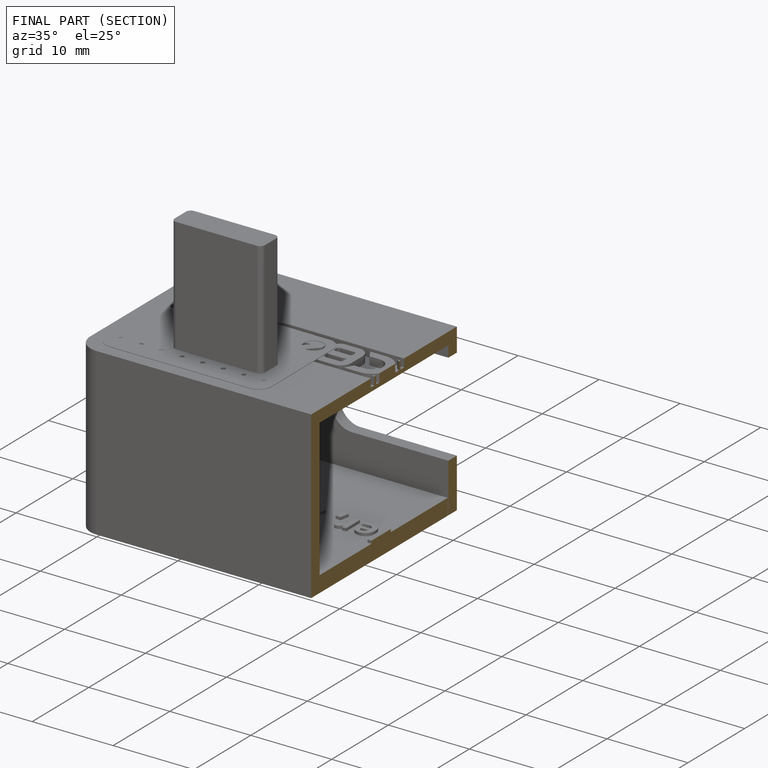
[diagram: finished part — half-section view (interior)]
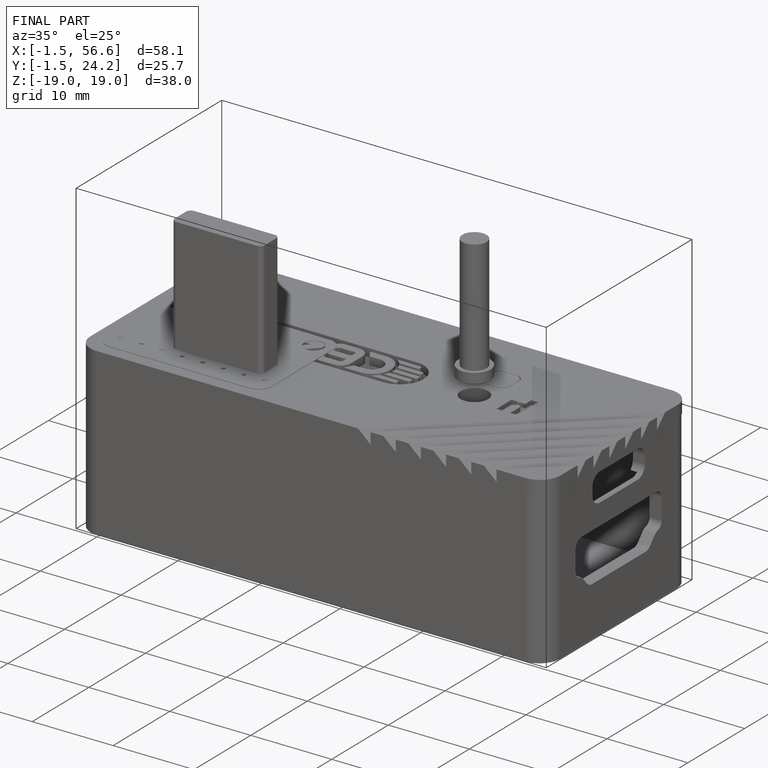
[diagram: finished part — iso view with bounding-box wireframe]
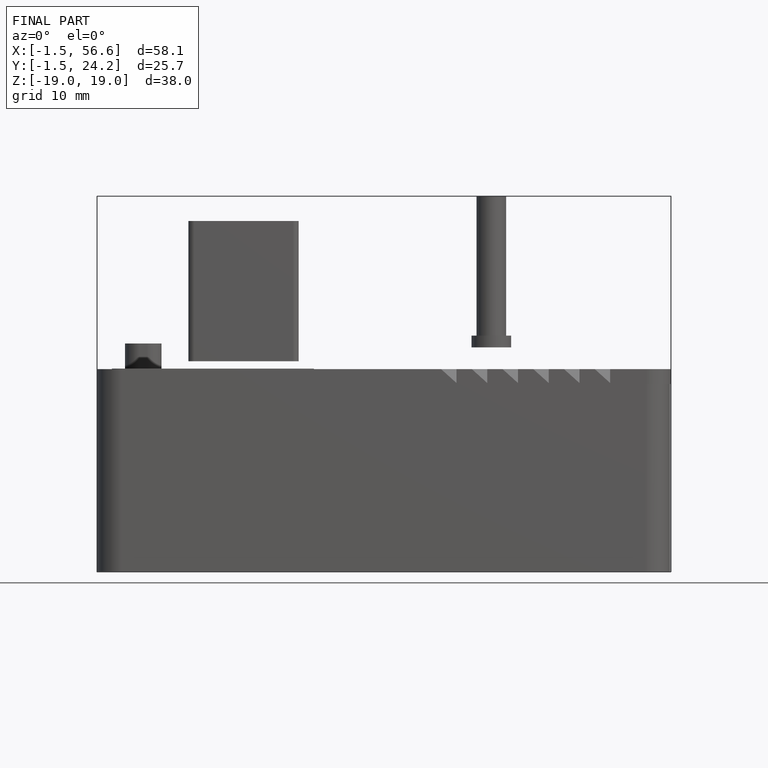
[diagram: finished part — front view with bounding-box wireframe]
